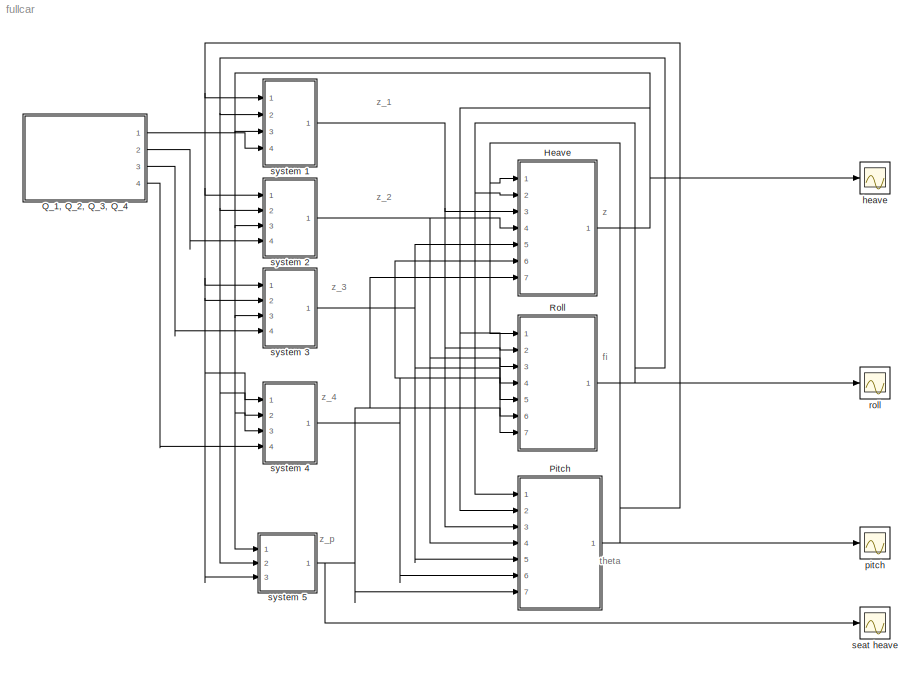
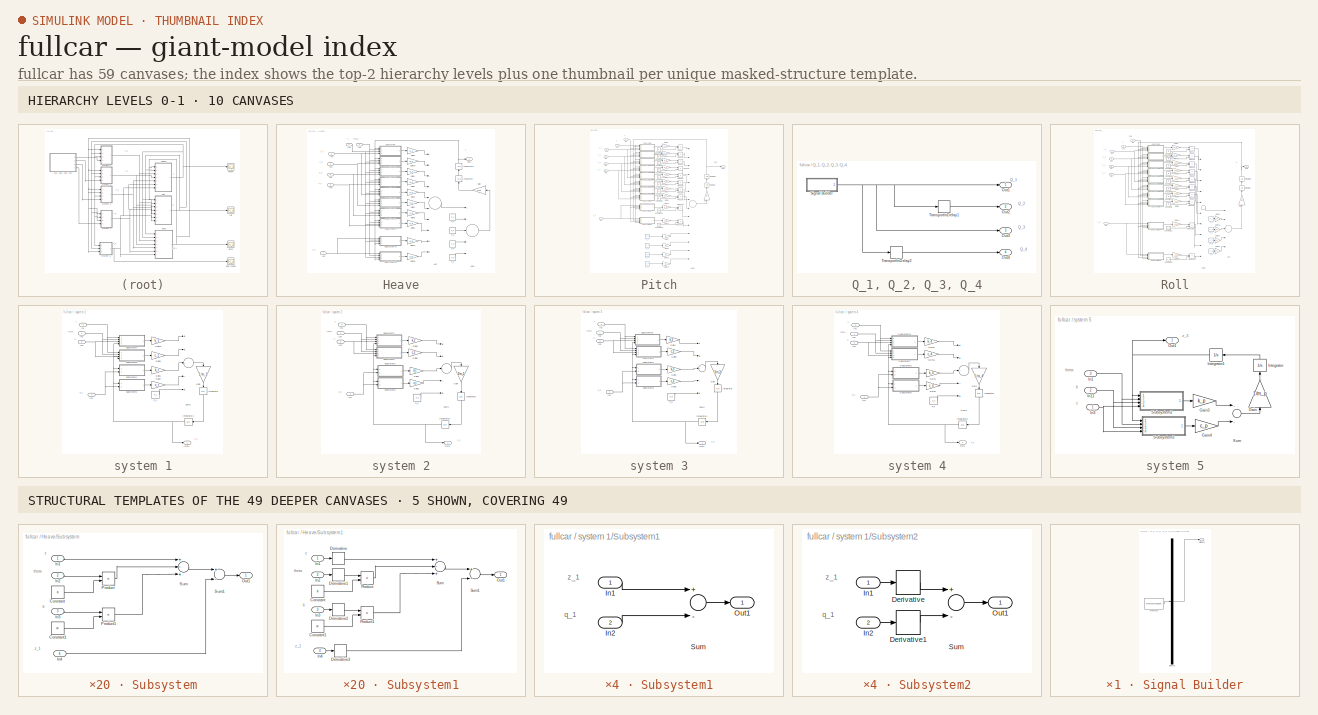
[diagram: thumbnail index - top-2 hierarchy levels (10 canvases) + 5 structural-template representatives of the remaining 49 canvases]
MODEL fullcar
KIND model
BLOCK [SubSystem] Heave
  Ports = [7, 1]
  RequestExecContextInheritance = off
  SID = 3351
BLOCK [Sum] Heave/Add
  InputSameDT = off
  Inputs = --------++
  OutDataTypeStr = Inherit: Inherit via internal rule
  Ports = [10, 1]
  SID = 5833
  SaturateOnIntegerOverflow = off
BLOCK [Sum] Heave/Add1
  InputSameDT = off
  Inputs = +----
  OutDataTypeStr = Inherit: Inherit via internal rule
  Ports = [5, 1]
  SID = 5838
  SaturateOnIntegerOverflow = off
BLOCK [Constant] Heave/F_1
  SID = 5834
  Value = F_1
BLOCK [Constant] Heave/F_2
  SID = 5835
  Value = F_2
BLOCK [Constant] Heave/F_3
  SID = 5836
  Value = F_3
BLOCK [Constant] Heave/F_4
  SID = 5837
  Value = F_4
BLOCK [Gain] Heave/Gain
  Gain = 1/M
  OutDataTypeStr = Inherit: Inherit via internal rule
  ParamDataTypeStr = Inherit: Inherit via internal rule
  SID = 3362
  SaturateOnIntegerOverflow = off
BLOCK [Gain] Heave/Gain1
  Gain = k_3
  OutDataTypeStr = Inherit: Inherit via internal rule
  ParamDataTypeStr = Inherit: Inherit via internal rule
  SID = 3363
  SaturateOnIntegerOverflow = off
BLOCK [Gain] Heave/Gain10
  Gain = k_2
  OutDataTypeStr = Inherit: Inherit via internal rule
  ParamDataTypeStr = Inherit: Inherit via internal rule
  SID = 3364
  SaturateOnIntegerOverflow = off
BLOCK [Gain] Heave/Gain11
  Gain = k_p
  OutDataTypeStr = Inherit: Inherit via internal rule
  ParamDataTypeStr = Inherit: Inherit via internal rule
  SID = 3365
  SaturateOnIntegerOverflow = off
BLOCK [Gain] Heave/Gain15
  Gain = c_p
  OutDataTypeStr = Inherit: Inherit via internal rule
  ParamDataTypeStr = Inherit: Inherit via internal rule
  SID = 3369
  SaturateOnIntegerOverflow = off
BLOCK [Gain] Heave/Gain2
  Gain = k_4
  OutDataTypeStr = Inherit: Inherit via internal rule
  ParamDataTypeStr = Inherit: Inherit via internal rule
  SID = 3371
  SaturateOnIntegerOverflow = off
BLOCK [Gain] Heave/Gain3
  Gain = c_1
  OutDataTypeStr = Inherit: Inherit via internal rule
  ParamDataTypeStr = Inherit: Inherit via internal rule
  SID = 3372
  SaturateOnIntegerOverflow = off
BLOCK [Gain] Heave/Gain4
  Gain = c_2
  OutDataTypeStr = Inherit: Inherit via internal rule
  ParamDataTypeStr = Inherit: Inherit via internal rule
  SID = 3373
  SaturateOnIntegerOverflow = off
BLOCK [Gain] Heave/Gain5
  Gain = c_3
  OutDataTypeStr = Inherit: Inherit via internal rule
  ParamDataTypeStr = Inherit: Inherit via internal rule
  SID = 3374
  SaturateOnIntegerOverflow = off
BLOCK [Gain] Heave/Gain6
  Gain = c_4
  OutDataTypeStr = Inherit: Inherit via internal rule
  ParamDataTypeStr = Inherit: Inherit via internal rule
  SID = 3375
  SaturateOnIntegerOverflow = off
BLOCK [Gain] Heave/Gain9
  Gain = k_1
  OutDataTypeStr = Inherit: Inherit via internal rule
  ParamDataTypeStr = Inherit: Inherit via internal rule
  SID = 3378
  SaturateOnIntegerOverflow = off
BLOCK [Inport] Heave/In1
  IconDisplay = Port number
  Port = 5
  SID = 3356
BLOCK [Inport] Heave/In2
  IconDisplay = Port number
  SID = 3352
BLOCK [Inport] Heave/In3
  IconDisplay = Port number
  Port = 2
  SID = 3353
BLOCK [Inport] Heave/In4
  IconDisplay = Port number
  Port = 3
  SID = 3354
BLOCK [Inport] Heave/In5
  IconDisplay = Port number
  Port = 6
  SID = 3357
BLOCK [Inport] Heave/In8
  IconDisplay = Port number
  Port = 4
  SID = 3355
BLOCK [Inport] Heave/In9
  IconDisplay = Port number
  Port = 7
  SID = 3360
BLOCK [Integrator] Heave/Integrator
  Ports = [1, 1]
  SID = 3379
BLOCK [Integrator] Heave/Integrator1
  Ports = [1, 1]
  SID = 3380
BLOCK [Outport] Heave/Out1
  IconDisplay = Port number
  SID = 3608
BLOCK [SubSystem] Heave/Subsystem
  Ports = [4, 1]
  RequestExecContextInheritance = off
  SID = 3397
BLOCK [Constant] Heave/Subsystem/Constant
  SID = 3402
  Value = a
BLOCK [Constant] Heave/Subsystem/Constant1
  SID = 3403
  Value = w
BLOCK [Inport] Heave/Subsystem/In1
  IconDisplay = Port number
  SID = 3398
BLOCK [Inport] Heave/Subsystem/In2
  IconDisplay = Port number
  Port = 2
  SID = 3399
BLOCK [Inport] Heave/Subsystem/In3
  IconDisplay = Port number
  Port = 3
  SID = 3400
BLOCK [Inport] Heave/Subsystem/In4
  IconDisplay = Port number
  Port = 4
  SID = 3401
BLOCK [Outport] Heave/Subsystem/Out1
  IconDisplay = Port number
  SID = 3408
BLOCK [Product] Heave/Subsystem/Product
  InputSameDT = off
  OutDataTypeStr = Inherit: Inherit via internal rule
  Ports = [2, 1]
  SID = 3404
  SaturateOnIntegerOverflow = off
BLOCK [Product] Heave/Subsystem/Product1
  InputSameDT = off
  OutDataTypeStr = Inherit: Inherit via internal rule
  Ports = [2, 1]
  SID = 3405
  SaturateOnIntegerOverflow = off
BLOCK [Sum] Heave/Subsystem/Sum
  InputSameDT = off
  Inputs = +-+
  OutDataTypeStr = Inherit: Inherit via internal rule
  Ports = [3, 1]
  SID = 3406
  SaturateOnIntegerOverflow = off
BLOCK [Sum] Heave/Subsystem/Sum1
  InputSameDT = off
  Inputs = +-
  OutDataTypeStr = Inherit: Inherit via internal rule
  Ports = [2, 1]
  SID = 3407
  SaturateOnIntegerOverflow = off
BLOCK [SubSystem] Heave/Subsystem1
  Ports = [4, 1]
  RequestExecContextInheritance = off
  SID = 4198
BLOCK [Constant] Heave/Subsystem1/Constant
  SID = 4203
  Value = a
BLOCK [Constant] Heave/Subsystem1/Constant1
  SID = 4204
  Value = w
BLOCK [Derivative] Heave/Subsystem1/Derivative
  SID = 4246
BLOCK [Derivative] Heave/Subsystem1/Derivative1
  SID = 4247
BLOCK [Derivative] Heave/Subsystem1/Derivative2
  SID = 4248
BLOCK [Derivative] Heave/Subsystem1/Derivative3
  SID = 4249
BLOCK [Inport] Heave/Subsystem1/In1
  IconDisplay = Port number
  SID = 4199
BLOCK [Inport] Heave/Subsystem1/In2
  IconDisplay = Port number
  Port = 2
  SID = 4200
BLOCK [Inport] Heave/Subsystem1/In3
  IconDisplay = Port number
  Port = 3
  SID = 4201
BLOCK [Inport] Heave/Subsystem1/In4
  IconDisplay = Port number
  Port = 4
  SID = 4202
BLOCK [Outport] Heave/Subsystem1/Out1
  IconDisplay = Port number
  SID = 4209
BLOCK [Product] Heave/Subsystem1/Product
  InputSameDT = off
  OutDataTypeStr = Inherit: Inherit via internal rule
  Ports = [2, 1]
  SID = 4205
  SaturateOnIntegerOverflow = off
BLOCK [Product] Heave/Subsystem1/Product1
  InputSameDT = off
  OutDataTypeStr = Inherit: Inherit via internal rule
  Ports = [2, 1]
  SID = 4206
  SaturateOnIntegerOverflow = off
BLOCK [Sum] Heave/Subsystem1/Sum
  InputSameDT = off
  Inputs = +-+
  OutDataTypeStr = Inherit: Inherit via internal rule
  Ports = [3, 1]
  SID = 4207
  SaturateOnIntegerOverflow = off
BLOCK [Sum] Heave/Subsystem1/Sum1
  InputSameDT = off
  Inputs = +-
  OutDataTypeStr = Inherit: Inherit via internal rule
  Ports = [2, 1]
  SID = 4208
  SaturateOnIntegerOverflow = off
BLOCK [SubSystem] Heave/Subsystem10
  Ports = [4, 1]
  RequestExecContextInheritance = off
  SID = 4274
BLOCK [Constant] Heave/Subsystem10/Constant
  SID = 4279
  Value = x_p
BLOCK [Constant] Heave/Subsystem10/Constant1
  SID = 4280
  Value = y_p
BLOCK [Derivative] Heave/Subsystem10/Derivative
  SID = 4318
BLOCK [Derivative] Heave/Subsystem10/Derivative1
  SID = 4319
BLOCK [Derivative] Heave/Subsystem10/Derivative2
  SID = 4320
BLOCK [Derivative] Heave/Subsystem10/Derivative3
  SID = 4321
BLOCK [Inport] Heave/Subsystem10/In1
  IconDisplay = Port number
  SID = 4275
BLOCK [Inport] Heave/Subsystem10/In2
  IconDisplay = Port number
  Port = 2
  SID = 4276
BLOCK [Inport] Heave/Subsystem10/In3
  IconDisplay = Port number
  Port = 3
  SID = 4277
BLOCK [Inport] Heave/Subsystem10/In4
  IconDisplay = Port number
  Port = 4
  SID = 4278
BLOCK [Outport] Heave/Subsystem10/Out1
  IconDisplay = Port number
  SID = 4285
BLOCK [Product] Heave/Subsystem10/Product
  InputSameDT = off
  OutDataTypeStr = Inherit: Inherit via internal rule
  Ports = [2, 1]
  SID = 4281
  SaturateOnIntegerOverflow = off
BLOCK [Product] Heave/Subsystem10/Product1
  InputSameDT = off
  OutDataTypeStr = Inherit: Inherit via internal rule
  Ports = [2, 1]
  SID = 4282
  SaturateOnIntegerOverflow = off
BLOCK [Sum] Heave/Subsystem10/Sum1
  InputSameDT = off
  Inputs = -+
  OutDataTypeStr = Inherit: Inherit via internal rule
  Ports = [2, 1]
  SID = 4283
  SaturateOnIntegerOverflow = off
BLOCK [Sum] Heave/Subsystem10/Sum2
  InputSameDT = off
  Inputs = +++
  OutDataTypeStr = Inherit: Inherit via internal rule
  Ports = [3, 1]
  SID = 4284
  SaturateOnIntegerOverflow = off
BLOCK [SubSystem] Heave/Subsystem14
  Ports = [4, 1]
  RequestExecContextInheritance = off
  SID = 3469
BLOCK [Constant] Heave/Subsystem14/Constant
  SID = 3474
  Value = x_p
BLOCK [Constant] Heave/Subsystem14/Constant1
  SID = 3475
  Value = y_p
BLOCK [Inport] Heave/Subsystem14/In1
  IconDisplay = Port number
  SID = 3470
BLOCK [Inport] Heave/Subsystem14/In2
  IconDisplay = Port number
  Port = 2
  SID = 3471
BLOCK [Inport] Heave/Subsystem14/In3
  IconDisplay = Port number
  Port = 3
  SID = 3472
BLOCK [Inport] Heave/Subsystem14/In4
  IconDisplay = Port number
  Port = 4
  SID = 3473
BLOCK [Outport] Heave/Subsystem14/Out1
  IconDisplay = Port number
  SID = 3480
BLOCK [Product] Heave/Subsystem14/Product
  InputSameDT = off
  OutDataTypeStr = Inherit: Inherit via internal rule
  Ports = [2, 1]
  SID = 3476
  SaturateOnIntegerOverflow = off
BLOCK [Product] Heave/Subsystem14/Product1
  InputSameDT = off
  OutDataTypeStr = Inherit: Inherit via internal rule
  Ports = [2, 1]
  SID = 3477
  SaturateOnIntegerOverflow = off
BLOCK [Sum] Heave/Subsystem14/Sum1
  InputSameDT = off
  Inputs = -+
  OutDataTypeStr = Inherit: Inherit via internal rule
  Ports = [2, 1]
  SID = 3478
  SaturateOnIntegerOverflow = off
BLOCK [Sum] Heave/Subsystem14/Sum2
  InputSameDT = off
  Inputs = +++
  OutDataTypeStr = Inherit: Inherit via internal rule
  Ports = [3, 1]
  SID = 3479
  SaturateOnIntegerOverflow = off
BLOCK [SubSystem] Heave/Subsystem2
  Ports = [4, 1]
  RequestExecContextInheritance = off
  SID = 4210
BLOCK [Constant] Heave/Subsystem2/Constant
  SID = 4215
  Value = b
BLOCK [Constant] Heave/Subsystem2/Constant1
  SID = 4216
  Value = w
BLOCK [Derivative] Heave/Subsystem2/Derivative
  SID = 4250
BLOCK [Derivative] Heave/Subsystem2/Derivative1
  SID = 4251
BLOCK [Derivative] Heave/Subsystem2/Derivative2
  SID = 4252
BLOCK [Derivative] Heave/Subsystem2/Derivative3
  SID = 4253
BLOCK [Inport] Heave/Subsystem2/In1
  IconDisplay = Port number
  SID = 4211
BLOCK [Inport] Heave/Subsystem2/In2
  IconDisplay = Port number
  Port = 2
  SID = 4212
BLOCK [Inport] Heave/Subsystem2/In3
  IconDisplay = Port number
  Port = 3
  SID = 4213
BLOCK [Inport] Heave/Subsystem2/In4
  IconDisplay = Port number
  Port = 4
  SID = 4214
BLOCK [Outport] Heave/Subsystem2/Out1
  IconDisplay = Port number
  SID = 4221
BLOCK [Product] Heave/Subsystem2/Product
  InputSameDT = off
  OutDataTypeStr = Inherit: Inherit via internal rule
  Ports = [2, 1]
  SID = 4217
  SaturateOnIntegerOverflow = off
BLOCK [Product] Heave/Subsystem2/Product1
  InputSameDT = off
  OutDataTypeStr = Inherit: Inherit via internal rule
  Ports = [2, 1]
  SID = 4218
  SaturateOnIntegerOverflow = off
BLOCK [Sum] Heave/Subsystem2/Sum
  InputSameDT = off
  Inputs = +++
  OutDataTypeStr = Inherit: Inherit via internal rule
  Ports = [3, 1]
  SID = 4219
  SaturateOnIntegerOverflow = off
BLOCK [Sum] Heave/Subsystem2/Sum1
  InputSameDT = off
  Inputs = +-
  OutDataTypeStr = Inherit: Inherit via internal rule
  Ports = [2, 1]
  SID = 4220
  SaturateOnIntegerOverflow = off
BLOCK [SubSystem] Heave/Subsystem3
  Ports = [4, 1]
  RequestExecContextInheritance = off
  SID = 4222
BLOCK [Constant] Heave/Subsystem3/Constant
  SID = 4227
  Value = a
BLOCK [Constant] Heave/Subsystem3/Constant1
  SID = 4228
  Value = w
BLOCK [Derivative] Heave/Subsystem3/Derivative
  SID = 4254
BLOCK [Derivative] Heave/Subsystem3/Derivative1
  SID = 4255
BLOCK [Derivative] Heave/Subsystem3/Derivative2
  SID = 4256
BLOCK [Derivative] Heave/Subsystem3/Derivative3
  SID = 4257
BLOCK [Inport] Heave/Subsystem3/In1
  IconDisplay = Port number
  SID = 4223
BLOCK [Inport] Heave/Subsystem3/In2
  IconDisplay = Port number
  Port = 2
  SID = 4224
BLOCK [Inport] Heave/Subsystem3/In3
  IconDisplay = Port number
  Port = 3
  SID = 4225
BLOCK [Inport] Heave/Subsystem3/In4
  IconDisplay = Port number
  Port = 4
  SID = 4226
BLOCK [Outport] Heave/Subsystem3/Out1
  IconDisplay = Port number
  SID = 4233
BLOCK [Product] Heave/Subsystem3/Product
  InputSameDT = off
  OutDataTypeStr = Inherit: Inherit via internal rule
  Ports = [2, 1]
  SID = 4229
  SaturateOnIntegerOverflow = off
BLOCK [Product] Heave/Subsystem3/Product1
  InputSameDT = off
  OutDataTypeStr = Inherit: Inherit via internal rule
  Ports = [2, 1]
  SID = 4230
  SaturateOnIntegerOverflow = off
BLOCK [Sum] Heave/Subsystem3/Sum
  InputSameDT = off
  Inputs = +--
  OutDataTypeStr = Inherit: Inherit via internal rule
  Ports = [3, 1]
  SID = 4231
  SaturateOnIntegerOverflow = off
BLOCK [Sum] Heave/Subsystem3/Sum1
  InputSameDT = off
  Inputs = +-
  OutDataTypeStr = Inherit: Inherit via internal rule
  Ports = [2, 1]
  SID = 4232
  SaturateOnIntegerOverflow = off
BLOCK [SubSystem] Heave/Subsystem4
  Ports = [4, 1]
  RequestExecContextInheritance = off
  SID = 3541
BLOCK [Constant] Heave/Subsystem4/Constant
  SID = 3546
  Value = b
BLOCK [Constant] Heave/Subsystem4/Constant1
  SID = 3547
  Value = w
BLOCK [Inport] Heave/Subsystem4/In1
  IconDisplay = Port number
  SID = 3542
BLOCK [Inport] Heave/Subsystem4/In2
  IconDisplay = Port number
  Port = 2
  SID = 3543
BLOCK [Inport] Heave/Subsystem4/In3
  IconDisplay = Port number
  Port = 3
  SID = 3544
BLOCK [Inport] Heave/Subsystem4/In4
  IconDisplay = Port number
  Port = 4
  SID = 3545
BLOCK [Outport] Heave/Subsystem4/Out1
  IconDisplay = Port number
  SID = 3552
BLOCK [Product] Heave/Subsystem4/Product
  InputSameDT = off
  OutDataTypeStr = Inherit: Inherit via internal rule
  Ports = [2, 1]
  SID = 3548
  SaturateOnIntegerOverflow = off
BLOCK [Product] Heave/Subsystem4/Product1
  InputSameDT = off
  OutDataTypeStr = Inherit: Inherit via internal rule
  Ports = [2, 1]
  SID = 3549
  SaturateOnIntegerOverflow = off
BLOCK [Sum] Heave/Subsystem4/Sum
  InputSameDT = off
  Inputs = +++
  OutDataTypeStr = Inherit: Inherit via internal rule
  Ports = [3, 1]
  SID = 3550
  SaturateOnIntegerOverflow = off
BLOCK [Sum] Heave/Subsystem4/Sum1
  InputSameDT = off
  Inputs = +-
  OutDataTypeStr = Inherit: Inherit via internal rule
  Ports = [2, 1]
  SID = 3551
  SaturateOnIntegerOverflow = off
BLOCK [SubSystem] Heave/Subsystem5
  Ports = [4, 1]
  RequestExecContextInheritance = off
  SID = 4234
BLOCK [Constant] Heave/Subsystem5/Constant
  SID = 4239
  Value = b
BLOCK [Constant] Heave/Subsystem5/Constant1
  SID = 4240
  Value = w
BLOCK [Derivative] Heave/Subsystem5/Derivative
  SID = 4258
BLOCK [Derivative] Heave/Subsystem5/Derivative1
  SID = 4259
BLOCK [Derivative] Heave/Subsystem5/Derivative2
  SID = 4260
BLOCK [Derivative] Heave/Subsystem5/Derivative3
  SID = 4261
BLOCK [Inport] Heave/Subsystem5/In1
  IconDisplay = Port number
  SID = 4235
BLOCK [Inport] Heave/Subsystem5/In2
  IconDisplay = Port number
  Port = 2
  SID = 4236
BLOCK [Inport] Heave/Subsystem5/In3
  IconDisplay = Port number
  Port = 3
  SID = 4237
BLOCK [Inport] Heave/Subsystem5/In4
  IconDisplay = Port number
  Port = 4
  SID = 4238
BLOCK [Outport] Heave/Subsystem5/Out1
  IconDisplay = Port number
  SID = 4245
BLOCK [Product] Heave/Subsystem5/Product
  InputSameDT = off
  OutDataTypeStr = Inherit: Inherit via internal rule
  Ports = [2, 1]
  SID = 4241
  SaturateOnIntegerOverflow = off
BLOCK [Product] Heave/Subsystem5/Product1
  InputSameDT = off
  OutDataTypeStr = Inherit: Inherit via internal rule
  Ports = [2, 1]
  SID = 4242
  SaturateOnIntegerOverflow = off
BLOCK [Sum] Heave/Subsystem5/Sum
  InputSameDT = off
  Inputs = ++-
  OutDataTypeStr = Inherit: Inherit via internal rule
  Ports = [3, 1]
  SID = 4243
  SaturateOnIntegerOverflow = off
BLOCK [Sum] Heave/Subsystem5/Sum1
  InputSameDT = off
  Inputs = +-
  OutDataTypeStr = Inherit: Inherit via internal rule
  Ports = [2, 1]
  SID = 4244
  SaturateOnIntegerOverflow = off
BLOCK [SubSystem] Heave/Subsystem6
  Ports = [4, 1]
  RequestExecContextInheritance = off
  SID = 3553
BLOCK [Constant] Heave/Subsystem6/Constant
  SID = 3558
  Value = a
BLOCK [Constant] Heave/Subsystem6/Constant1
  SID = 3559
  Value = w
BLOCK [Inport] Heave/Subsystem6/In1
  IconDisplay = Port number
  SID = 3554
BLOCK [Inport] Heave/Subsystem6/In2
  IconDisplay = Port number
  Port = 2
  SID = 3555
BLOCK [Inport] Heave/Subsystem6/In3
  IconDisplay = Port number
  Port = 3
  SID = 3556
BLOCK [Inport] Heave/Subsystem6/In4
  IconDisplay = Port number
  Port = 4
  SID = 3557
BLOCK [Outport] Heave/Subsystem6/Out1
  IconDisplay = Port number
  SID = 3564
BLOCK [Product] Heave/Subsystem6/Product
  InputSameDT = off
  OutDataTypeStr = Inherit: Inherit via internal rule
  Ports = [2, 1]
  SID = 3560
  SaturateOnIntegerOverflow = off
BLOCK [Product] Heave/Subsystem6/Product1
  InputSameDT = off
  OutDataTypeStr = Inherit: Inherit via internal rule
  Ports = [2, 1]
  SID = 3561
  SaturateOnIntegerOverflow = off
BLOCK [Sum] Heave/Subsystem6/Sum
  InputSameDT = off
  Inputs = +--
  OutDataTypeStr = Inherit: Inherit via internal rule
  Ports = [3, 1]
  SID = 3562
  SaturateOnIntegerOverflow = off
BLOCK [Sum] Heave/Subsystem6/Sum1
  InputSameDT = off
  Inputs = +-
  OutDataTypeStr = Inherit: Inherit via internal rule
  Ports = [2, 1]
  SID = 3563
  SaturateOnIntegerOverflow = off
BLOCK [SubSystem] Heave/Subsystem9
  Ports = [4, 1]
  RequestExecContextInheritance = off
  SID = 3593
BLOCK [Constant] Heave/Subsystem9/Constant
  SID = 3598
  Value = b
BLOCK [Constant] Heave/Subsystem9/Constant1
  SID = 3599
  Value = w
BLOCK [Inport] Heave/Subsystem9/In1
  IconDisplay = Port number
  SID = 3594
BLOCK [Inport] Heave/Subsystem9/In2
  IconDisplay = Port number
  Port = 2
  SID = 3595
BLOCK [Inport] Heave/Subsystem9/In3
  IconDisplay = Port number
  Port = 3
  SID = 3596
BLOCK [Inport] Heave/Subsystem9/In4
  IconDisplay = Port number
  Port = 4
  SID = 3597
BLOCK [Outport] Heave/Subsystem9/Out1
  IconDisplay = Port number
  SID = 3604
BLOCK [Product] Heave/Subsystem9/Product
  InputSameDT = off
  OutDataTypeStr = Inherit: Inherit via internal rule
  Ports = [2, 1]
  SID = 3600
  SaturateOnIntegerOverflow = off
BLOCK [Product] Heave/Subsystem9/Product1
  InputSameDT = off
  OutDataTypeStr = Inherit: Inherit via internal rule
  Ports = [2, 1]
  SID = 3601
  SaturateOnIntegerOverflow = off
BLOCK [Sum] Heave/Subsystem9/Sum
  InputSameDT = off
  Inputs = ++-
  OutDataTypeStr = Inherit: Inherit via internal rule
  Ports = [3, 1]
  SID = 3602
  SaturateOnIntegerOverflow = off
BLOCK [Sum] Heave/Subsystem9/Sum1
  InputSameDT = off
  Inputs = +-
  OutDataTypeStr = Inherit: Inherit via internal rule
  Ports = [2, 1]
  SID = 3603
  SaturateOnIntegerOverflow = off
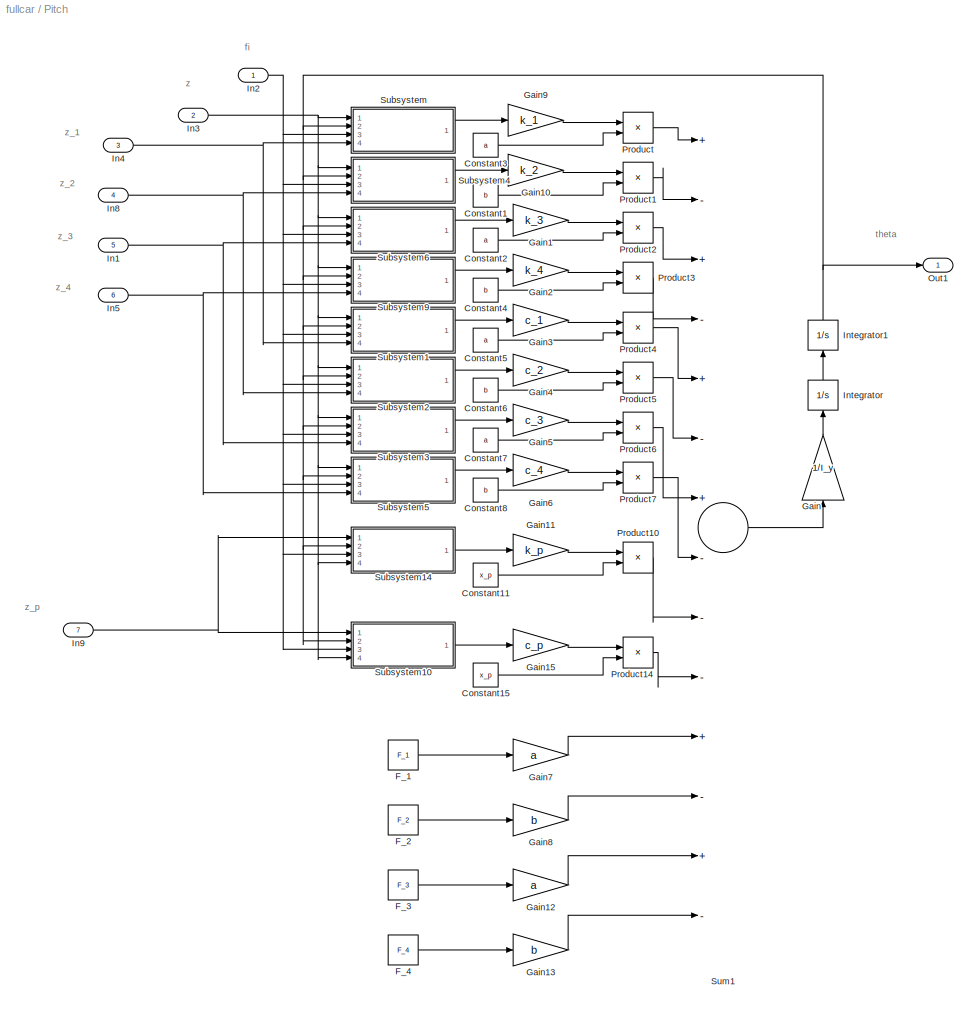
BLOCK [SubSystem] Pitch
  Ports = [7, 1]
  RequestExecContextInheritance = off
  SID = 4616
BLOCK [Constant] Pitch/Constant1
  SID = 4627
  Value = b
BLOCK [Constant] Pitch/Constant11
  SID = 4629
  Value = x_p
BLOCK [Constant] Pitch/Constant15
  SID = 4633
  Value = x_p
BLOCK [Constant] Pitch/Constant2
  SID = 4635
  Value = a
BLOCK [Constant] Pitch/Constant3
  SID = 4636
  Value = a
BLOCK [Constant] Pitch/Constant4
  SID = 4637
  Value = b
BLOCK [Constant] Pitch/Constant5
  SID = 4638
  Value = a
BLOCK [Constant] Pitch/Constant6
  SID = 4639
  Value = b
BLOCK [Constant] Pitch/Constant7
  SID = 4640
  Value = a
BLOCK [Constant] Pitch/Constant8
  SID = 4641
  Value = b
BLOCK [Constant] Pitch/F_1
  SID = 5845
  Value = F_1
BLOCK [Constant] Pitch/F_2
  SID = 5846
  Value = F_2
BLOCK [Constant] Pitch/F_3
  SID = 5847
  Value = F_3
BLOCK [Constant] Pitch/F_4
  SID = 5848
  Value = F_4
BLOCK [Gain] Pitch/Gain
  Gain = 1/I_y
  OutDataTypeStr = Inherit: Inherit via internal rule
  ParamDataTypeStr = Inherit: Inherit via internal rule
  SID = 4643
  SaturateOnIntegerOverflow = off
BLOCK [Gain] Pitch/Gain1
  Gain = k_3
  OutDataTypeStr = Inherit: Inherit via internal rule
  ParamDataTypeStr = Inherit: Inherit via internal rule
  SID = 4644
  SaturateOnIntegerOverflow = off
BLOCK [Gain] Pitch/Gain10
  Gain = k_2
  OutDataTypeStr = Inherit: Inherit via internal rule
  ParamDataTypeStr = Inherit: Inherit via internal rule
  SID = 4645
  SaturateOnIntegerOverflow = off
BLOCK [Gain] Pitch/Gain11
  Gain = k_p
  OutDataTypeStr = Inherit: Inherit via internal rule
  ParamDataTypeStr = Inherit: Inherit via internal rule
  SID = 4646
  SaturateOnIntegerOverflow = off
BLOCK [Gain] Pitch/Gain12
  Gain = a
  OutDataTypeStr = Inherit: Inherit via internal rule
  ParamDataTypeStr = Inherit: Inherit via internal rule
  SID = 5851
  SaturateOnIntegerOverflow = off
BLOCK [Gain] Pitch/Gain13
  Gain = b
  OutDataTypeStr = Inherit: Inherit via internal rule
  ParamDataTypeStr = Inherit: Inherit via internal rule
  SID = 5852
  SaturateOnIntegerOverflow = off
BLOCK [Gain] Pitch/Gain15
  Gain = c_p
  OutDataTypeStr = Inherit: Inherit via internal rule
  ParamDataTypeStr = Inherit: Inherit via internal rule
  SID = 4650
  SaturateOnIntegerOverflow = off
BLOCK [Gain] Pitch/Gain2
  Gain = k_4
  OutDataTypeStr = Inherit: Inherit via internal rule
  ParamDataTypeStr = Inherit: Inherit via internal rule
  SID = 4652
  SaturateOnIntegerOverflow = off
BLOCK [Gain] Pitch/Gain3
  Gain = c_1
  OutDataTypeStr = Inherit: Inherit via internal rule
  ParamDataTypeStr = Inherit: Inherit via internal rule
  SID = 4653
  SaturateOnIntegerOverflow = off
BLOCK [Gain] Pitch/Gain4
  Gain = c_2
  OutDataTypeStr = Inherit: Inherit via internal rule
  ParamDataTypeStr = Inherit: Inherit via internal rule
  SID = 4654
  SaturateOnIntegerOverflow = off
BLOCK [Gain] Pitch/Gain5
  Gain = c_3
  OutDataTypeStr = Inherit: Inherit via internal rule
  ParamDataTypeStr = Inherit: Inherit via internal rule
  SID = 4655
  SaturateOnIntegerOverflow = off
BLOCK [Gain] Pitch/Gain6
  Gain = c_4
  OutDataTypeStr = Inherit: Inherit via internal rule
  ParamDataTypeStr = Inherit: Inherit via internal rule
  SID = 4656
  SaturateOnIntegerOverflow = off
BLOCK [Gain] Pitch/Gain7
  Gain = a
  OutDataTypeStr = Inherit: Inherit via internal rule
  ParamDataTypeStr = Inherit: Inherit via internal rule
  SID = 5849
  SaturateOnIntegerOverflow = off
BLOCK [Gain] Pitch/Gain8
  Gain = b
  OutDataTypeStr = Inherit: Inherit via internal rule
  ParamDataTypeStr = Inherit: Inherit via internal rule
  SID = 5850
  SaturateOnIntegerOverflow = off
BLOCK [Gain] Pitch/Gain9
  Gain = k_1
  OutDataTypeStr = Inherit: Inherit via internal rule
  ParamDataTypeStr = Inherit: Inherit via internal rule
  SID = 4659
  SaturateOnIntegerOverflow = off
BLOCK [Inport] Pitch/In1
  IconDisplay = Port number
  Port = 5
  SID = 4621
BLOCK [Inport] Pitch/In2
  IconDisplay = Port number
  SID = 4617
BLOCK [Inport] Pitch/In3
  IconDisplay = Port number
  Port = 2
  SID = 4618
BLOCK [Inport] Pitch/In4
  IconDisplay = Port number
  Port = 3
  SID = 4619
BLOCK [Inport] Pitch/In5
  IconDisplay = Port number
  Port = 6
  SID = 4622
BLOCK [Inport] Pitch/In8
  IconDisplay = Port number
  Port = 4
  SID = 4620
BLOCK [Inport] Pitch/In9
  IconDisplay = Port number
  Port = 7
  SID = 4625
BLOCK [Integrator] Pitch/Integrator
  Ports = [1, 1]
  SID = 4660
BLOCK [Integrator] Pitch/Integrator1
  Ports = [1, 1]
  SID = 4661
BLOCK [Outport] Pitch/Out1
  IconDisplay = Port number
  SID = 4903
BLOCK [Product] Pitch/Product
  InputSameDT = off
  OutDataTypeStr = Inherit: Inherit via internal rule
  Ports = [2, 1]
  SID = 4662
  SaturateOnIntegerOverflow = off
BLOCK [Product] Pitch/Product1
  InputSameDT = off
  OutDataTypeStr = Inherit: Inherit via internal rule
  Ports = [2, 1]
  SID = 4663
  SaturateOnIntegerOverflow = off
BLOCK [Product] Pitch/Product10
  InputSameDT = off
  OutDataTypeStr = Inherit: Inherit via internal rule
  Ports = [2, 1]
  SID = 4664
  SaturateOnIntegerOverflow = off
BLOCK [Product] Pitch/Product14
  InputSameDT = off
  OutDataTypeStr = Inherit: Inherit via internal rule
  Ports = [2, 1]
  SID = 4668
  SaturateOnIntegerOverflow = off
BLOCK [Product] Pitch/Product2
  InputSameDT = off
  OutDataTypeStr = Inherit: Inherit via internal rule
  Ports = [2, 1]
  SID = 4670
  SaturateOnIntegerOverflow = off
BLOCK [Product] Pitch/Product3
  InputSameDT = off
  OutDataTypeStr = Inherit: Inherit via internal rule
  Ports = [2, 1]
  SID = 4671
  SaturateOnIntegerOverflow = off
BLOCK [Product] Pitch/Product4
  InputSameDT = off
  OutDataTypeStr = Inherit: Inherit via internal rule
  Ports = [2, 1]
  SID = 4672
  SaturateOnIntegerOverflow = off
BLOCK [Product] Pitch/Product5
  InputSameDT = off
  OutDataTypeStr = Inherit: Inherit via internal rule
  Ports = [2, 1]
  SID = 4673
  SaturateOnIntegerOverflow = off
BLOCK [Product] Pitch/Product6
  InputSameDT = off
  OutDataTypeStr = Inherit: Inherit via internal rule
  Ports = [2, 1]
  SID = 4674
  SaturateOnIntegerOverflow = off
BLOCK [Product] Pitch/Product7
  InputSameDT = off
  OutDataTypeStr = Inherit: Inherit via internal rule
  Ports = [2, 1]
  SID = 4675
  SaturateOnIntegerOverflow = off
BLOCK [SubSystem] Pitch/Subsystem
  Ports = [4, 1]
  RequestExecContextInheritance = off
  SID = 4678
BLOCK [Constant] Pitch/Subsystem/Constant
  SID = 4683
  Value = a
BLOCK [Constant] Pitch/Subsystem/Constant1
  SID = 4684
  Value = w
BLOCK [Inport] Pitch/Subsystem/In1
  IconDisplay = Port number
  SID = 4679
BLOCK [Inport] Pitch/Subsystem/In2
  IconDisplay = Port number
  Port = 2
  SID = 4680
BLOCK [Inport] Pitch/Subsystem/In3
  IconDisplay = Port number
  Port = 3
  SID = 4681
BLOCK [Inport] Pitch/Subsystem/In4
  IconDisplay = Port number
  Port = 4
  SID = 4682
BLOCK [Outport] Pitch/Subsystem/Out1
  IconDisplay = Port number
  SID = 4689
BLOCK [Product] Pitch/Subsystem/Product
  InputSameDT = off
  OutDataTypeStr = Inherit: Inherit via internal rule
  Ports = [2, 1]
  SID = 4685
  SaturateOnIntegerOverflow = off
BLOCK [Product] Pitch/Subsystem/Product1
  InputSameDT = off
  OutDataTypeStr = Inherit: Inherit via internal rule
  Ports = [2, 1]
  SID = 4686
  SaturateOnIntegerOverflow = off
BLOCK [Sum] Pitch/Subsystem/Sum
  InputSameDT = off
  Inputs = ++-
  OutDataTypeStr = Inherit: Inherit via internal rule
  Ports = [3, 1]
  SID = 4687
  SaturateOnIntegerOverflow = off
BLOCK [Sum] Pitch/Subsystem/Sum1
  InputSameDT = off
  Inputs = +-
  OutDataTypeStr = Inherit: Inherit via internal rule
  Ports = [2, 1]
  SID = 4688
  SaturateOnIntegerOverflow = off
BLOCK [SubSystem] Pitch/Subsystem1
  Ports = [4, 1]
  RequestExecContextInheritance = off
  SID = 4690
BLOCK [Constant] Pitch/Subsystem1/Constant
  SID = 4695
  Value = a
BLOCK [Constant] Pitch/Subsystem1/Constant1
  SID = 4696
  Value = w
BLOCK [Derivative] Pitch/Subsystem1/Derivative
  SID = 4697
BLOCK [Derivative] Pitch/Subsystem1/Derivative1
  SID = 4698
BLOCK [Derivative] Pitch/Subsystem1/Derivative2
  SID = 4699
BLOCK [Derivative] Pitch/Subsystem1/Derivative3
  SID = 4700
BLOCK [Inport] Pitch/Subsystem1/In1
  IconDisplay = Port number
  SID = 4691
BLOCK [Inport] Pitch/Subsystem1/In2
  IconDisplay = Port number
  Port = 2
  SID = 4692
BLOCK [Inport] Pitch/Subsystem1/In3
  IconDisplay = Port number
  Port = 3
  SID = 4693
BLOCK [Inport] Pitch/Subsystem1/In4
  IconDisplay = Port number
  Port = 4
  SID = 4694
BLOCK [Outport] Pitch/Subsystem1/Out1
  IconDisplay = Port number
  SID = 4705
BLOCK [Product] Pitch/Subsystem1/Product
  InputSameDT = off
  OutDataTypeStr = Inherit: Inherit via internal rule
  Ports = [2, 1]
  SID = 4701
  SaturateOnIntegerOverflow = off
BLOCK [Product] Pitch/Subsystem1/Product1
  InputSameDT = off
  OutDataTypeStr = Inherit: Inherit via internal rule
  Ports = [2, 1]
  SID = 4702
  SaturateOnIntegerOverflow = off
BLOCK [Sum] Pitch/Subsystem1/Sum
  InputSameDT = off
  Inputs = ++-
  OutDataTypeStr = Inherit: Inherit via internal rule
  Ports = [3, 1]
  SID = 4703
  SaturateOnIntegerOverflow = off
BLOCK [Sum] Pitch/Subsystem1/Sum1
  InputSameDT = off
  Inputs = +-
  OutDataTypeStr = Inherit: Inherit via internal rule
  Ports = [2, 1]
  SID = 4704
  SaturateOnIntegerOverflow = off
BLOCK [SubSystem] Pitch/Subsystem10
  Ports = [4, 1]
  RequestExecContextInheritance = off
  SID = 4706
BLOCK [Constant] Pitch/Subsystem10/Constant
  SID = 4711
  Value = x_p
BLOCK [Constant] Pitch/Subsystem10/Constant1
  SID = 4712
  Value = y_p
BLOCK [Derivative] Pitch/Subsystem10/Derivative
  SID = 4713
BLOCK [Derivative] Pitch/Subsystem10/Derivative1
  SID = 4714
BLOCK [Derivative] Pitch/Subsystem10/Derivative2
  SID = 4715
BLOCK [Derivative] Pitch/Subsystem10/Derivative3
  SID = 4716
BLOCK [Inport] Pitch/Subsystem10/In1
  IconDisplay = Port number
  SID = 4707
BLOCK [Inport] Pitch/Subsystem10/In2
  IconDisplay = Port number
  Port = 2
  SID = 4708
BLOCK [Inport] Pitch/Subsystem10/In3
  IconDisplay = Port number
  Port = 3
  SID = 4709
BLOCK [Inport] Pitch/Subsystem10/In4
  IconDisplay = Port number
  Port = 4
  SID = 4710
BLOCK [Outport] Pitch/Subsystem10/Out1
  IconDisplay = Port number
  SID = 4721
BLOCK [Product] Pitch/Subsystem10/Product
  InputSameDT = off
  OutDataTypeStr = Inherit: Inherit via internal rule
  Ports = [2, 1]
  SID = 4717
  SaturateOnIntegerOverflow = off
BLOCK [Product] Pitch/Subsystem10/Product1
  InputSameDT = off
  OutDataTypeStr = Inherit: Inherit via internal rule
  Ports = [2, 1]
  SID = 4718
  SaturateOnIntegerOverflow = off
BLOCK [Sum] Pitch/Subsystem10/Sum1
  InputSameDT = off
  OutDataTypeStr = Inherit: Inherit via internal rule
  Ports = [2, 1]
  SID = 4719
  SaturateOnIntegerOverflow = off
BLOCK [Sum] Pitch/Subsystem10/Sum2
  InputSameDT = off
  Inputs = ---
  OutDataTypeStr = Inherit: Inherit via internal rule
  Ports = [3, 1]
  SID = 4720
  SaturateOnIntegerOverflow = off
BLOCK [SubSystem] Pitch/Subsystem14
  Ports = [4, 1]
  RequestExecContextInheritance = off
  SID = 4766
BLOCK [Constant] Pitch/Subsystem14/Constant
  SID = 4771
  Value = x_p
BLOCK [Constant] Pitch/Subsystem14/Constant1
  SID = 4772
  Value = y_p
BLOCK [Inport] Pitch/Subsystem14/In1
  IconDisplay = Port number
  SID = 4767
BLOCK [Inport] Pitch/Subsystem14/In2
  IconDisplay = Port number
  Port = 2
  SID = 4768
BLOCK [Inport] Pitch/Subsystem14/In3
  IconDisplay = Port number
  Port = 3
  SID = 4769
BLOCK [Inport] Pitch/Subsystem14/In4
  IconDisplay = Port number
  Port = 4
  SID = 4770
BLOCK [Outport] Pitch/Subsystem14/Out1
  IconDisplay = Port number
  SID = 4777
BLOCK [Product] Pitch/Subsystem14/Product
  InputSameDT = off
  OutDataTypeStr = Inherit: Inherit via internal rule
  Ports = [2, 1]
  SID = 4773
  SaturateOnIntegerOverflow = off
BLOCK [Product] Pitch/Subsystem14/Product1
  InputSameDT = off
  OutDataTypeStr = Inherit: Inherit via internal rule
  Ports = [2, 1]
  SID = 4774
  SaturateOnIntegerOverflow = off
BLOCK [Sum] Pitch/Subsystem14/Sum1
  InputSameDT = off
  OutDataTypeStr = Inherit: Inherit via internal rule
  Ports = [2, 1]
  SID = 4775
  SaturateOnIntegerOverflow = off
BLOCK [Sum] Pitch/Subsystem14/Sum2
  InputSameDT = off
  Inputs = ---
  OutDataTypeStr = Inherit: Inherit via internal rule
  Ports = [3, 1]
  SID = 4776
  SaturateOnIntegerOverflow = off
BLOCK [SubSystem] Pitch/Subsystem2
  Ports = [4, 1]
  RequestExecContextInheritance = off
  SID = 4790
BLOCK [Constant] Pitch/Subsystem2/Constant
  SID = 4795
  Value = b
BLOCK [Constant] Pitch/Subsystem2/Constant1
  SID = 4796
  Value = w
BLOCK [Derivative] Pitch/Subsystem2/Derivative
  SID = 4797
BLOCK [Derivative] Pitch/Subsystem2/Derivative1
  SID = 4798
BLOCK [Derivative] Pitch/Subsystem2/Derivative2
  SID = 4799
BLOCK [Derivative] Pitch/Subsystem2/Derivative3
  SID = 4800
BLOCK [Inport] Pitch/Subsystem2/In1
  IconDisplay = Port number
  SID = 4791
BLOCK [Inport] Pitch/Subsystem2/In2
  IconDisplay = Port number
  Port = 2
  SID = 4792
BLOCK [Inport] Pitch/Subsystem2/In3
  IconDisplay = Port number
  Port = 3
  SID = 4793
BLOCK [Inport] Pitch/Subsystem2/In4
  IconDisplay = Port number
  Port = 4
  SID = 4794
BLOCK [Outport] Pitch/Subsystem2/Out1
  IconDisplay = Port number
  SID = 4805
BLOCK [Product] Pitch/Subsystem2/Product
  InputSameDT = off
  OutDataTypeStr = Inherit: Inherit via internal rule
  Ports = [2, 1]
  SID = 4801
  SaturateOnIntegerOverflow = off
BLOCK [Product] Pitch/Subsystem2/Product1
  InputSameDT = off
  OutDataTypeStr = Inherit: Inherit via internal rule
  Ports = [2, 1]
  SID = 4802
  SaturateOnIntegerOverflow = off
BLOCK [Sum] Pitch/Subsystem2/Sum
  InputSameDT = off
  Inputs = +++
  OutDataTypeStr = Inherit: Inherit via internal rule
  Ports = [3, 1]
  SID = 4803
  SaturateOnIntegerOverflow = off
BLOCK [Sum] Pitch/Subsystem2/Sum1
  InputSameDT = off
  Inputs = +-
  OutDataTypeStr = Inherit: Inherit via internal rule
  Ports = [2, 1]
  SID = 4804
  SaturateOnIntegerOverflow = off
BLOCK [SubSystem] Pitch/Subsystem3
  Ports = [4, 1]
  RequestExecContextInheritance = off
  SID = 4806
BLOCK [Constant] Pitch/Subsystem3/Constant
  SID = 4811
  Value = a
BLOCK [Constant] Pitch/Subsystem3/Constant1
  SID = 4812
  Value = w
BLOCK [Derivative] Pitch/Subsystem3/Derivative
  SID = 4813
BLOCK [Derivative] Pitch/Subsystem3/Derivative1
  SID = 4814
BLOCK [Derivative] Pitch/Subsystem3/Derivative2
  SID = 4815
BLOCK [Derivative] Pitch/Subsystem3/Derivative3
  SID = 4816
BLOCK [Inport] Pitch/Subsystem3/In1
  IconDisplay = Port number
  SID = 4807
BLOCK [Inport] Pitch/Subsystem3/In2
  IconDisplay = Port number
  Port = 2
  SID = 4808
BLOCK [Inport] Pitch/Subsystem3/In3
  IconDisplay = Port number
  Port = 3
  SID = 4809
BLOCK [Inport] Pitch/Subsystem3/In4
  IconDisplay = Port number
  Port = 4
  SID = 4810
BLOCK [Outport] Pitch/Subsystem3/Out1
  IconDisplay = Port number
  SID = 4821
BLOCK [Product] Pitch/Subsystem3/Product
  InputSameDT = off
  OutDataTypeStr = Inherit: Inherit via internal rule
  Ports = [2, 1]
  SID = 4817
  SaturateOnIntegerOverflow = off
BLOCK [Product] Pitch/Subsystem3/Product1
  InputSameDT = off
  OutDataTypeStr = Inherit: Inherit via internal rule
  Ports = [2, 1]
  SID = 4818
  SaturateOnIntegerOverflow = off
BLOCK [Sum] Pitch/Subsystem3/Sum
  InputSameDT = off
  Inputs = +++
  OutDataTypeStr = Inherit: Inherit via internal rule
  Ports = [3, 1]
  SID = 4819
  SaturateOnIntegerOverflow = off
BLOCK [Sum] Pitch/Subsystem3/Sum1
  InputSameDT = off
  Inputs = +-
  OutDataTypeStr = Inherit: Inherit via internal rule
  Ports = [2, 1]
  SID = 4820
  SaturateOnIntegerOverflow = off
BLOCK [SubSystem] Pitch/Subsystem4
  Ports = [4, 1]
  RequestExecContextInheritance = off
  SID = 4822
BLOCK [Constant] Pitch/Subsystem4/Constant
  SID = 4827
  Value = b
BLOCK [Constant] Pitch/Subsystem4/Constant1
  SID = 4828
  Value = w
BLOCK [Inport] Pitch/Subsystem4/In1
  IconDisplay = Port number
  SID = 4823
BLOCK [Inport] Pitch/Subsystem4/In2
  IconDisplay = Port number
  Port = 2
  SID = 4824
BLOCK [Inport] Pitch/Subsystem4/In3
  IconDisplay = Port number
  Port = 3
  SID = 4825
BLOCK [Inport] Pitch/Subsystem4/In4
  IconDisplay = Port number
  Port = 4
  SID = 4826
BLOCK [Outport] Pitch/Subsystem4/Out1
  IconDisplay = Port number
  SID = 4833
BLOCK [Product] Pitch/Subsystem4/Product
  InputSameDT = off
  OutDataTypeStr = Inherit: Inherit via internal rule
  Ports = [2, 1]
  SID = 4829
  SaturateOnIntegerOverflow = off
BLOCK [Product] Pitch/Subsystem4/Product1
  InputSameDT = off
  OutDataTypeStr = Inherit: Inherit via internal rule
  Ports = [2, 1]
  SID = 4830
  SaturateOnIntegerOverflow = off
BLOCK [Sum] Pitch/Subsystem4/Sum
  InputSameDT = off
  Inputs = +++
  OutDataTypeStr = Inherit: Inherit via internal rule
  Ports = [3, 1]
  SID = 4831
  SaturateOnIntegerOverflow = off
BLOCK [Sum] Pitch/Subsystem4/Sum1
  InputSameDT = off
  Inputs = +-
  OutDataTypeStr = Inherit: Inherit via internal rule
  Ports = [2, 1]
  SID = 4832
  SaturateOnIntegerOverflow = off
BLOCK [SubSystem] Pitch/Subsystem5
  Ports = [4, 1]
  RequestExecContextInheritance = off
  SID = 4834
BLOCK [Constant] Pitch/Subsystem5/Constant
  SID = 4839
  Value = b
BLOCK [Constant] Pitch/Subsystem5/Constant1
  SID = 4840
  Value = w
BLOCK [Derivative] Pitch/Subsystem5/Derivative
  SID = 4841
BLOCK [Derivative] Pitch/Subsystem5/Derivative1
  SID = 4842
BLOCK [Derivative] Pitch/Subsystem5/Derivative2
  SID = 4843
BLOCK [Derivative] Pitch/Subsystem5/Derivative3
  SID = 4844
BLOCK [Inport] Pitch/Subsystem5/In1
  IconDisplay = Port number
  SID = 4835
BLOCK [Inport] Pitch/Subsystem5/In2
  IconDisplay = Port number
  Port = 2
  SID = 4836
BLOCK [Inport] Pitch/Subsystem5/In3
  IconDisplay = Port number
  Port = 3
  SID = 4837
BLOCK [Inport] Pitch/Subsystem5/In4
  IconDisplay = Port number
  Port = 4
  SID = 4838
BLOCK [Outport] Pitch/Subsystem5/Out1
  IconDisplay = Port number
  SID = 4849
BLOCK [Product] Pitch/Subsystem5/Product
  InputSameDT = off
  OutDataTypeStr = Inherit: Inherit via internal rule
  Ports = [2, 1]
  SID = 4845
  SaturateOnIntegerOverflow = off
BLOCK [Product] Pitch/Subsystem5/Product1
  InputSameDT = off
  OutDataTypeStr = Inherit: Inherit via internal rule
  Ports = [2, 1]
  SID = 4846
  SaturateOnIntegerOverflow = off
BLOCK [Sum] Pitch/Subsystem5/Sum
  InputSameDT = off
  Inputs = ++-
  OutDataTypeStr = Inherit: Inherit via internal rule
  Ports = [3, 1]
  SID = 4847
  SaturateOnIntegerOverflow = off
BLOCK [Sum] Pitch/Subsystem5/Sum1
  InputSameDT = off
  Inputs = +-
  OutDataTypeStr = Inherit: Inherit via internal rule
  Ports = [2, 1]
  SID = 4848
  SaturateOnIntegerOverflow = off
BLOCK [SubSystem] Pitch/Subsystem6
  Ports = [4, 1]
  RequestExecContextInheritance = off
  SID = 4850
BLOCK [Constant] Pitch/Subsystem6/Constant
  SID = 4855
  Value = a
BLOCK [Constant] Pitch/Subsystem6/Constant1
  SID = 4856
  Value = w
BLOCK [Inport] Pitch/Subsystem6/In1
  IconDisplay = Port number
  SID = 4851
BLOCK [Inport] Pitch/Subsystem6/In2
  IconDisplay = Port number
  Port = 2
  SID = 4852
BLOCK [Inport] Pitch/Subsystem6/In3
  IconDisplay = Port number
  Port = 3
  SID = 4853
BLOCK [Inport] Pitch/Subsystem6/In4
  IconDisplay = Port number
  Port = 4
  SID = 4854
BLOCK [Outport] Pitch/Subsystem6/Out1
  IconDisplay = Port number
  SID = 4861
BLOCK [Product] Pitch/Subsystem6/Product
  InputSameDT = off
  OutDataTypeStr = Inherit: Inherit via internal rule
  Ports = [2, 1]
  SID = 4857
  SaturateOnIntegerOverflow = off
BLOCK [Product] Pitch/Subsystem6/Product1
  InputSameDT = off
  OutDataTypeStr = Inherit: Inherit via internal rule
  Ports = [2, 1]
  SID = 4858
  SaturateOnIntegerOverflow = off
BLOCK [Sum] Pitch/Subsystem6/Sum
  InputSameDT = off
  Inputs = +++
  OutDataTypeStr = Inherit: Inherit via internal rule
  Ports = [3, 1]
  SID = 4859
  SaturateOnIntegerOverflow = off
BLOCK [Sum] Pitch/Subsystem6/Sum1
  InputSameDT = off
  Inputs = +-
  OutDataTypeStr = Inherit: Inherit via internal rule
  Ports = [2, 1]
  SID = 4860
  SaturateOnIntegerOverflow = off
BLOCK [SubSystem] Pitch/Subsystem9
  Ports = [4, 1]
  RequestExecContextInheritance = off
  SID = 4890
BLOCK [Constant] Pitch/Subsystem9/Constant
  SID = 4895
  Value = b
BLOCK [Constant] Pitch/Subsystem9/Constant1
  SID = 4896
  Value = w
BLOCK [Inport] Pitch/Subsystem9/In1
  IconDisplay = Port number
  SID = 4891
BLOCK [Inport] Pitch/Subsystem9/In2
  IconDisplay = Port number
  Port = 2
  SID = 4892
BLOCK [Inport] Pitch/Subsystem9/In3
  IconDisplay = Port number
  Port = 3
  SID = 4893
BLOCK [Inport] Pitch/Subsystem9/In4
  IconDisplay = Port number
  Port = 4
  SID = 4894
BLOCK [Outport] Pitch/Subsystem9/Out1
  IconDisplay = Port number
  SID = 4901
BLOCK [Product] Pitch/Subsystem9/Product
  InputSameDT = off
  OutDataTypeStr = Inherit: Inherit via internal rule
  Ports = [2, 1]
  SID = 4897
  SaturateOnIntegerOverflow = off
BLOCK [Product] Pitch/Subsystem9/Product1
  InputSameDT = off
  OutDataTypeStr = Inherit: Inherit via internal rule
  Ports = [2, 1]
  SID = 4898
  SaturateOnIntegerOverflow = off
BLOCK [Sum] Pitch/Subsystem9/Sum
  InputSameDT = off
  Inputs = ++-
  OutDataTypeStr = Inherit: Inherit via internal rule
  Ports = [3, 1]
  SID = 4899
  SaturateOnIntegerOverflow = off
BLOCK [Sum] Pitch/Subsystem9/Sum1
  InputSameDT = off
  Inputs = +-
  OutDataTypeStr = Inherit: Inherit via internal rule
  Ports = [2, 1]
  SID = 4900
  SaturateOnIntegerOverflow = off
BLOCK [Sum] Pitch/Sum1
  InputSameDT = off
  Inputs = +-+-+-+---+-+-
  OutDataTypeStr = Inherit: Inherit via internal rule
  Ports = [14, 1]
  SID = 4902
  SaturateOnIntegerOverflow = off
BLOCK [SubSystem] Q_1, Q_2, Q_3, Q_4
  Ports = [0, 4]
  RequestExecContextInheritance = off
  SID = 2040
BLOCK [Outport] Q_1, Q_2, Q_3, Q_4/Out1
  IconDisplay = Port number
  SID = 2042
BLOCK [Outport] Q_1, Q_2, Q_3, Q_4/Out2
  IconDisplay = Port number
  Port = 2
  SID = 2043
BLOCK [Outport] Q_1, Q_2, Q_3, Q_4/Out3
  IconDisplay = Port number
  Port = 3
  SID = 2044
BLOCK [Outport] Q_1, Q_2, Q_3, Q_4/Out4
  IconDisplay = Port number
  Port = 4
  SID = 2045
BLOCK [SubSystem] Q_1, Q_2, Q_3, Q_4/Signal Builder
  ClipboardFcn = sigbuilder_block('clipboard');
  CloseFcn = sigbuilder_block('close');
  ContinueFcn = sigbuilder_block('continue')
  CopyFcn = sigbuilder_block('copy');
  DeleteFcn = sigbuilder_block('delete');
  LoadFcn = sigbuilder_block('load');
  MaskHideContents = on
  ModelCloseFcn = sigbuilder_block('modelClose');
  NameChangeFcn = sigbuilder_block('namechange');
  OpenFcn = sigbuilder_block('open',[437.25 118.5 550.5 394.5 ]);
  PauseFcn = sigbuilder_block('pause')
  Ports = [0, 1]
  PreSaveFcn = sigbuilder_block('preSave');
  RequestExecContextInheritance = off
  SID = 5891
  StartFcn = sigbuilder_block('start');
  StopFcn = sigbuilder_block('stop');
  Tag = STV Subsys
BLOCK [Demux] Q_1, Q_2, Q_3, Q_4/Signal Builder/Demux
  Outputs = 1
  Ports = [1, 1]
  SID = 5891:5892
  Tag = STV Demux
BLOCK [FromWorkspace] Q_1, Q_2, Q_3, Q_4/Signal Builder/FromWs
  SID = 5891:5893
  SampleTime = 0
  SigBuilderData = DataTag0
  Tag = STV FromWs
  VariableName = tuvar
  VnvData = DataTag1
  ZeroCross = on
BLOCK [Outport] Q_1, Q_2, Q_3, Q_4/Signal Builder/Signal 1
  IconDisplay = Port number
  SID = 5891:5894
  Tag = STV Outport
BLOCK [TransportDelay] Q_1, Q_2, Q_3, Q_4/Transport\nDelay1
  DelayTime = 0.27
  Ports = [1, 1]
  SID = 5817
BLOCK [TransportDelay] Q_1, Q_2, Q_3, Q_4/Transport\nDelay2
  DelayTime = 0.27
  Ports = [1, 1]
  SID = 5818
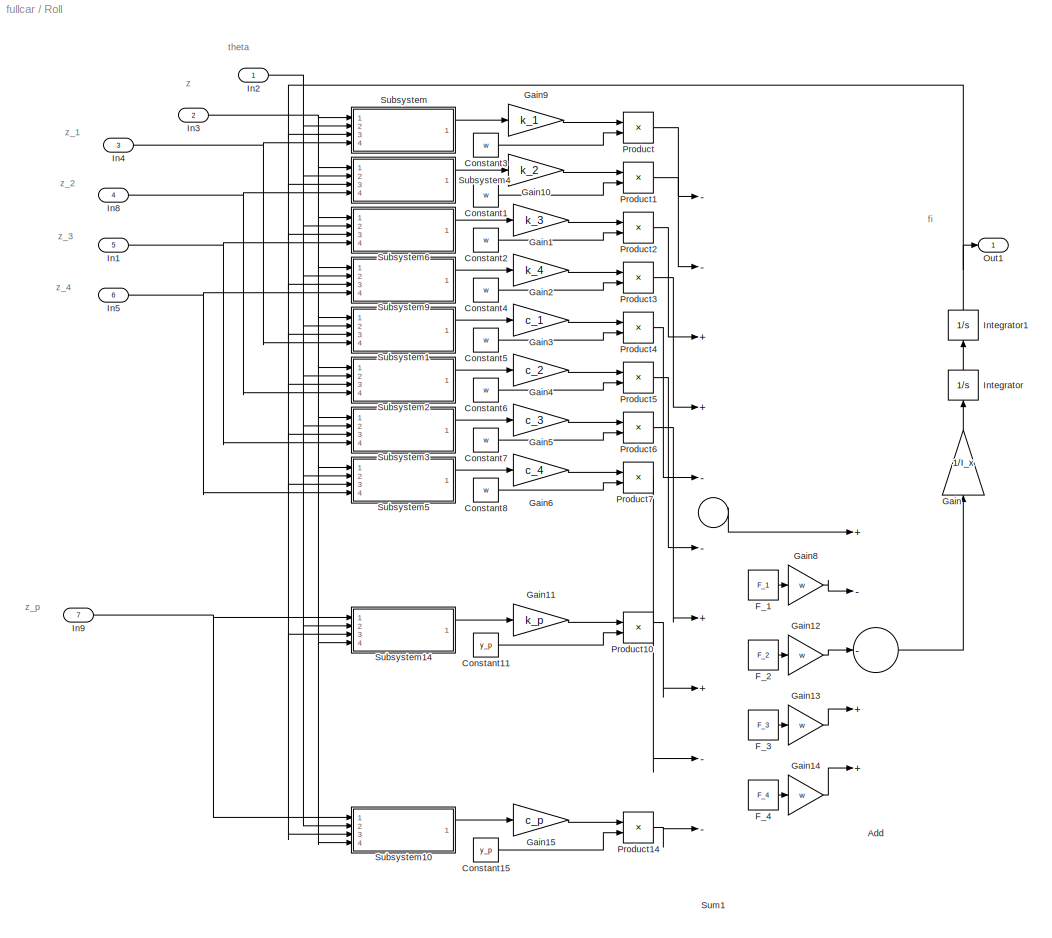
BLOCK [SubSystem] Roll
  Ports = [7, 1]
  RequestExecContextInheritance = off
  SID = 4326
BLOCK [Sum] Roll/Add
  InputSameDT = off
  Inputs = +--++
  OutDataTypeStr = Inherit: Inherit via internal rule
  Ports = [5, 1]
  SID = 5844
  SaturateOnIntegerOverflow = off
BLOCK [Constant] Roll/Constant1
  SID = 4601
  Value = w
BLOCK [Constant] Roll/Constant11
  SID = 4610
  Value = y_p
BLOCK [Constant] Roll/Constant15
  SID = 4614
  Value = y_p
BLOCK [Constant] Roll/Constant2
  SID = 4600
  Value = w
BLOCK [Constant] Roll/Constant3
  SID = 4602
  Value = w
BLOCK [Constant] Roll/Constant4
  SID = 4603
  Value = w
BLOCK [Constant] Roll/Constant5
  SID = 4604
  Value = w
BLOCK [Constant] Roll/Constant6
  SID = 4605
  Value = w
BLOCK [Constant] Roll/Constant7
  SID = 4606
  Value = w
BLOCK [Constant] Roll/Constant8
  SID = 4607
  Value = w
BLOCK [Constant] Roll/F_1
  SID = 5839
  Value = F_1
BLOCK [Constant] Roll/F_2
  SID = 5840
  Value = F_2
BLOCK [Constant] Roll/F_3
  SID = 5841
  Value = F_3
BLOCK [Constant] Roll/F_4
  SID = 5842
  Value = F_4
BLOCK [Gain] Roll/Gain
  Gain = 1/I_x
  OutDataTypeStr = Inherit: Inherit via internal rule
  ParamDataTypeStr = Inherit: Inherit via internal rule
  SID = 4337
  SaturateOnIntegerOverflow = off
BLOCK [Gain] Roll/Gain1
  Gain = k_3
  OutDataTypeStr = Inherit: Inherit via internal rule
  ParamDataTypeStr = Inherit: Inherit via internal rule
  SID = 4338
  SaturateOnIntegerOverflow = off
BLOCK [Gain] Roll/Gain10
  Gain = k_2
  OutDataTypeStr = Inherit: Inherit via internal rule
  ParamDataTypeStr = Inherit: Inherit via internal rule
  SID = 4339
  SaturateOnIntegerOverflow = off
BLOCK [Gain] Roll/Gain11
  Gain = k_p
  OutDataTypeStr = Inherit: Inherit via internal rule
  ParamDataTypeStr = Inherit: Inherit via internal rule
  SID = 4340
  SaturateOnIntegerOverflow = off
BLOCK [Gain] Roll/Gain12
  Gain = w
  OutDataTypeStr = Inherit: Inherit via internal rule
  ParamDataTypeStr = Inherit: Inherit via internal rule
  SID = 5880
  SaturateOnIntegerOverflow = off
BLOCK [Gain] Roll/Gain13
  Gain = w
  OutDataTypeStr = Inherit: Inherit via internal rule
  ParamDataTypeStr = Inherit: Inherit via internal rule
  SID = 5881
  SaturateOnIntegerOverflow = off
BLOCK [Gain] Roll/Gain14
  Gain = w
  OutDataTypeStr = Inherit: Inherit via internal rule
  ParamDataTypeStr = Inherit: Inherit via internal rule
  SID = 5882
  SaturateOnIntegerOverflow = off
BLOCK [Gain] Roll/Gain15
  Gain = c_p
  OutDataTypeStr = Inherit: Inherit via internal rule
  ParamDataTypeStr = Inherit: Inherit via internal rule
  SID = 4344
  SaturateOnIntegerOverflow = off
BLOCK [Gain] Roll/Gain2
  Gain = k_4
  OutDataTypeStr = Inherit: Inherit via internal rule
  ParamDataTypeStr = Inherit: Inherit via internal rule
  SID = 4346
  SaturateOnIntegerOverflow = off
BLOCK [Gain] Roll/Gain3
  Gain = c_1
  OutDataTypeStr = Inherit: Inherit via internal rule
  ParamDataTypeStr = Inherit: Inherit via internal rule
  SID = 4347
  SaturateOnIntegerOverflow = off
BLOCK [Gain] Roll/Gain4
  Gain = c_2
  OutDataTypeStr = Inherit: Inherit via internal rule
  ParamDataTypeStr = Inherit: Inherit via internal rule
  SID = 4348
  SaturateOnIntegerOverflow = off
BLOCK [Gain] Roll/Gain5
  Gain = c_3
  OutDataTypeStr = Inherit: Inherit via internal rule
  ParamDataTypeStr = Inherit: Inherit via internal rule
  SID = 4349
  SaturateOnIntegerOverflow = off
BLOCK [Gain] Roll/Gain6
  Gain = c_4
  OutDataTypeStr = Inherit: Inherit via internal rule
  ParamDataTypeStr = Inherit: Inherit via internal rule
  SID = 4350
  SaturateOnIntegerOverflow = off
BLOCK [Gain] Roll/Gain8
  Gain = w
  OutDataTypeStr = Inherit: Inherit via internal rule
  ParamDataTypeStr = Inherit: Inherit via internal rule
  SID = 5879
  SaturateOnIntegerOverflow = off
BLOCK [Gain] Roll/Gain9
  Gain = k_1
  OutDataTypeStr = Inherit: Inherit via internal rule
  ParamDataTypeStr = Inherit: Inherit via internal rule
  SID = 4353
  SaturateOnIntegerOverflow = off
BLOCK [Inport] Roll/In1
  IconDisplay = Port number
  Port = 5
  SID = 4331
BLOCK [Inport] Roll/In2
  IconDisplay = Port number
  SID = 4327
BLOCK [Inport] Roll/In3
  IconDisplay = Port number
  Port = 2
  SID = 4328
BLOCK [Inport] Roll/In4
  IconDisplay = Port number
  Port = 3
  SID = 4329
BLOCK [Inport] Roll/In5
  IconDisplay = Port number
  Port = 6
  SID = 4332
BLOCK [Inport] Roll/In8
  IconDisplay = Port number
  Port = 4
  SID = 4330
BLOCK [Inport] Roll/In9
  IconDisplay = Port number
  Port = 7
  SID = 4335
BLOCK [Integrator] Roll/Integrator
  IgnoreLimit = on
  Ports = [1, 1]
  SID = 4354
BLOCK [Integrator] Roll/Integrator1
  Ports = [1, 1]
  SID = 4355
BLOCK [Outport] Roll/Out1
  IconDisplay = Port number
  SID = 4581
BLOCK [Product] Roll/Product
  InputSameDT = off
  OutDataTypeStr = Inherit: Inherit via internal rule
  Ports = [2, 1]
  SID = 4583
  SaturateOnIntegerOverflow = off
BLOCK [Product] Roll/Product1
  InputSameDT = off
  OutDataTypeStr = Inherit: Inherit via internal rule
  Ports = [2, 1]
  SID = 4584
  SaturateOnIntegerOverflow = off
BLOCK [Product] Roll/Product10
  InputSameDT = off
  OutDataTypeStr = Inherit: Inherit via internal rule
  Ports = [2, 1]
  SID = 4593
  SaturateOnIntegerOverflow = off
BLOCK [Product] Roll/Product14
  InputSameDT = off
  OutDataTypeStr = Inherit: Inherit via internal rule
  Ports = [2, 1]
  SID = 4597
  SaturateOnIntegerOverflow = off
BLOCK [Product] Roll/Product2
  InputSameDT = off
  OutDataTypeStr = Inherit: Inherit via internal rule
  Ports = [2, 1]
  SID = 4585
  SaturateOnIntegerOverflow = off
BLOCK [Product] Roll/Product3
  InputSameDT = off
  OutDataTypeStr = Inherit: Inherit via internal rule
  Ports = [2, 1]
  SID = 4586
  SaturateOnIntegerOverflow = off
BLOCK [Product] Roll/Product4
  InputSameDT = off
  OutDataTypeStr = Inherit: Inherit via internal rule
  Ports = [2, 1]
  SID = 4587
  SaturateOnIntegerOverflow = off
BLOCK [Product] Roll/Product5
  InputSameDT = off
  OutDataTypeStr = Inherit: Inherit via internal rule
  Ports = [2, 1]
  SID = 4588
  SaturateOnIntegerOverflow = off
BLOCK [Product] Roll/Product6
  InputSameDT = off
  OutDataTypeStr = Inherit: Inherit via internal rule
  Ports = [2, 1]
  SID = 4589
  SaturateOnIntegerOverflow = off
BLOCK [Product] Roll/Product7
  InputSameDT = off
  OutDataTypeStr = Inherit: Inherit via internal rule
  Ports = [2, 1]
  SID = 4590
  SaturateOnIntegerOverflow = off
BLOCK [SubSystem] Roll/Subsystem
  Ports = [4, 1]
  RequestExecContextInheritance = off
  SID = 4356
BLOCK [Constant] Roll/Subsystem/Constant
  SID = 4361
  Value = a
BLOCK [Constant] Roll/Subsystem/Constant1
  SID = 4362
  Value = w
BLOCK [Inport] Roll/Subsystem/In1
  IconDisplay = Port number
  SID = 4357
BLOCK [Inport] Roll/Subsystem/In2
  IconDisplay = Port number
  Port = 2
  SID = 4358
BLOCK [Inport] Roll/Subsystem/In3
  IconDisplay = Port number
  Port = 3
  SID = 4359
BLOCK [Inport] Roll/Subsystem/In4
  IconDisplay = Port number
  Port = 4
  SID = 4360
BLOCK [Outport] Roll/Subsystem/Out1
  IconDisplay = Port number
  SID = 4367
BLOCK [Product] Roll/Subsystem/Product
  InputSameDT = off
  OutDataTypeStr = Inherit: Inherit via internal rule
  Ports = [2, 1]
  SID = 4363
  SaturateOnIntegerOverflow = off
BLOCK [Product] Roll/Subsystem/Product1
  InputSameDT = off
  OutDataTypeStr = Inherit: Inherit via internal rule
  Ports = [2, 1]
  SID = 4364
  SaturateOnIntegerOverflow = off
BLOCK [Sum] Roll/Subsystem/Sum
  InputSameDT = off
  Inputs = +-+
  OutDataTypeStr = Inherit: Inherit via internal rule
  Ports = [3, 1]
  SID = 4365
  SaturateOnIntegerOverflow = off
BLOCK [Sum] Roll/Subsystem/Sum1
  InputSameDT = off
  Inputs = +-
  OutDataTypeStr = Inherit: Inherit via internal rule
  Ports = [2, 1]
  SID = 4366
  SaturateOnIntegerOverflow = off
BLOCK [SubSystem] Roll/Subsystem1
  Ports = [4, 1]
  RequestExecContextInheritance = off
  SID = 4368
BLOCK [Constant] Roll/Subsystem1/Constant
  SID = 4373
  Value = a
BLOCK [Constant] Roll/Subsystem1/Constant1
  SID = 4374
  Value = w
BLOCK [Derivative] Roll/Subsystem1/Derivative
  SID = 4375
BLOCK [Derivative] Roll/Subsystem1/Derivative1
  SID = 4376
BLOCK [Derivative] Roll/Subsystem1/Derivative2
  SID = 4377
BLOCK [Derivative] Roll/Subsystem1/Derivative3
  SID = 4378
BLOCK [Inport] Roll/Subsystem1/In1
  IconDisplay = Port number
  SID = 4369
BLOCK [Inport] Roll/Subsystem1/In2
  IconDisplay = Port number
  Port = 2
  SID = 4370
BLOCK [Inport] Roll/Subsystem1/In3
  IconDisplay = Port number
  Port = 3
  SID = 4371
BLOCK [Inport] Roll/Subsystem1/In4
  IconDisplay = Port number
  Port = 4
  SID = 4372
BLOCK [Outport] Roll/Subsystem1/Out1
  IconDisplay = Port number
  SID = 4383
BLOCK [Product] Roll/Subsystem1/Product
  InputSameDT = off
  OutDataTypeStr = Inherit: Inherit via internal rule
  Ports = [2, 1]
  SID = 4379
  SaturateOnIntegerOverflow = off
BLOCK [Product] Roll/Subsystem1/Product1
  InputSameDT = off
  OutDataTypeStr = Inherit: Inherit via internal rule
  Ports = [2, 1]
  SID = 4380
  SaturateOnIntegerOverflow = off
BLOCK [Sum] Roll/Subsystem1/Sum
  InputSameDT = off
  Inputs = +-+
  OutDataTypeStr = Inherit: Inherit via internal rule
  Ports = [3, 1]
  SID = 4381
  SaturateOnIntegerOverflow = off
BLOCK [Sum] Roll/Subsystem1/Sum1
  InputSameDT = off
  Inputs = +-
  OutDataTypeStr = Inherit: Inherit via internal rule
  Ports = [2, 1]
  SID = 4382
  SaturateOnIntegerOverflow = off
BLOCK [SubSystem] Roll/Subsystem10
  Ports = [4, 1]
  RequestExecContextInheritance = off
  SID = 4384
BLOCK [Constant] Roll/Subsystem10/Constant
  SID = 4389
  Value = x_p
BLOCK [Constant] Roll/Subsystem10/Constant1
  SID = 4390
  Value = y_p
BLOCK [Derivative] Roll/Subsystem10/Derivative
  SID = 4391
BLOCK [Derivative] Roll/Subsystem10/Derivative1
  SID = 4392
BLOCK [Derivative] Roll/Subsystem10/Derivative2
  SID = 4393
BLOCK [Derivative] Roll/Subsystem10/Derivative3
  SID = 4394
BLOCK [Inport] Roll/Subsystem10/In1
  IconDisplay = Port number
  SID = 4385
BLOCK [Inport] Roll/Subsystem10/In2
  IconDisplay = Port number
  Port = 2
  SID = 4386
BLOCK [Inport] Roll/Subsystem10/In3
  IconDisplay = Port number
  Port = 3
  SID = 4387
BLOCK [Inport] Roll/Subsystem10/In4
  IconDisplay = Port number
  Port = 4
  SID = 4388
BLOCK [Outport] Roll/Subsystem10/Out1
  IconDisplay = Port number
  SID = 4399
BLOCK [Product] Roll/Subsystem10/Product
  InputSameDT = off
  OutDataTypeStr = Inherit: Inherit via internal rule
  Ports = [2, 1]
  SID = 4395
  SaturateOnIntegerOverflow = off
BLOCK [Product] Roll/Subsystem10/Product1
  InputSameDT = off
  OutDataTypeStr = Inherit: Inherit via internal rule
  Ports = [2, 1]
  SID = 4396
  SaturateOnIntegerOverflow = off
BLOCK [Sum] Roll/Subsystem10/Sum1
  InputSameDT = off
  OutDataTypeStr = Inherit: Inherit via internal rule
  Ports = [2, 1]
  SID = 4397
  SaturateOnIntegerOverflow = off
BLOCK [Sum] Roll/Subsystem10/Sum2
  InputSameDT = off
  Inputs = ---
  OutDataTypeStr = Inherit: Inherit via internal rule
  Ports = [3, 1]
  SID = 4398
  SaturateOnIntegerOverflow = off
BLOCK [SubSystem] Roll/Subsystem14
  Ports = [4, 1]
  RequestExecContextInheritance = off
  SID = 4444
BLOCK [Constant] Roll/Subsystem14/Constant
  SID = 4449
  Value = x_p
BLOCK [Constant] Roll/Subsystem14/Constant1
  SID = 4450
  Value = y_p
BLOCK [Inport] Roll/Subsystem14/In1
  IconDisplay = Port number
  SID = 4445
BLOCK [Inport] Roll/Subsystem14/In2
  IconDisplay = Port number
  Port = 2
  SID = 4446
BLOCK [Inport] Roll/Subsystem14/In3
  IconDisplay = Port number
  Port = 3
  SID = 4447
BLOCK [Inport] Roll/Subsystem14/In4
  IconDisplay = Port number
  Port = 4
  SID = 4448
BLOCK [Outport] Roll/Subsystem14/Out1
  IconDisplay = Port number
  SID = 4455
BLOCK [Product] Roll/Subsystem14/Product
  InputSameDT = off
  OutDataTypeStr = Inherit: Inherit via internal rule
  Ports = [2, 1]
  SID = 4451
  SaturateOnIntegerOverflow = off
BLOCK [Product] Roll/Subsystem14/Product1
  InputSameDT = off
  OutDataTypeStr = Inherit: Inherit via internal rule
  Ports = [2, 1]
  SID = 4452
  SaturateOnIntegerOverflow = off
BLOCK [Sum] Roll/Subsystem14/Sum1
  InputSameDT = off
  OutDataTypeStr = Inherit: Inherit via internal rule
  Ports = [2, 1]
  SID = 4453
  SaturateOnIntegerOverflow = off
BLOCK [Sum] Roll/Subsystem14/Sum2
  InputSameDT = off
  Inputs = ---
  OutDataTypeStr = Inherit: Inherit via internal rule
  Ports = [3, 1]
  SID = 4454
  SaturateOnIntegerOverflow = off
BLOCK [SubSystem] Roll/Subsystem2
  Ports = [4, 1]
  RequestExecContextInheritance = off
  SID = 4468
BLOCK [Constant] Roll/Subsystem2/Constant
  SID = 4473
  Value = b
BLOCK [Constant] Roll/Subsystem2/Constant1
  SID = 4474
  Value = w
BLOCK [Derivative] Roll/Subsystem2/Derivative
  SID = 4475
BLOCK [Derivative] Roll/Subsystem2/Derivative1
  SID = 4476
BLOCK [Derivative] Roll/Subsystem2/Derivative2
  SID = 4477
BLOCK [Derivative] Roll/Subsystem2/Derivative3
  SID = 4478
BLOCK [Inport] Roll/Subsystem2/In1
  IconDisplay = Port number
  SID = 4469
BLOCK [Inport] Roll/Subsystem2/In2
  IconDisplay = Port number
  Port = 2
  SID = 4470
BLOCK [Inport] Roll/Subsystem2/In3
  IconDisplay = Port number
  Port = 3
  SID = 4471
BLOCK [Inport] Roll/Subsystem2/In4
  IconDisplay = Port number
  Port = 4
  SID = 4472
BLOCK [Outport] Roll/Subsystem2/Out1
  IconDisplay = Port number
  SID = 4483
BLOCK [Product] Roll/Subsystem2/Product
  InputSameDT = off
  OutDataTypeStr = Inherit: Inherit via internal rule
  Ports = [2, 1]
  SID = 4479
  SaturateOnIntegerOverflow = off
BLOCK [Product] Roll/Subsystem2/Product1
  InputSameDT = off
  OutDataTypeStr = Inherit: Inherit via internal rule
  Ports = [2, 1]
  SID = 4480
  SaturateOnIntegerOverflow = off
BLOCK [Sum] Roll/Subsystem2/Sum
  InputSameDT = off
  Inputs = ++-
  OutDataTypeStr = Inherit: Inherit via internal rule
  Ports = [3, 1]
  SID = 4481
  SaturateOnIntegerOverflow = off
BLOCK [Sum] Roll/Subsystem2/Sum1
  InputSameDT = off
  Inputs = +-
  OutDataTypeStr = Inherit: Inherit via internal rule
  Ports = [2, 1]
  SID = 4482
  SaturateOnIntegerOverflow = off
BLOCK [SubSystem] Roll/Subsystem3
  Ports = [4, 1]
  RequestExecContextInheritance = off
  SID = 4484
BLOCK [Constant] Roll/Subsystem3/Constant
  SID = 4489
  Value = a
BLOCK [Constant] Roll/Subsystem3/Constant1
  SID = 4490
  Value = w
BLOCK [Derivative] Roll/Subsystem3/Derivative
  SID = 4491
BLOCK [Derivative] Roll/Subsystem3/Derivative1
  SID = 4492
BLOCK [Derivative] Roll/Subsystem3/Derivative2
  SID = 4493
BLOCK [Derivative] Roll/Subsystem3/Derivative3
  SID = 4494
BLOCK [Inport] Roll/Subsystem3/In1
  IconDisplay = Port number
  SID = 4485
BLOCK [Inport] Roll/Subsystem3/In2
  IconDisplay = Port number
  Port = 2
  SID = 4486
BLOCK [Inport] Roll/Subsystem3/In3
  IconDisplay = Port number
  Port = 3
  SID = 4487
BLOCK [Inport] Roll/Subsystem3/In4
  IconDisplay = Port number
  Port = 4
  SID = 4488
BLOCK [Outport] Roll/Subsystem3/Out1
  IconDisplay = Port number
  SID = 4499
BLOCK [Product] Roll/Subsystem3/Product
  InputSameDT = off
  OutDataTypeStr = Inherit: Inherit via internal rule
  Ports = [2, 1]
  SID = 4495
  SaturateOnIntegerOverflow = off
BLOCK [Product] Roll/Subsystem3/Product1
  InputSameDT = off
  OutDataTypeStr = Inherit: Inherit via internal rule
  Ports = [2, 1]
  SID = 4496
  SaturateOnIntegerOverflow = off
BLOCK [Sum] Roll/Subsystem3/Sum
  InputSameDT = off
  Inputs = ++-
  OutDataTypeStr = Inherit: Inherit via internal rule
  Ports = [3, 1]
  SID = 4497
  SaturateOnIntegerOverflow = off
BLOCK [Sum] Roll/Subsystem3/Sum1
  InputSameDT = off
  Inputs = +-
  OutDataTypeStr = Inherit: Inherit via internal rule
  Ports = [2, 1]
  SID = 4498
  SaturateOnIntegerOverflow = off
BLOCK [SubSystem] Roll/Subsystem4
  Ports = [4, 1]
  RequestExecContextInheritance = off
  SID = 4500
BLOCK [Constant] Roll/Subsystem4/Constant
  SID = 4505
  Value = b
BLOCK [Constant] Roll/Subsystem4/Constant1
  SID = 4506
  Value = w
BLOCK [Inport] Roll/Subsystem4/In1
  IconDisplay = Port number
  SID = 4501
BLOCK [Inport] Roll/Subsystem4/In2
  IconDisplay = Port number
  Port = 2
  SID = 4502
BLOCK [Inport] Roll/Subsystem4/In3
  IconDisplay = Port number
  Port = 3
  SID = 4503
BLOCK [Inport] Roll/Subsystem4/In4
  IconDisplay = Port number
  Port = 4
  SID = 4504
BLOCK [Outport] Roll/Subsystem4/Out1
  IconDisplay = Port number
  SID = 4511
BLOCK [Product] Roll/Subsystem4/Product
  InputSameDT = off
  OutDataTypeStr = Inherit: Inherit via internal rule
  Ports = [2, 1]
  SID = 4507
  SaturateOnIntegerOverflow = off
BLOCK [Product] Roll/Subsystem4/Product1
  InputSameDT = off
  OutDataTypeStr = Inherit: Inherit via internal rule
  Ports = [2, 1]
  SID = 4508
  SaturateOnIntegerOverflow = off
BLOCK [Sum] Roll/Subsystem4/Sum
  InputSameDT = off
  Inputs = +++
  OutDataTypeStr = Inherit: Inherit via internal rule
  Ports = [3, 1]
  SID = 4509
  SaturateOnIntegerOverflow = off
BLOCK [Sum] Roll/Subsystem4/Sum1
  InputSameDT = off
  Inputs = +-
  OutDataTypeStr = Inherit: Inherit via internal rule
  Ports = [2, 1]
  SID = 4510
  SaturateOnIntegerOverflow = off
BLOCK [SubSystem] Roll/Subsystem5
  Ports = [4, 1]
  RequestExecContextInheritance = off
  SID = 4512
BLOCK [Constant] Roll/Subsystem5/Constant
  SID = 4517
  Value = b
BLOCK [Constant] Roll/Subsystem5/Constant1
  SID = 4518
  Value = w
BLOCK [Derivative] Roll/Subsystem5/Derivative
  SID = 4519
BLOCK [Derivative] Roll/Subsystem5/Derivative1
  SID = 4520
BLOCK [Derivative] Roll/Subsystem5/Derivative2
  SID = 4521
BLOCK [Derivative] Roll/Subsystem5/Derivative3
  SID = 4522
BLOCK [Inport] Roll/Subsystem5/In1
  IconDisplay = Port number
  SID = 4513
BLOCK [Inport] Roll/Subsystem5/In2
  IconDisplay = Port number
  Port = 2
  SID = 4514
BLOCK [Inport] Roll/Subsystem5/In3
  IconDisplay = Port number
  Port = 3
  SID = 4515
BLOCK [Inport] Roll/Subsystem5/In4
  IconDisplay = Port number
  Port = 4
  SID = 4516
BLOCK [Outport] Roll/Subsystem5/Out1
  IconDisplay = Port number
  SID = 4527
BLOCK [Product] Roll/Subsystem5/Product
  InputSameDT = off
  OutDataTypeStr = Inherit: Inherit via internal rule
  Ports = [2, 1]
  SID = 4523
  SaturateOnIntegerOverflow = off
BLOCK [Product] Roll/Subsystem5/Product1
  InputSameDT = off
  OutDataTypeStr = Inherit: Inherit via internal rule
  Ports = [2, 1]
  SID = 4524
  SaturateOnIntegerOverflow = off
BLOCK [Sum] Roll/Subsystem5/Sum
  InputSameDT = off
  Inputs = +-+
  OutDataTypeStr = Inherit: Inherit via internal rule
  Ports = [3, 1]
  SID = 4525
  SaturateOnIntegerOverflow = off
BLOCK [Sum] Roll/Subsystem5/Sum1
  InputSameDT = off
  Inputs = +-
  OutDataTypeStr = Inherit: Inherit via internal rule
  Ports = [2, 1]
  SID = 4526
  SaturateOnIntegerOverflow = off
BLOCK [SubSystem] Roll/Subsystem6
  Ports = [4, 1]
  RequestExecContextInheritance = off
  SID = 4528
BLOCK [Constant] Roll/Subsystem6/Constant
  SID = 4533
  Value = a
BLOCK [Constant] Roll/Subsystem6/Constant1
  SID = 4534
  Value = w
BLOCK [Inport] Roll/Subsystem6/In1
  IconDisplay = Port number
  SID = 4529
BLOCK [Inport] Roll/Subsystem6/In2
  IconDisplay = Port number
  Port = 2
  SID = 4530
BLOCK [Inport] Roll/Subsystem6/In3
  IconDisplay = Port number
  Port = 3
  SID = 4531
BLOCK [Inport] Roll/Subsystem6/In4
  IconDisplay = Port number
  Port = 4
  SID = 4532
BLOCK [Outport] Roll/Subsystem6/Out1
  IconDisplay = Port number
  SID = 4539
BLOCK [Product] Roll/Subsystem6/Product
  InputSameDT = off
  OutDataTypeStr = Inherit: Inherit via internal rule
  Ports = [2, 1]
  SID = 4535
  SaturateOnIntegerOverflow = off
BLOCK [Product] Roll/Subsystem6/Product1
  InputSameDT = off
  OutDataTypeStr = Inherit: Inherit via internal rule
  Ports = [2, 1]
  SID = 4536
  SaturateOnIntegerOverflow = off
BLOCK [Sum] Roll/Subsystem6/Sum
  InputSameDT = off
  Inputs = ++-
  OutDataTypeStr = Inherit: Inherit via internal rule
  Ports = [3, 1]
  SID = 4537
  SaturateOnIntegerOverflow = off
BLOCK [Sum] Roll/Subsystem6/Sum1
  InputSameDT = off
  Inputs = +-
  OutDataTypeStr = Inherit: Inherit via internal rule
  Ports = [2, 1]
  SID = 4538
  SaturateOnIntegerOverflow = off
BLOCK [SubSystem] Roll/Subsystem9
  Ports = [4, 1]
  RequestExecContextInheritance = off
  SID = 4568
BLOCK [Constant] Roll/Subsystem9/Constant
  SID = 4573
  Value = b
BLOCK [Constant] Roll/Subsystem9/Constant1
  SID = 4574
  Value = w
BLOCK [Inport] Roll/Subsystem9/In1
  IconDisplay = Port number
  SID = 4569
BLOCK [Inport] Roll/Subsystem9/In2
  IconDisplay = Port number
  Port = 2
  SID = 4570
BLOCK [Inport] Roll/Subsystem9/In3
  IconDisplay = Port number
  Port = 3
  SID = 4571
BLOCK [Inport] Roll/Subsystem9/In4
  IconDisplay = Port number
  Port = 4
  SID = 4572
BLOCK [Outport] Roll/Subsystem9/Out1
  IconDisplay = Port number
  SID = 4579
BLOCK [Product] Roll/Subsystem9/Product
  InputSameDT = off
  OutDataTypeStr = Inherit: Inherit via internal rule
  Ports = [2, 1]
  SID = 4575
  SaturateOnIntegerOverflow = off
BLOCK [Product] Roll/Subsystem9/Product1
  InputSameDT = off
  OutDataTypeStr = Inherit: Inherit via internal rule
  Ports = [2, 1]
  SID = 4576
  SaturateOnIntegerOverflow = off
BLOCK [Sum] Roll/Subsystem9/Sum
  InputSameDT = off
  Inputs = +-+
  OutDataTypeStr = Inherit: Inherit via internal rule
  Ports = [3, 1]
  SID = 4577
  SaturateOnIntegerOverflow = off
BLOCK [Sum] Roll/Subsystem9/Sum1
  InputSameDT = off
  Inputs = +-
  OutDataTypeStr = Inherit: Inherit via internal rule
  Ports = [2, 1]
  SID = 4578
  SaturateOnIntegerOverflow = off
BLOCK [Sum] Roll/Sum1
  InputSameDT = off
  Inputs = --++--++--
  OutDataTypeStr = Inherit: Inherit via internal rule
  Ports = [10, 1]
  SID = 4580
  SaturateOnIntegerOverflow = off
BLOCK [Scope] heave
  Floating = off
  NumInputPorts = 1
  Ports = [1]
  SID = 5873
  ScopeSpecificationString = Simulink.scopes.TimeScopeBlockCfg('CurrentConfiguration', extmgr.ConfigurationSet(extmgr.Configuration('Core','General UI',true),extmgr.Configuration('Core','Source UI',true),extmgr.Configuration('Sources','WiredSimulink',true,'DataLoggingSaveFormat','StructureWithTime','DataLoggingLimitDataPoints',true,'DataLoggingDecimation','1','DataLoggingDecimateData',true),extmgr.Configuration('Visuals','Tim...<+1638ch>
BLOCK [Scope] pitch
  Floating = off
  NumInputPorts = 1
  Ports = [1]
  SID = 5876
  ScopeSpecificationString = Simulink.scopes.TimeScopeBlockCfg('CurrentConfiguration', extmgr.ConfigurationSet(extmgr.Configuration('Core','General UI',true),extmgr.Configuration('Core','Source UI',true),extmgr.Configuration('Sources','WiredSimulink',true,'DataLoggingVariableName','ScopeData2','DataLoggingSaveFormat','StructureWithTime','DataLoggingLimitDataPoints',true,'DataLoggingDecimation','1','DataLoggingDecimateData',tr...<+1676ch>
BLOCK [Scope] roll
  Floating = off
  NumInputPorts = 1
  Ports = [1]
  SID = 5874
  ScopeSpecificationString = Simulink.scopes.TimeScopeBlockCfg('CurrentConfiguration', extmgr.ConfigurationSet(extmgr.Configuration('Core','General UI',true),extmgr.Configuration('Core','Source UI',true),extmgr.Configuration('Sources','WiredSimulink',true,'DataLoggingVariableName','ScopeData1','DataLoggingSaveFormat','StructureWithTime','DataLoggingLimitDataPoints',true,'DataLoggingDecimation','1','DataLoggingDecimateData',tr...<+1676ch>
BLOCK [Scope] seat heave
  Floating = off
  NumInputPorts = 1
  Ports = [1]
  SID = 5877
  ScopeSpecificationString = Simulink.scopes.TimeScopeBlockCfg('CurrentConfiguration', extmgr.ConfigurationSet(extmgr.Configuration('Core','General UI',true),extmgr.Configuration('Core','Source UI',true),extmgr.Configuration('Sources','WiredSimulink',true,'DataLoggingVariableName','ScopeData3','DataLoggingSaveFormat','StructureWithTime','DataLoggingLimitDataPoints',true,'DataLoggingDecimation','1','DataLoggingDecimateData',tr...<+1676ch>
BLOCK [SubSystem] system 1
  Ports = [4, 1]
  RequestExecContextInheritance = off
  SID = 1508
BLOCK [Constant] system 1/F_1
  SID = 5853
  Value = F_1
BLOCK [Gain] system 1/Gain
  Gain = 1/m_1
  OutDataTypeStr = Inherit: Inherit via internal rule
  ParamDataTypeStr = Inherit: Inherit via internal rule
  SID = 1519
  SaturateOnIntegerOverflow = off
BLOCK [Gain] system 1/Gain1
  Gain = k_t
  OutDataTypeStr = Inherit: Inherit via internal rule
  ParamDataTypeStr = Inherit: Inherit via internal rule
  SID = 1767
  SaturateOnIntegerOverflow = off
BLOCK [Gain] system 1/Gain12
  Gain = k_1
  OutDataTypeStr = Inherit: Inherit via internal rule
  ParamDataTypeStr = Inherit: Inherit via internal rule
  SID = 5344
  SaturateOnIntegerOverflow = off
BLOCK [Gain] system 1/Gain2
  Gain = c_t
  OutDataTypeStr = Inherit: Inherit via internal rule
  ParamDataTypeStr = Inherit: Inherit via internal rule
  SID = 1768
  SaturateOnIntegerOverflow = off
BLOCK [Gain] system 1/Gain6
  Gain = c_1
  OutDataTypeStr = Inherit: Inherit via internal rule
  ParamDataTypeStr = Inherit: Inherit via internal rule
  SID = 5340
  SaturateOnIntegerOverflow = off
BLOCK [Inport] system 1/In1
  IconDisplay = Port number
  Port = 3
  SID = 1764
BLOCK [Inport] system 1/In2
  IconDisplay = Port number
  SID = 1509
BLOCK [Inport] system 1/In3
  IconDisplay = Port number
  Port = 2
  SID = 1510
BLOCK [Inport] system 1/In4
  IconDisplay = Port number
  Port = 4
  SID = 1781
BLOCK [Integrator] system 1/Integrator
  Ports = [1, 1]
  SID = 1536
BLOCK [Integrator] system 1/Integrator1
  Ports = [1, 1]
  SID = 1537
BLOCK [Outport] system 1/Out1
  IconDisplay = Port number
  SID = 1763
BLOCK [SubSystem] system 1/Subsystem1
  Ports = [2, 1]
  RequestExecContextInheritance = off
  SID = 1769
BLOCK [Inport] system 1/Subsystem1/In1
  IconDisplay = Port number
  SID = 1770
BLOCK [Inport] system 1/Subsystem1/In2
  IconDisplay = Port number
  Port = 2
  SID = 1772
BLOCK [Outport] system 1/Subsystem1/Out1
  IconDisplay = Port number
  SID = 1771
BLOCK [Sum] system 1/Subsystem1/Sum
  InputSameDT = off
  Inputs = +-
  OutDataTypeStr = Inherit: Inherit via internal rule
  Ports = [2, 1]
  SID = 1773
  SaturateOnIntegerOverflow = off
BLOCK [SubSystem] system 1/Subsystem2
  Ports = [2, 1]
  RequestExecContextInheritance = off
  SID = 1774
BLOCK [Derivative] system 1/Subsystem2/Derivative
  SID = 1779
BLOCK [Derivative] system 1/Subsystem2/Derivative1
  SID = 1780
BLOCK [Inport] system 1/Subsystem2/In1
  IconDisplay = Port number
  SID = 1775
BLOCK [Inport] system 1/Subsystem2/In2
  IconDisplay = Port number
  Port = 2
  SID = 1776
BLOCK [Outport] system 1/Subsystem2/Out1
  IconDisplay = Port number
  SID = 1778
BLOCK [Sum] system 1/Subsystem2/Sum
  InputSameDT = off
  Inputs = +-
  OutDataTypeStr = Inherit: Inherit via internal rule
  Ports = [2, 1]
  SID = 1777
  SaturateOnIntegerOverflow = off
BLOCK [SubSystem] system 1/Subsystem4
  Ports = [4, 1]
  RequestExecContextInheritance = off
  SID = 5345
BLOCK [Constant] system 1/Subsystem4/Constant
  SID = 5350
  Value = a
BLOCK [Constant] system 1/Subsystem4/Constant1
  SID = 5351
  Value = w
BLOCK [Inport] system 1/Subsystem4/In1
  IconDisplay = Port number
  SID = 5346
BLOCK [Inport] system 1/Subsystem4/In2
  IconDisplay = Port number
  Port = 2
  SID = 5347
BLOCK [Inport] system 1/Subsystem4/In3
  IconDisplay = Port number
  Port = 3
  SID = 5348
BLOCK [Inport] system 1/Subsystem4/In4
  IconDisplay = Port number
  Port = 4
  SID = 5349
BLOCK [Outport] system 1/Subsystem4/Out1
  IconDisplay = Port number
  SID = 5356
BLOCK [Product] system 1/Subsystem4/Product
  InputSameDT = off
  OutDataTypeStr = Inherit: Inherit via internal rule
  Ports = [2, 1]
  SID = 5352
  SaturateOnIntegerOverflow = off
BLOCK [Product] system 1/Subsystem4/Product1
  InputSameDT = off
  OutDataTypeStr = Inherit: Inherit via internal rule
  Ports = [2, 1]
  SID = 5353
  SaturateOnIntegerOverflow = off
BLOCK [Sum] system 1/Subsystem4/Sum
  InputSameDT = off
  Inputs = ++-
  OutDataTypeStr = Inherit: Inherit via internal rule
  Ports = [3, 1]
  SID = 5354
  SaturateOnIntegerOverflow = off
BLOCK [Sum] system 1/Subsystem4/Sum1
  InputSameDT = off
  Inputs = +-
  OutDataTypeStr = Inherit: Inherit via internal rule
  Ports = [2, 1]
  SID = 5355
  SaturateOnIntegerOverflow = off
BLOCK [SubSystem] system 1/Subsystem5
  Ports = [4, 1]
  RequestExecContextInheritance = off
  SID = 5357
BLOCK [Constant] system 1/Subsystem5/Constant
  SID = 5362
  Value = a
BLOCK [Constant] system 1/Subsystem5/Constant1
  SID = 5363
  Value = w
BLOCK [Derivative] system 1/Subsystem5/Derivative
  SID = 5364
BLOCK [Derivative] system 1/Subsystem5/Derivative1
  SID = 5365
BLOCK [Derivative] system 1/Subsystem5/Derivative2
  SID = 5366
BLOCK [Derivative] system 1/Subsystem5/Derivative3
  SID = 5367
BLOCK [Inport] system 1/Subsystem5/In1
  IconDisplay = Port number
  SID = 5358
BLOCK [Inport] system 1/Subsystem5/In2
  IconDisplay = Port number
  Port = 2
  SID = 5359
BLOCK [Inport] system 1/Subsystem5/In3
  IconDisplay = Port number
  Port = 3
  SID = 5360
BLOCK [Inport] system 1/Subsystem5/In4
  IconDisplay = Port number
  Port = 4
  SID = 5361
BLOCK [Outport] system 1/Subsystem5/Out1
  IconDisplay = Port number
  SID = 5372
BLOCK [Product] system 1/Subsystem5/Product
  InputSameDT = off
  OutDataTypeStr = Inherit: Inherit via internal rule
  Ports = [2, 1]
  SID = 5368
  SaturateOnIntegerOverflow = off
BLOCK [Product] system 1/Subsystem5/Product1
  InputSameDT = off
  OutDataTypeStr = Inherit: Inherit via internal rule
  Ports = [2, 1]
  SID = 5369
  SaturateOnIntegerOverflow = off
BLOCK [Sum] system 1/Subsystem5/Sum
  InputSameDT = off
  Inputs = ++-
  OutDataTypeStr = Inherit: Inherit via internal rule
  Ports = [3, 1]
  SID = 5370
  SaturateOnIntegerOverflow = off
BLOCK [Sum] system 1/Subsystem5/Sum1
  InputSameDT = off
  Inputs = +-
  OutDataTypeStr = Inherit: Inherit via internal rule
  Ports = [2, 1]
  SID = 5371
  SaturateOnIntegerOverflow = off
BLOCK [Sum] system 1/Sum2
  InputSameDT = off
  Inputs = ++--+
  OutDataTypeStr = Inherit: Inherit via internal rule
  Ports = [5, 1]
  SID = 1766
  SaturateOnIntegerOverflow = off
BLOCK [SubSystem] system 2
  Ports = [4, 1]
  RequestExecContextInheritance = off
  SID = 1782
BLOCK [Constant] system 2/F_2
  SID = 5862
  Value = F_2
BLOCK [Gain] system 2/Gain
  Gain = 1/m_2
  OutDataTypeStr = Inherit: Inherit via internal rule
  ParamDataTypeStr = Inherit: Inherit via internal rule
  SID = 1787
  SaturateOnIntegerOverflow = off
BLOCK [Gain] system 2/Gain1
  Gain = k_t
  OutDataTypeStr = Inherit: Inherit via internal rule
  ParamDataTypeStr = Inherit: Inherit via internal rule
  SID = 1788
  SaturateOnIntegerOverflow = off
BLOCK [Gain] system 2/Gain2
  Gain = c_t
  OutDataTypeStr = Inherit: Inherit via internal rule
  ParamDataTypeStr = Inherit: Inherit via internal rule
  SID = 1789
  SaturateOnIntegerOverflow = off
BLOCK [Gain] system 2/Gain5
  Gain = k_2
  OutDataTypeStr = Inherit: Inherit via internal rule
  ParamDataTypeStr = Inherit: Inherit via internal rule
  SID = 5458
  SaturateOnIntegerOverflow = off
BLOCK [Gain] system 2/Gain8
  Gain = c_2
  OutDataTypeStr = Inherit: Inherit via internal rule
  ParamDataTypeStr = Inherit: Inherit via internal rule
  SID = 5461
  SaturateOnIntegerOverflow = off
BLOCK [Inport] system 2/In1
  IconDisplay = Port number
  Port = 3
  SID = 1785
BLOCK [Inport] system 2/In2
  IconDisplay = Port number
  SID = 1783
BLOCK [Inport] system 2/In3
  IconDisplay = Port number
  Port = 2
  SID = 1784
BLOCK [Inport] system 2/In4
  IconDisplay = Port number
  Port = 4
  SID = 1786
BLOCK [Integrator] system 2/Integrator
  Ports = [1, 1]
  SID = 5884
BLOCK [Integrator] system 2/Integrator1
  Ports = [1, 1]
  SID = 1793
BLOCK [Outport] system 2/Out1
  IconDisplay = Port number
  SID = 1837
BLOCK [SubSystem] system 2/Subsystem1
  Ports = [2, 1]
  RequestExecContextInheritance = off
  SID = 1806
BLOCK [Inport] system 2/Subsystem1/In1
  IconDisplay = Port number
  SID = 1807
BLOCK [Inport] system 2/Subsystem1/In2
  IconDisplay = Port number
  Port = 2
  SID = 1808
BLOCK [Outport] system 2/Subsystem1/Out1
  IconDisplay = Port number
  SID = 1810
BLOCK [Sum] system 2/Subsystem1/Sum
  InputSameDT = off
  Inputs = +-
  OutDataTypeStr = Inherit: Inherit via internal rule
  Ports = [2, 1]
  SID = 1809
  SaturateOnIntegerOverflow = off
BLOCK [SubSystem] system 2/Subsystem2
  Ports = [2, 1]
  RequestExecContextInheritance = off
  SID = 1811
BLOCK [Derivative] system 2/Subsystem2/Derivative
  SID = 1814
BLOCK [Derivative] system 2/Subsystem2/Derivative1
  SID = 1815
BLOCK [Inport] system 2/Subsystem2/In1
  IconDisplay = Port number
  SID = 1812
BLOCK [Inport] system 2/Subsystem2/In2
  IconDisplay = Port number
  Port = 2
  SID = 1813
BLOCK [Outport] system 2/Subsystem2/Out1
  IconDisplay = Port number
  SID = 1817
BLOCK [Sum] system 2/Subsystem2/Sum
  InputSameDT = off
  Inputs = +-
  OutDataTypeStr = Inherit: Inherit via internal rule
  Ports = [2, 1]
  SID = 1816
  SaturateOnIntegerOverflow = off
BLOCK [SubSystem] system 2/Subsystem5
  Ports = [4, 1]
  RequestExecContextInheritance = off
  SID = 5493
BLOCK [Constant] system 2/Subsystem5/Constant
  SID = 5498
  Value = b
BLOCK [Constant] system 2/Subsystem5/Constant1
  SID = 5499
  Value = w
BLOCK [Derivative] system 2/Subsystem5/Derivative
  SID = 5500
BLOCK [Derivative] system 2/Subsystem5/Derivative1
  SID = 5501
BLOCK [Derivative] system 2/Subsystem5/Derivative2
  SID = 5502
BLOCK [Derivative] system 2/Subsystem5/Derivative3
  SID = 5503
BLOCK [Inport] system 2/Subsystem5/In1
  IconDisplay = Port number
  SID = 5494
BLOCK [Inport] system 2/Subsystem5/In2
  IconDisplay = Port number
  Port = 2
  SID = 5495
BLOCK [Inport] system 2/Subsystem5/In3
  IconDisplay = Port number
  Port = 3
  SID = 5496
BLOCK [Inport] system 2/Subsystem5/In4
  IconDisplay = Port number
  Port = 4
  SID = 5497
BLOCK [Outport] system 2/Subsystem5/Out1
  IconDisplay = Port number
  SID = 5508
BLOCK [Product] system 2/Subsystem5/Product
  InputSameDT = off
  OutDataTypeStr = Inherit: Inherit via internal rule
  Ports = [2, 1]
  SID = 5504
  SaturateOnIntegerOverflow = off
BLOCK [Product] system 2/Subsystem5/Product1
  InputSameDT = off
  OutDataTypeStr = Inherit: Inherit via internal rule
  Ports = [2, 1]
  SID = 5505
  SaturateOnIntegerOverflow = off
BLOCK [Sum] system 2/Subsystem5/Sum
  InputSameDT = off
  Inputs = +--
  OutDataTypeStr = Inherit: Inherit via internal rule
  Ports = [3, 1]
  SID = 5506
  SaturateOnIntegerOverflow = off
BLOCK [Sum] system 2/Subsystem5/Sum1
  InputSameDT = off
  Inputs = +-
  OutDataTypeStr = Inherit: Inherit via internal rule
  Ports = [2, 1]
  SID = 5507
  SaturateOnIntegerOverflow = off
BLOCK [SubSystem] system 2/Subsystem7
  Ports = [4, 1]
  RequestExecContextInheritance = off
  SID = 5525
BLOCK [Constant] system 2/Subsystem7/Constant
  SID = 5530
  Value = b
BLOCK [Constant] system 2/Subsystem7/Constant1
  SID = 5531
  Value = w
BLOCK [Inport] system 2/Subsystem7/In1
  IconDisplay = Port number
  SID = 5526
BLOCK [Inport] system 2/Subsystem7/In2
  IconDisplay = Port number
  Port = 2
  SID = 5527
BLOCK [Inport] system 2/Subsystem7/In3
  IconDisplay = Port number
  Port = 3
  SID = 5528
BLOCK [Inport] system 2/Subsystem7/In4
  IconDisplay = Port number
  Port = 4
  SID = 5529
BLOCK [Outport] system 2/Subsystem7/Out1
  IconDisplay = Port number
  SID = 5536
BLOCK [Product] system 2/Subsystem7/Product
  InputSameDT = off
  OutDataTypeStr = Inherit: Inherit via internal rule
  Ports = [2, 1]
  SID = 5532
  SaturateOnIntegerOverflow = off
BLOCK [Product] system 2/Subsystem7/Product1
  InputSameDT = off
  OutDataTypeStr = Inherit: Inherit via internal rule
  Ports = [2, 1]
  SID = 5533
  SaturateOnIntegerOverflow = off
BLOCK [Sum] system 2/Subsystem7/Sum
  InputSameDT = off
  Inputs = +--
  OutDataTypeStr = Inherit: Inherit via internal rule
  Ports = [3, 1]
  SID = 5534
  SaturateOnIntegerOverflow = off
BLOCK [Sum] system 2/Subsystem7/Sum1
  InputSameDT = off
  Inputs = +-
  OutDataTypeStr = Inherit: Inherit via internal rule
  Ports = [2, 1]
  SID = 5535
  SaturateOnIntegerOverflow = off
BLOCK [Sum] system 2/Sum2
  InputSameDT = off
  Inputs = ++--+
  OutDataTypeStr = Inherit: Inherit via internal rule
  Ports = [5, 1]
  SID = 1836
  SaturateOnIntegerOverflow = off
BLOCK [SubSystem] system 3
  Ports = [4, 1]
  RequestExecContextInheritance = off
  SID = 1868
BLOCK [Constant] system 3/F_3
  SID = 5867
  Value = F_3
BLOCK [Gain] system 3/Gain
  Gain = 1/m_3
  OutDataTypeStr = Inherit: Inherit via internal rule
  ParamDataTypeStr = Inherit: Inherit via internal rule
  SID = 1873
  SaturateOnIntegerOverflow = off
BLOCK [Gain] system 3/Gain1
  Gain = k_3
  OutDataTypeStr = Inherit: Inherit via internal rule
  ParamDataTypeStr = Inherit: Inherit via internal rule
  SID = 1874
  SaturateOnIntegerOverflow = off
BLOCK [Gain] system 3/Gain2
  Gain = c_3
  OutDataTypeStr = Inherit: Inherit via internal rule
  ParamDataTypeStr = Inherit: Inherit via internal rule
  SID = 1876
  SaturateOnIntegerOverflow = off
BLOCK [Gain] system 3/Gain4
  Gain = k_3
  OutDataTypeStr = Inherit: Inherit via internal rule
  ParamDataTypeStr = Inherit: Inherit via internal rule
  SID = 5577
  SaturateOnIntegerOverflow = off
BLOCK [Gain] system 3/Gain9
  Gain = c_3
  OutDataTypeStr = Inherit: Inherit via internal rule
  ParamDataTypeStr = Inherit: Inherit via internal rule
  SID = 5582
  SaturateOnIntegerOverflow = off
BLOCK [Inport] system 3/In1
  IconDisplay = Port number
  Port = 3
  SID = 1871
BLOCK [Inport] system 3/In2
  IconDisplay = Port number
  SID = 1869
BLOCK [Inport] system 3/In3
  IconDisplay = Port number
  Port = 2
  SID = 1870
BLOCK [Inport] system 3/In4
  IconDisplay = Port number
  Port = 4
  SID = 1872
BLOCK [Integrator] system 3/Integrator
  Ports = [1, 1]
  SID = 1878
BLOCK [Integrator] system 3/Integrator1
  Ports = [1, 1]
  SID = 1879
BLOCK [Outport] system 3/Out1
  IconDisplay = Port number
  SID = 1923
BLOCK [SubSystem] system 3/Subsystem1
  Ports = [2, 1]
  RequestExecContextInheritance = off
  SID = 1896
BLOCK [Inport] system 3/Subsystem1/In1
  IconDisplay = Port number
  SID = 1897
BLOCK [Inport] system 3/Subsystem1/In2
  IconDisplay = Port number
  Port = 2
  SID = 1898
BLOCK [Outport] system 3/Subsystem1/Out1
  IconDisplay = Port number
  SID = 1900
BLOCK [Sum] system 3/Subsystem1/Sum
  InputSameDT = off
  Inputs = +-
  OutDataTypeStr = Inherit: Inherit via internal rule
  Ports = [2, 1]
  SID = 1899
  SaturateOnIntegerOverflow = off
BLOCK [SubSystem] system 3/Subsystem10
  Ports = [4, 1]
  RequestExecContextInheritance = off
  SID = 5673
BLOCK [Constant] system 3/Subsystem10/Constant
  SID = 5678
  Value = a
BLOCK [Constant] system 3/Subsystem10/Constant1
  SID = 5679
  Value = w
BLOCK [Inport] system 3/Subsystem10/In1
  IconDisplay = Port number
  SID = 5674
BLOCK [Inport] system 3/Subsystem10/In2
  IconDisplay = Port number
  Port = 2
  SID = 5675
BLOCK [Inport] system 3/Subsystem10/In3
  IconDisplay = Port number
  Port = 3
  SID = 5676
BLOCK [Inport] system 3/Subsystem10/In4
  IconDisplay = Port number
  Port = 4
  SID = 5677
BLOCK [Outport] system 3/Subsystem10/Out1
  IconDisplay = Port number
  SID = 5684
BLOCK [Product] system 3/Subsystem10/Product
  InputSameDT = off
  OutDataTypeStr = Inherit: Inherit via internal rule
  Ports = [2, 1]
  SID = 5680
  SaturateOnIntegerOverflow = off
BLOCK [Product] system 3/Subsystem10/Product1
  InputSameDT = off
  OutDataTypeStr = Inherit: Inherit via internal rule
  Ports = [2, 1]
  SID = 5681
  SaturateOnIntegerOverflow = off
BLOCK [Sum] system 3/Subsystem10/Sum
  InputSameDT = off
  Inputs = +++
  OutDataTypeStr = Inherit: Inherit via internal rule
  Ports = [3, 1]
  SID = 5682
  SaturateOnIntegerOverflow = off
BLOCK [Sum] system 3/Subsystem10/Sum1
  InputSameDT = off
  Inputs = +-
  OutDataTypeStr = Inherit: Inherit via internal rule
  Ports = [2, 1]
  SID = 5683
  SaturateOnIntegerOverflow = off
BLOCK [SubSystem] system 3/Subsystem2
  Ports = [2, 1]
  RequestExecContextInheritance = off
  SID = 1901
BLOCK [Derivative] system 3/Subsystem2/Derivative
  SID = 1904
BLOCK [Derivative] system 3/Subsystem2/Derivative1
  SID = 1905
BLOCK [Inport] system 3/Subsystem2/In1
  IconDisplay = Port number
  SID = 1902
BLOCK [Inport] system 3/Subsystem2/In2
  IconDisplay = Port number
  Port = 2
  SID = 1903
BLOCK [Outport] system 3/Subsystem2/Out1
  IconDisplay = Port number
  SID = 1907
BLOCK [Sum] system 3/Subsystem2/Sum
  InputSameDT = off
  Inputs = +-
  OutDataTypeStr = Inherit: Inherit via internal rule
  Ports = [2, 1]
  SID = 1906
  SaturateOnIntegerOverflow = off
BLOCK [SubSystem] system 3/Subsystem5
  Ports = [4, 1]
  RequestExecContextInheritance = off
  SID = 5629
BLOCK [Constant] system 3/Subsystem5/Constant
  SID = 5634
  Value = a
BLOCK [Constant] system 3/Subsystem5/Constant1
  SID = 5635
  Value = w
BLOCK [Derivative] system 3/Subsystem5/Derivative
  SID = 5636
BLOCK [Derivative] system 3/Subsystem5/Derivative1
  SID = 5637
BLOCK [Derivative] system 3/Subsystem5/Derivative2
  SID = 5638
BLOCK [Derivative] system 3/Subsystem5/Derivative3
  SID = 5639
BLOCK [Inport] system 3/Subsystem5/In1
  IconDisplay = Port number
  SID = 5630
BLOCK [Inport] system 3/Subsystem5/In2
  IconDisplay = Port number
  Port = 2
  SID = 5631
BLOCK [Inport] system 3/Subsystem5/In3
  IconDisplay = Port number
  Port = 3
  SID = 5632
BLOCK [Inport] system 3/Subsystem5/In4
  IconDisplay = Port number
  Port = 4
  SID = 5633
BLOCK [Outport] system 3/Subsystem5/Out1
  IconDisplay = Port number
  SID = 5644
BLOCK [Product] system 3/Subsystem5/Product
  InputSameDT = off
  OutDataTypeStr = Inherit: Inherit via internal rule
  Ports = [2, 1]
  SID = 5640
  SaturateOnIntegerOverflow = off
BLOCK [Product] system 3/Subsystem5/Product1
  InputSameDT = off
  OutDataTypeStr = Inherit: Inherit via internal rule
  Ports = [2, 1]
  SID = 5641
  SaturateOnIntegerOverflow = off
BLOCK [Sum] system 3/Subsystem5/Sum
  InputSameDT = off
  Inputs = +++
  OutDataTypeStr = Inherit: Inherit via internal rule
  Ports = [3, 1]
  SID = 5642
  SaturateOnIntegerOverflow = off
BLOCK [Sum] system 3/Subsystem5/Sum1
  InputSameDT = off
  Inputs = +-
  OutDataTypeStr = Inherit: Inherit via internal rule
  Ports = [2, 1]
  SID = 5643
  SaturateOnIntegerOverflow = off
BLOCK [Sum] system 3/Sum2
  InputSameDT = off
  Inputs = ++--+
  OutDataTypeStr = Inherit: Inherit via internal rule
  Ports = [5, 1]
  SID = 1922
  SaturateOnIntegerOverflow = off
BLOCK [SubSystem] system 4
  Ports = [4, 1]
  RequestExecContextInheritance = off
  SID = 1954
BLOCK [Constant] system 4/F_4
  SID = 5872
  Value = F_4
BLOCK [Gain] system 4/Gain
  Gain = 1/m_4
  OutDataTypeStr = Inherit: Inherit via internal rule
  ParamDataTypeStr = Inherit: Inherit via internal rule
  SID = 1959
  SaturateOnIntegerOverflow = off
BLOCK [Gain] system 4/Gain1
  Gain = k_4
  OutDataTypeStr = Inherit: Inherit via internal rule
  ParamDataTypeStr = Inherit: Inherit via internal rule
  SID = 1960
  SaturateOnIntegerOverflow = off
BLOCK [Gain] system 4/Gain11
  Gain = c_4
  OutDataTypeStr = Inherit: Inherit via internal rule
  ParamDataTypeStr = Inherit: Inherit via internal rule
  SID = 5703
  SaturateOnIntegerOverflow = off
BLOCK [Gain] system 4/Gain2
  Gain = c_4
  OutDataTypeStr = Inherit: Inherit via internal rule
  ParamDataTypeStr = Inherit: Inherit via internal rule
  SID = 1961
  SaturateOnIntegerOverflow = off
BLOCK [Gain] system 4/Gain5
  Gain = k_4
  OutDataTypeStr = Inherit: Inherit via internal rule
  ParamDataTypeStr = Inherit: Inherit via internal rule
  SID = 5699
  SaturateOnIntegerOverflow = off
BLOCK [Inport] system 4/In1
  IconDisplay = Port number
  Port = 3
  SID = 1957
BLOCK [Inport] system 4/In2
  IconDisplay = Port number
  SID = 1955
BLOCK [Inport] system 4/In3
  IconDisplay = Port number
  Port = 2
  SID = 1956
BLOCK [Inport] system 4/In4
  IconDisplay = Port number
  Port = 4
  SID = 1958
BLOCK [Integrator] system 4/Integrator
  Ports = [1, 1]
  SID = 1964
BLOCK [Integrator] system 4/Integrator1
  Ports = [1, 1]
  SID = 1965
BLOCK [Outport] system 4/Out1
  IconDisplay = Port number
  SID = 2009
BLOCK [SubSystem] system 4/Subsystem1
  Ports = [2, 1]
  RequestExecContextInheritance = off
  SID = 1966
BLOCK [Inport] system 4/Subsystem1/In1
  IconDisplay = Port number
  SID = 1967
BLOCK [Inport] system 4/Subsystem1/In2
  IconDisplay = Port number
  Port = 2
  SID = 1968
BLOCK [Outport] system 4/Subsystem1/Out1
  IconDisplay = Port number
  SID = 1970
BLOCK [Sum] system 4/Subsystem1/Sum
  InputSameDT = off
  Inputs = +-
  OutDataTypeStr = Inherit: Inherit via internal rule
  Ports = [2, 1]
  SID = 1969
  SaturateOnIntegerOverflow = off
BLOCK [SubSystem] system 4/Subsystem11
  Ports = [4, 1]
  RequestExecContextInheritance = off
  SID = 5805
BLOCK [Constant] system 4/Subsystem11/Constant
  SID = 5810
  Value = b
BLOCK [Constant] system 4/Subsystem11/Constant1
  SID = 5811
  Value = w
BLOCK [Inport] system 4/Subsystem11/In1
  IconDisplay = Port number
  SID = 5806
BLOCK [Inport] system 4/Subsystem11/In2
  IconDisplay = Port number
  Port = 2
  SID = 5807
BLOCK [Inport] system 4/Subsystem11/In3
  IconDisplay = Port number
  Port = 3
  SID = 5808
BLOCK [Inport] system 4/Subsystem11/In4
  IconDisplay = Port number
  Port = 4
  SID = 5809
BLOCK [Outport] system 4/Subsystem11/Out1
  IconDisplay = Port number
  SID = 5816
BLOCK [Product] system 4/Subsystem11/Product
  InputSameDT = off
  OutDataTypeStr = Inherit: Inherit via internal rule
  Ports = [2, 1]
  SID = 5812
  SaturateOnIntegerOverflow = off
BLOCK [Product] system 4/Subsystem11/Product1
  InputSameDT = off
  OutDataTypeStr = Inherit: Inherit via internal rule
  Ports = [2, 1]
  SID = 5813
  SaturateOnIntegerOverflow = off
BLOCK [Sum] system 4/Subsystem11/Sum
  InputSameDT = off
  Inputs = +-+
  OutDataTypeStr = Inherit: Inherit via internal rule
  Ports = [3, 1]
  SID = 5814
  SaturateOnIntegerOverflow = off
BLOCK [Sum] system 4/Subsystem11/Sum1
  InputSameDT = off
  Inputs = +-
  OutDataTypeStr = Inherit: Inherit via internal rule
  Ports = [2, 1]
  SID = 5815
  SaturateOnIntegerOverflow = off
BLOCK [SubSystem] system 4/Subsystem2
  Ports = [2, 1]
  RequestExecContextInheritance = off
  SID = 1971
BLOCK [Derivative] system 4/Subsystem2/Derivative
  SID = 1974
BLOCK [Derivative] system 4/Subsystem2/Derivative1
  SID = 1975
BLOCK [Inport] system 4/Subsystem2/In1
  IconDisplay = Port number
  SID = 1972
BLOCK [Inport] system 4/Subsystem2/In2
  IconDisplay = Port number
  Port = 2
  SID = 1973
BLOCK [Outport] system 4/Subsystem2/Out1
  IconDisplay = Port number
  SID = 1977
BLOCK [Sum] system 4/Subsystem2/Sum
  InputSameDT = off
  Inputs = +-
  OutDataTypeStr = Inherit: Inherit via internal rule
  Ports = [2, 1]
  SID = 1976
  SaturateOnIntegerOverflow = off
BLOCK [SubSystem] system 4/Subsystem7
  Ports = [4, 1]
  RequestExecContextInheritance = off
  SID = 5777
BLOCK [Constant] system 4/Subsystem7/Constant
  SID = 5782
  Value = b
BLOCK [Constant] system 4/Subsystem7/Constant1
  SID = 5783
  Value = w
BLOCK [Derivative] system 4/Subsystem7/Derivative
  SID = 5784
BLOCK [Derivative] system 4/Subsystem7/Derivative1
  SID = 5785
BLOCK [Derivative] system 4/Subsystem7/Derivative2
  SID = 5786
BLOCK [Derivative] system 4/Subsystem7/Derivative3
  SID = 5787
BLOCK [Inport] system 4/Subsystem7/In1
  IconDisplay = Port number
  SID = 5778
BLOCK [Inport] system 4/Subsystem7/In2
  IconDisplay = Port number
  Port = 2
  SID = 5779
BLOCK [Inport] system 4/Subsystem7/In3
  IconDisplay = Port number
  Port = 3
  SID = 5780
BLOCK [Inport] system 4/Subsystem7/In4
  IconDisplay = Port number
  Port = 4
  SID = 5781
BLOCK [Outport] system 4/Subsystem7/Out1
  IconDisplay = Port number
  SID = 5792
BLOCK [Product] system 4/Subsystem7/Product
  InputSameDT = off
  OutDataTypeStr = Inherit: Inherit via internal rule
  Ports = [2, 1]
  SID = 5788
  SaturateOnIntegerOverflow = off
BLOCK [Product] system 4/Subsystem7/Product1
  InputSameDT = off
  OutDataTypeStr = Inherit: Inherit via internal rule
  Ports = [2, 1]
  SID = 5789
  SaturateOnIntegerOverflow = off
BLOCK [Sum] system 4/Subsystem7/Sum
  InputSameDT = off
  Inputs = +-+
  OutDataTypeStr = Inherit: Inherit via internal rule
  Ports = [3, 1]
  SID = 5790
  SaturateOnIntegerOverflow = off
BLOCK [Sum] system 4/Subsystem7/Sum1
  InputSameDT = off
  Inputs = +-
  OutDataTypeStr = Inherit: Inherit via internal rule
  Ports = [2, 1]
  SID = 5791
  SaturateOnIntegerOverflow = off
BLOCK [Sum] system 4/Sum2
  InputSameDT = off
  Inputs = ++--+
  OutDataTypeStr = Inherit: Inherit via internal rule
  Ports = [5, 1]
  SID = 2008
  SaturateOnIntegerOverflow = off
BLOCK [SubSystem] system 5
  Ports = [3, 1]
  RequestExecContextInheritance = off
  SID = 1292
BLOCK [Gain] system 5/Gain
  Gain = 1/m_p
  OutDataTypeStr = Inherit: Inherit via internal rule
  ParamDataTypeStr = Inherit: Inherit via internal rule
  SID = 1296
  SaturateOnIntegerOverflow = off
BLOCK [Gain] system 5/Gain3
  Gain = k_p
  OutDataTypeStr = Inherit: Inherit via internal rule
  ParamDataTypeStr = Inherit: Inherit via internal rule
  SID = 5187
  SaturateOnIntegerOverflow = off
BLOCK [Gain] system 5/Gain4
  Gain = c_p
  OutDataTypeStr = Inherit: Inherit via internal rule
  ParamDataTypeStr = Inherit: Inherit via internal rule
  SID = 5188
  SaturateOnIntegerOverflow = off
BLOCK [Inport] system 5/In1
  IconDisplay = Port number
  Port = 3
  SID = 1295
BLOCK [Inport] system 5/In11
  IconDisplay = Port number
  Port = 2
  SID = 1294
BLOCK [Inport] system 5/In3
  IconDisplay = Port number
  SID = 1293
BLOCK [Integrator] system 5/Integrator
  Ports = [1, 1]
  SID = 1299
BLOCK [Integrator] system 5/Integrator1
  Ports = [1, 1]
  SID = 1300
BLOCK [Outport] system 5/Out1
  IconDisplay = Port number
  SID = 1330
BLOCK [SubSystem] system 5/Subsystem2
  Ports = [4, 1]
  RequestExecContextInheritance = off
  SID = 5189
BLOCK [Constant] system 5/Subsystem2/Constant
  SID = 5194
  Value = x_p
BLOCK [Constant] system 5/Subsystem2/Constant1
  SID = 5195
  Value = y_p
BLOCK [Inport] system 5/Subsystem2/In1
  IconDisplay = Port number
  SID = 5190
BLOCK [Inport] system 5/Subsystem2/In2
  IconDisplay = Port number
  Port = 2
  SID = 5191
BLOCK [Inport] system 5/Subsystem2/In3
  IconDisplay = Port number
  Port = 3
  SID = 5192
BLOCK [Inport] system 5/Subsystem2/In4
  IconDisplay = Port number
  Port = 4
  SID = 5193
BLOCK [Outport] system 5/Subsystem2/Out1
  IconDisplay = Port number
  SID = 5200
BLOCK [Product] system 5/Subsystem2/Product
  InputSameDT = off
  OutDataTypeStr = Inherit: Inherit via internal rule
  Ports = [2, 1]
  SID = 5196
  SaturateOnIntegerOverflow = off
BLOCK [Product] system 5/Subsystem2/Product1
  InputSameDT = off
  OutDataTypeStr = Inherit: Inherit via internal rule
  Ports = [2, 1]
  SID = 5197
  SaturateOnIntegerOverflow = off
BLOCK [Sum] system 5/Subsystem2/Sum1
  InputSameDT = off
  OutDataTypeStr = Inherit: Inherit via internal rule
  Ports = [2, 1]
  SID = 5198
  SaturateOnIntegerOverflow = off
BLOCK [Sum] system 5/Subsystem2/Sum2
  InputSameDT = off
  Inputs = ---
  OutDataTypeStr = Inherit: Inherit via internal rule
  Ports = [3, 1]
  SID = 5199
  SaturateOnIntegerOverflow = off
BLOCK [SubSystem] system 5/Subsystem3
  Ports = [4, 1]
  RequestExecContextInheritance = off
  SID = 5201
BLOCK [Constant] system 5/Subsystem3/Constant
  SID = 5206
  Value = x_p
BLOCK [Constant] system 5/Subsystem3/Constant1
  SID = 5207
  Value = y_p
BLOCK [Derivative] system 5/Subsystem3/Derivative
  SID = 5208
BLOCK [Derivative] system 5/Subsystem3/Derivative1
  SID = 5209
BLOCK [Derivative] system 5/Subsystem3/Derivative2
  SID = 5210
BLOCK [Derivative] system 5/Subsystem3/Derivative3
  SID = 5211
BLOCK [Inport] system 5/Subsystem3/In1
  IconDisplay = Port number
  SID = 5202
BLOCK [Inport] system 5/Subsystem3/In2
  IconDisplay = Port number
  Port = 2
  SID = 5203
BLOCK [Inport] system 5/Subsystem3/In3
  IconDisplay = Port number
  Port = 3
  SID = 5204
BLOCK [Inport] system 5/Subsystem3/In4
  IconDisplay = Port number
  Port = 4
  SID = 5205
BLOCK [Outport] system 5/Subsystem3/Out1
  IconDisplay = Port number
  SID = 5216
BLOCK [Product] system 5/Subsystem3/Product
  InputSameDT = off
  OutDataTypeStr = Inherit: Inherit via internal rule
  Ports = [2, 1]
  SID = 5212
  SaturateOnIntegerOverflow = off
BLOCK [Product] system 5/Subsystem3/Product1
  InputSameDT = off
  OutDataTypeStr = Inherit: Inherit via internal rule
  Ports = [2, 1]
  SID = 5213
  SaturateOnIntegerOverflow = off
BLOCK [Sum] system 5/Subsystem3/Sum1
  InputSameDT = off
  OutDataTypeStr = Inherit: Inherit via internal rule
  Ports = [2, 1]
  SID = 5214
  SaturateOnIntegerOverflow = off
BLOCK [Sum] system 5/Subsystem3/Sum2
  InputSameDT = off
  Inputs = ---
  OutDataTypeStr = Inherit: Inherit via internal rule
  Ports = [3, 1]
  SID = 5215
  SaturateOnIntegerOverflow = off
BLOCK [Sum] system 5/Sum
  InputSameDT = off
  Inputs = --
  OutDataTypeStr = Inherit: Inherit via internal rule
  Ports = [2, 1]
  SID = 1329
  SaturateOnIntegerOverflow = off
ANNOTATION (root): fi
ANNOTATION (root): theta
ANNOTATION (root): z
ANNOTATION (root): z_1
ANNOTATION (root): z_2
ANNOTATION (root): z_3
ANNOTATION (root): z_4
ANNOTATION (root): z_p
ANNOTATION Heave: fi
ANNOTATION Heave: theta
ANNOTATION Heave: z
ANNOTATION Heave: z_1
ANNOTATION Heave: z_2
ANNOTATION Heave: z_3
ANNOTATION Heave: z_4
ANNOTATION Heave: z_p
ANNOTATION Heave/Subsystem: fi
ANNOTATION Heave/Subsystem: theta
ANNOTATION Heave/Subsystem: z
ANNOTATION Heave/Subsystem: z_1
ANNOTATION Heave/Subsystem1: fi
ANNOTATION Heave/Subsystem1: theta
ANNOTATION Heave/Subsystem1: z
ANNOTATION Heave/Subsystem1: z_1
ANNOTATION Heave/Subsystem10: fi
ANNOTATION Heave/Subsystem10: theta
ANNOTATION Heave/Subsystem10: z
ANNOTATION Heave/Subsystem10: z_p
ANNOTATION Heave/Subsystem14: fi
ANNOTATION Heave/Subsystem14: theta
ANNOTATION Heave/Subsystem14: z
ANNOTATION Heave/Subsystem14: z_p
ANNOTATION Heave/Subsystem2: fi
ANNOTATION Heave/Subsystem2: theta
ANNOTATION Heave/Subsystem2: z
ANNOTATION Heave/Subsystem2: z_2
ANNOTATION Heave/Subsystem3: fi
ANNOTATION Heave/Subsystem3: theta
ANNOTATION Heave/Subsystem3: z
ANNOTATION Heave/Subsystem3: z_3
ANNOTATION Heave/Subsystem4: fi
ANNOTATION Heave/Subsystem4: theta
ANNOTATION Heave/Subsystem4: z
ANNOTATION Heave/Subsystem4: z_2
ANNOTATION Heave/Subsystem5: fi
ANNOTATION Heave/Subsystem5: theta
ANNOTATION Heave/Subsystem5: z
ANNOTATION Heave/Subsystem5: z_4
ANNOTATION Heave/Subsystem6: fi
ANNOTATION Heave/Subsystem6: theta
ANNOTATION Heave/Subsystem6: z
ANNOTATION Heave/Subsystem6: z_3
ANNOTATION Heave/Subsystem9: fi
ANNOTATION Heave/Subsystem9: theta
ANNOTATION Heave/Subsystem9: z
ANNOTATION Heave/Subsystem9: z_4
ANNOTATION Pitch: fi
ANNOTATION Pitch: theta
ANNOTATION Pitch: z
ANNOTATION Pitch: z_1
ANNOTATION Pitch: z_2
ANNOTATION Pitch: z_3
ANNOTATION Pitch: z_4
ANNOTATION Pitch: z_p
ANNOTATION Pitch/Subsystem: fi
ANNOTATION Pitch/Subsystem: theta
ANNOTATION Pitch/Subsystem: z
ANNOTATION Pitch/Subsystem: z_1
ANNOTATION Pitch/Subsystem1: fi
ANNOTATION Pitch/Subsystem1: theta
ANNOTATION Pitch/Subsystem1: z
ANNOTATION Pitch/Subsystem1: z_1
ANNOTATION Pitch/Subsystem10: fi
ANNOTATION Pitch/Subsystem10: theta
ANNOTATION Pitch/Subsystem10: z
ANNOTATION Pitch/Subsystem10: z_p
ANNOTATION Pitch/Subsystem14: fi
ANNOTATION Pitch/Subsystem14: theta
ANNOTATION Pitch/Subsystem14: z
ANNOTATION Pitch/Subsystem14: z_p
ANNOTATION Pitch/Subsystem2: fi
ANNOTATION Pitch/Subsystem2: theta
ANNOTATION Pitch/Subsystem2: z
ANNOTATION Pitch/Subsystem2: z_2
ANNOTATION Pitch/Subsystem3: fi
ANNOTATION Pitch/Subsystem3: theta
ANNOTATION Pitch/Subsystem3: z
ANNOTATION Pitch/Subsystem3: z_3
ANNOTATION Pitch/Subsystem4: fi
ANNOTATION Pitch/Subsystem4: theta
ANNOTATION Pitch/Subsystem4: z
ANNOTATION Pitch/Subsystem4: z_2
ANNOTATION Pitch/Subsystem5: fi
ANNOTATION Pitch/Subsystem5: theta
ANNOTATION Pitch/Subsystem5: z
ANNOTATION Pitch/Subsystem5: z_4
ANNOTATION Pitch/Subsystem6: fi
ANNOTATION Pitch/Subsystem6: theta
ANNOTATION Pitch/Subsystem6: z
ANNOTATION Pitch/Subsystem6: z_3
ANNOTATION Pitch/Subsystem9: fi
ANNOTATION Pitch/Subsystem9: theta
ANNOTATION Pitch/Subsystem9: z
ANNOTATION Pitch/Subsystem9: z_4
ANNOTATION Q_1, Q_2, Q_3, Q_4: Q_1
ANNOTATION Q_1, Q_2, Q_3, Q_4: Q_2
ANNOTATION Q_1, Q_2, Q_3, Q_4: Q_3
ANNOTATION Q_1, Q_2, Q_3, Q_4: Q_4
ANNOTATION Roll: fi
ANNOTATION Roll: theta
ANNOTATION Roll: z
ANNOTATION Roll: z_1
ANNOTATION Roll: z_2
ANNOTATION Roll: z_3
ANNOTATION Roll: z_4
ANNOTATION Roll: z_p
ANNOTATION Roll/Subsystem: fi
ANNOTATION Roll/Subsystem: theta
ANNOTATION Roll/Subsystem: z
ANNOTATION Roll/Subsystem: z_1
ANNOTATION Roll/Subsystem1: fi
ANNOTATION Roll/Subsystem1: theta
ANNOTATION Roll/Subsystem1: z
ANNOTATION Roll/Subsystem1: z_1
ANNOTATION Roll/Subsystem10: fi
ANNOTATION Roll/Subsystem10: theta
ANNOTATION Roll/Subsystem10: z
ANNOTATION Roll/Subsystem10: z_p
ANNOTATION Roll/Subsystem14: fi
ANNOTATION Roll/Subsystem14: theta
ANNOTATION Roll/Subsystem14: z
ANNOTATION Roll/Subsystem14: z_p
ANNOTATION Roll/Subsystem2: fi
ANNOTATION Roll/Subsystem2: theta
ANNOTATION Roll/Subsystem2: z
ANNOTATION Roll/Subsystem2: z_2
ANNOTATION Roll/Subsystem3: fi
ANNOTATION Roll/Subsystem3: theta
ANNOTATION Roll/Subsystem3: z
ANNOTATION Roll/Subsystem3: z_3
ANNOTATION Roll/Subsystem4: fi
ANNOTATION Roll/Subsystem4: theta
ANNOTATION Roll/Subsystem4: z
ANNOTATION Roll/Subsystem4: z_2
ANNOTATION Roll/Subsystem5: fi
ANNOTATION Roll/Subsystem5: theta
ANNOTATION Roll/Subsystem5: z
ANNOTATION Roll/Subsystem5: z_4
ANNOTATION Roll/Subsystem6: fi
ANNOTATION Roll/Subsystem6: theta
ANNOTATION Roll/Subsystem6: z
ANNOTATION Roll/Subsystem6: z_3
ANNOTATION Roll/Subsystem9: fi
ANNOTATION Roll/Subsystem9: theta
ANNOTATION Roll/Subsystem9: z
ANNOTATION Roll/Subsystem9: z_4
ANNOTATION system 1: fi
ANNOTATION system 1: q_1
ANNOTATION system 1: theta
ANNOTATION system 1: z
ANNOTATION system 1: z_1
ANNOTATION system 1/Subsystem1: q_1
ANNOTATION system 1/Subsystem1: z_1
ANNOTATION system 1/Subsystem2: q_1
ANNOTATION system 1/Subsystem2: z_1
ANNOTATION system 1/Subsystem4: fi
ANNOTATION system 1/Subsystem4: theta
ANNOTATION system 1/Subsystem4: z
ANNOTATION system 1/Subsystem4: z_1
ANNOTATION system 1/Subsystem5: fi
ANNOTATION system 1/Subsystem5: theta
ANNOTATION system 1/Subsystem5: z
ANNOTATION system 1/Subsystem5: z_1
ANNOTATION system 2: fi
ANNOTATION system 2: q_2
ANNOTATION system 2: theta
ANNOTATION system 2: z
ANNOTATION system 2: z_2
ANNOTATION system 2/Subsystem1: q_2
ANNOTATION system 2/Subsystem1: z_2
ANNOTATION system 2/Subsystem2: q_2
ANNOTATION system 2/Subsystem2: z_2
ANNOTATION system 2/Subsystem5: fi
ANNOTATION system 2/Subsystem5: theta
ANNOTATION system 2/Subsystem5: z
ANNOTATION system 2/Subsystem5: z_2
ANNOTATION system 2/Subsystem7: fi
ANNOTATION system 2/Subsystem7: theta
ANNOTATION system 2/Subsystem7: z
ANNOTATION system 2/Subsystem7: z_2
ANNOTATION system 3: fi
ANNOTATION system 3: q_3
ANNOTATION system 3: theta
ANNOTATION system 3: z
ANNOTATION system 3: z_3
ANNOTATION system 3/Subsystem1: q_3
ANNOTATION system 3/Subsystem1: z_3
ANNOTATION system 3/Subsystem10: fi
ANNOTATION system 3/Subsystem10: theta
ANNOTATION system 3/Subsystem10: z
ANNOTATION system 3/Subsystem10: z_3
ANNOTATION system 3/Subsystem2: q_3
ANNOTATION system 3/Subsystem2: z_03
ANNOTATION system 3/Subsystem5: fi
ANNOTATION system 3/Subsystem5: theta
ANNOTATION system 3/Subsystem5: z
ANNOTATION system 3/Subsystem5: z_3
ANNOTATION system 4: fi
ANNOTATION system 4: q_4
ANNOTATION system 4: theta
ANNOTATION system 4: z
ANNOTATION system 4: z_4
ANNOTATION system 4/Subsystem1: q_4
ANNOTATION system 4/Subsystem1: z_4
ANNOTATION system 4/Subsystem11: fi
ANNOTATION system 4/Subsystem11: theta
ANNOTATION system 4/Subsystem11: z
ANNOTATION system 4/Subsystem11: z_4
ANNOTATION system 4/Subsystem2: q_4
ANNOTATION system 4/Subsystem2: z_04
ANNOTATION system 4/Subsystem7: fi
ANNOTATION system 4/Subsystem7: theta
ANNOTATION system 4/Subsystem7: z
ANNOTATION system 4/Subsystem7: z_4
ANNOTATION system 5: fi
ANNOTATION system 5: theta
ANNOTATION system 5: z
ANNOTATION system 5: z_3
ANNOTATION system 5/Subsystem2: fi
ANNOTATION system 5/Subsystem2: theta
ANNOTATION system 5/Subsystem2: z
ANNOTATION system 5/Subsystem2: z_p
ANNOTATION system 5/Subsystem3: fi
ANNOTATION system 5/Subsystem3: theta
ANNOTATION system 5/Subsystem3: z
ANNOTATION system 5/Subsystem3: z_3
LINE Heave/Add1:1 -> Heave/Gain:1
LINE Heave/Add:1 -> Heave/Add1:1
LINE Heave/F_1:1 -> Heave/Add1:2
LINE Heave/F_2:1 -> Heave/Add1:3
LINE Heave/F_3:1 -> Heave/Add1:4
LINE Heave/F_4:1 -> Heave/Add1:5
LINE Heave/Gain10:1 -> Heave/Add:2
LINE Heave/Gain11:1 -> Heave/Add:9
LINE Heave/Gain15:1 -> Heave/Add:10
LINE Heave/Gain1:1 -> Heave/Add:3
LINE Heave/Gain2:1 -> Heave/Add:4
LINE Heave/Gain3:1 -> Heave/Add:5
LINE Heave/Gain4:1 -> Heave/Add:6
LINE Heave/Gain5:1 -> Heave/Add:7
LINE Heave/Gain6:1 -> Heave/Add:8
LINE Heave/Gain9:1 -> Heave/Add:1
LINE Heave/Gain:1 -> Heave/Integrator:1
NET Heave/In1:1 -> Heave/Subsystem3:4, Heave/Subsystem6:4
NET Heave/In2:1 -> Heave/Subsystem10:2, Heave/Subsystem14:2, Heave/Subsystem1:2, Heave/Subsystem2:2, Heave/Subsystem3:2, Heave/Subsystem4:2, Heave/Subsystem5:2, Heave/Subsystem6:2, Heave/Subsystem9:2, Heave/Subsystem:2
NET Heave/In3:1 -> Heave/Subsystem10:3, Heave/Subsystem14:3, Heave/Subsystem1:3, Heave/Subsystem2:3, Heave/Subsystem3:3, Heave/Subsystem4:3, Heave/Subsystem5:3, Heave/Subsystem6:3, Heave/Subsystem9:3, Heave/Subsystem:3
NET Heave/In4:1 -> Heave/Subsystem1:4, Heave/Subsystem:4
NET Heave/In5:1 -> Heave/Subsystem5:4, Heave/Subsystem9:4
NET Heave/In8:1 -> Heave/Subsystem2:4, Heave/Subsystem4:4
NET Heave/In9:1 -> Heave/Subsystem10:1, Heave/Subsystem14:1
NET Heave/Integrator1:1 -> Heave/Out1:1, Heave/Subsystem10:4, Heave/Subsystem14:4, Heave/Subsystem1:1, Heave/Subsystem2:1, Heave/Subsystem3:1, Heave/Subsystem4:1, Heave/Subsystem5:1, Heave/Subsystem6:1, Heave/Subsystem9:1, Heave/Subsystem:1
LINE Heave/Integrator:1 -> Heave/Integrator1:1
LINE Heave/Subsystem/Constant1:1 -> Heave/Subsystem/Product1:2
LINE Heave/Subsystem/Constant:1 -> Heave/Subsystem/Product:2
LINE Heave/Subsystem/In1:1 -> Heave/Subsystem/Sum:1
LINE Heave/Subsystem/In2:1 -> Heave/Subsystem/Product:1
LINE Heave/Subsystem/In3:1 -> Heave/Subsystem/Product1:1
LINE Heave/Subsystem/In4:1 -> Heave/Subsystem/Sum1:2
LINE Heave/Subsystem/Product1:1 -> Heave/Subsystem/Sum:3
LINE Heave/Subsystem/Product:1 -> Heave/Subsystem/Sum:2
LINE Heave/Subsystem/Sum1:1 -> Heave/Subsystem/Out1:1
LINE Heave/Subsystem/Sum:1 -> Heave/Subsystem/Sum1:1
LINE Heave/Subsystem1/Constant1:1 -> Heave/Subsystem1/Product1:2
LINE Heave/Subsystem1/Constant:1 -> Heave/Subsystem1/Product:2
LINE Heave/Subsystem1/Derivative1:1 -> Heave/Subsystem1/Product:1
LINE Heave/Subsystem1/Derivative2:1 -> Heave/Subsystem1/Product1:1
LINE Heave/Subsystem1/Derivative3:1 -> Heave/Subsystem1/Sum1:2
LINE Heave/Subsystem1/Derivative:1 -> Heave/Subsystem1/Sum:1
LINE Heave/Subsystem1/In1:1 -> Heave/Subsystem1/Derivative:1
LINE Heave/Subsystem1/In2:1 -> Heave/Subsystem1/Derivative1:1
LINE Heave/Subsystem1/In3:1 -> Heave/Subsystem1/Derivative2:1
LINE Heave/Subsystem1/In4:1 -> Heave/Subsystem1/Derivative3:1
LINE Heave/Subsystem1/Product1:1 -> Heave/Subsystem1/Sum:3
LINE Heave/Subsystem1/Product:1 -> Heave/Subsystem1/Sum:2
LINE Heave/Subsystem1/Sum1:1 -> Heave/Subsystem1/Out1:1
LINE Heave/Subsystem1/Sum:1 -> Heave/Subsystem1/Sum1:1
LINE Heave/Subsystem10/Constant1:1 -> Heave/Subsystem10/Product1:2
LINE Heave/Subsystem10/Constant:1 -> Heave/Subsystem10/Product:2
LINE Heave/Subsystem10/Derivative1:1 -> Heave/Subsystem10/Product:1
LINE Heave/Subsystem10/Derivative2:1 -> Heave/Subsystem10/Product1:1
LINE Heave/Subsystem10/Derivative3:1 -> Heave/Subsystem10/Sum2:3
LINE Heave/Subsystem10/Derivative:1 -> Heave/Subsystem10/Sum1:1
LINE Heave/Subsystem10/In1:1 -> Heave/Subsystem10/Derivative:1
LINE Heave/Subsystem10/In2:1 -> Heave/Subsystem10/Derivative1:1
LINE Heave/Subsystem10/In3:1 -> Heave/Subsystem10/Derivative2:1
LINE Heave/Subsystem10/In4:1 -> Heave/Subsystem10/Derivative3:1
LINE Heave/Subsystem10/Product1:1 -> Heave/Subsystem10/Sum2:2
LINE Heave/Subsystem10/Product:1 -> Heave/Subsystem10/Sum2:1
LINE Heave/Subsystem10/Sum1:1 -> Heave/Subsystem10/Out1:1
LINE Heave/Subsystem10/Sum2:1 -> Heave/Subsystem10/Sum1:2
LINE Heave/Subsystem10:1 -> Heave/Gain15:1
LINE Heave/Subsystem14/Constant1:1 -> Heave/Subsystem14/Product1:2
LINE Heave/Subsystem14/Constant:1 -> Heave/Subsystem14/Product:2
LINE Heave/Subsystem14/In1:1 -> Heave/Subsystem14/Sum1:1
LINE Heave/Subsystem14/In2:1 -> Heave/Subsystem14/Product:1
LINE Heave/Subsystem14/In3:1 -> Heave/Subsystem14/Product1:1
LINE Heave/Subsystem14/In4:1 -> Heave/Subsystem14/Sum2:3
LINE Heave/Subsystem14/Product1:1 -> Heave/Subsystem14/Sum2:2
LINE Heave/Subsystem14/Product:1 -> Heave/Subsystem14/Sum2:1
LINE Heave/Subsystem14/Sum1:1 -> Heave/Subsystem14/Out1:1
LINE Heave/Subsystem14/Sum2:1 -> Heave/Subsystem14/Sum1:2
LINE Heave/Subsystem14:1 -> Heave/Gain11:1
LINE Heave/Subsystem1:1 -> Heave/Gain3:1
LINE Heave/Subsystem2/Constant1:1 -> Heave/Subsystem2/Product1:2
LINE Heave/Subsystem2/Constant:1 -> Heave/Subsystem2/Product:2
LINE Heave/Subsystem2/Derivative1:1 -> Heave/Subsystem2/Product:1
LINE Heave/Subsystem2/Derivative2:1 -> Heave/Subsystem2/Product1:1
LINE Heave/Subsystem2/Derivative3:1 -> Heave/Subsystem2/Sum1:2
LINE Heave/Subsystem2/Derivative:1 -> Heave/Subsystem2/Sum:1
LINE Heave/Subsystem2/In1:1 -> Heave/Subsystem2/Derivative:1
LINE Heave/Subsystem2/In2:1 -> Heave/Subsystem2/Derivative1:1
LINE Heave/Subsystem2/In3:1 -> Heave/Subsystem2/Derivative2:1
LINE Heave/Subsystem2/In4:1 -> Heave/Subsystem2/Derivative3:1
LINE Heave/Subsystem2/Product1:1 -> Heave/Subsystem2/Sum:3
LINE Heave/Subsystem2/Product:1 -> Heave/Subsystem2/Sum:2
LINE Heave/Subsystem2/Sum1:1 -> Heave/Subsystem2/Out1:1
LINE Heave/Subsystem2/Sum:1 -> Heave/Subsystem2/Sum1:1
LINE Heave/Subsystem2:1 -> Heave/Gain4:1
LINE Heave/Subsystem3/Constant1:1 -> Heave/Subsystem3/Product1:2
LINE Heave/Subsystem3/Constant:1 -> Heave/Subsystem3/Product:2
LINE Heave/Subsystem3/Derivative1:1 -> Heave/Subsystem3/Product:1
LINE Heave/Subsystem3/Derivative2:1 -> Heave/Subsystem3/Product1:1
LINE Heave/Subsystem3/Derivative3:1 -> Heave/Subsystem3/Sum1:2
LINE Heave/Subsystem3/Derivative:1 -> Heave/Subsystem3/Sum:1
LINE Heave/Subsystem3/In1:1 -> Heave/Subsystem3/Derivative:1
LINE Heave/Subsystem3/In2:1 -> Heave/Subsystem3/Derivative1:1
LINE Heave/Subsystem3/In3:1 -> Heave/Subsystem3/Derivative2:1
LINE Heave/Subsystem3/In4:1 -> Heave/Subsystem3/Derivative3:1
LINE Heave/Subsystem3/Product1:1 -> Heave/Subsystem3/Sum:3
LINE Heave/Subsystem3/Product:1 -> Heave/Subsystem3/Sum:2
LINE Heave/Subsystem3/Sum1:1 -> Heave/Subsystem3/Out1:1
LINE Heave/Subsystem3/Sum:1 -> Heave/Subsystem3/Sum1:1
LINE Heave/Subsystem3:1 -> Heave/Gain5:1
LINE Heave/Subsystem4/Constant1:1 -> Heave/Subsystem4/Product1:2
LINE Heave/Subsystem4/Constant:1 -> Heave/Subsystem4/Product:2
LINE Heave/Subsystem4/In1:1 -> Heave/Subsystem4/Sum:1
LINE Heave/Subsystem4/In2:1 -> Heave/Subsystem4/Product:1
LINE Heave/Subsystem4/In3:1 -> Heave/Subsystem4/Product1:1
LINE Heave/Subsystem4/In4:1 -> Heave/Subsystem4/Sum1:2
LINE Heave/Subsystem4/Product1:1 -> Heave/Subsystem4/Sum:3
LINE Heave/Subsystem4/Product:1 -> Heave/Subsystem4/Sum:2
LINE Heave/Subsystem4/Sum1:1 -> Heave/Subsystem4/Out1:1
LINE Heave/Subsystem4/Sum:1 -> Heave/Subsystem4/Sum1:1
LINE Heave/Subsystem4:1 -> Heave/Gain10:1
LINE Heave/Subsystem5/Constant1:1 -> Heave/Subsystem5/Product1:2
LINE Heave/Subsystem5/Constant:1 -> Heave/Subsystem5/Product:2
LINE Heave/Subsystem5/Derivative1:1 -> Heave/Subsystem5/Product:1
LINE Heave/Subsystem5/Derivative2:1 -> Heave/Subsystem5/Product1:1
LINE Heave/Subsystem5/Derivative3:1 -> Heave/Subsystem5/Sum1:2
LINE Heave/Subsystem5/Derivative:1 -> Heave/Subsystem5/Sum:1
LINE Heave/Subsystem5/In1:1 -> Heave/Subsystem5/Derivative:1
LINE Heave/Subsystem5/In2:1 -> Heave/Subsystem5/Derivative1:1
LINE Heave/Subsystem5/In3:1 -> Heave/Subsystem5/Derivative2:1
LINE Heave/Subsystem5/In4:1 -> Heave/Subsystem5/Derivative3:1
LINE Heave/Subsystem5/Product1:1 -> Heave/Subsystem5/Sum:3
LINE Heave/Subsystem5/Product:1 -> Heave/Subsystem5/Sum:2
LINE Heave/Subsystem5/Sum1:1 -> Heave/Subsystem5/Out1:1
LINE Heave/Subsystem5/Sum:1 -> Heave/Subsystem5/Sum1:1
LINE Heave/Subsystem5:1 -> Heave/Gain6:1
LINE Heave/Subsystem6/Constant1:1 -> Heave/Subsystem6/Product1:2
LINE Heave/Subsystem6/Constant:1 -> Heave/Subsystem6/Product:2
LINE Heave/Subsystem6/In1:1 -> Heave/Subsystem6/Sum:1
LINE Heave/Subsystem6/In2:1 -> Heave/Subsystem6/Product:1
LINE Heave/Subsystem6/In3:1 -> Heave/Subsystem6/Product1:1
LINE Heave/Subsystem6/In4:1 -> Heave/Subsystem6/Sum1:2
LINE Heave/Subsystem6/Product1:1 -> Heave/Subsystem6/Sum:3
LINE Heave/Subsystem6/Product:1 -> Heave/Subsystem6/Sum:2
LINE Heave/Subsystem6/Sum1:1 -> Heave/Subsystem6/Out1:1
LINE Heave/Subsystem6/Sum:1 -> Heave/Subsystem6/Sum1:1
LINE Heave/Subsystem6:1 -> Heave/Gain1:1
LINE Heave/Subsystem9/Constant1:1 -> Heave/Subsystem9/Product1:2
LINE Heave/Subsystem9/Constant:1 -> Heave/Subsystem9/Product:2
LINE Heave/Subsystem9/In1:1 -> Heave/Subsystem9/Sum:1
LINE Heave/Subsystem9/In2:1 -> Heave/Subsystem9/Product:1
LINE Heave/Subsystem9/In3:1 -> Heave/Subsystem9/Product1:1
LINE Heave/Subsystem9/In4:1 -> Heave/Subsystem9/Sum1:2
LINE Heave/Subsystem9/Product1:1 -> Heave/Subsystem9/Sum:3
LINE Heave/Subsystem9/Product:1 -> Heave/Subsystem9/Sum:2
LINE Heave/Subsystem9/Sum1:1 -> Heave/Subsystem9/Out1:1
LINE Heave/Subsystem9/Sum:1 -> Heave/Subsystem9/Sum1:1
LINE Heave/Subsystem9:1 -> Heave/Gain2:1
LINE Heave/Subsystem:1 -> Heave/Gain9:1
NET Heave:1 -> Pitch:2, Roll:2, heave:1, system 1:3, system 2:3, system 3:3, system 4:3, system 5:1
LINE Pitch/Constant11:1 -> Pitch/Product10:2
LINE Pitch/Constant15:1 -> Pitch/Product14:2
LINE Pitch/Constant1:1 -> Pitch/Product1:2
LINE Pitch/Constant2:1 -> Pitch/Product2:2
LINE Pitch/Constant3:1 -> Pitch/Product:2
LINE Pitch/Constant4:1 -> Pitch/Product3:2
LINE Pitch/Constant5:1 -> Pitch/Product4:2
LINE Pitch/Constant6:1 -> Pitch/Product5:2
LINE Pitch/Constant7:1 -> Pitch/Product6:2
LINE Pitch/Constant8:1 -> Pitch/Product7:2
LINE Pitch/F_1:1 -> Pitch/Gain7:1
LINE Pitch/F_2:1 -> Pitch/Gain8:1
LINE Pitch/F_3:1 -> Pitch/Gain12:1
LINE Pitch/F_4:1 -> Pitch/Gain13:1
LINE Pitch/Gain10:1 -> Pitch/Product1:1
LINE Pitch/Gain11:1 -> Pitch/Product10:1
LINE Pitch/Gain12:1 -> Pitch/Sum1:13
LINE Pitch/Gain13:1 -> Pitch/Sum1:14
LINE Pitch/Gain15:1 -> Pitch/Product14:1
LINE Pitch/Gain1:1 -> Pitch/Product2:1
LINE Pitch/Gain2:1 -> Pitch/Product3:1
LINE Pitch/Gain3:1 -> Pitch/Product4:1
LINE Pitch/Gain4:1 -> Pitch/Product5:1
LINE Pitch/Gain5:1 -> Pitch/Product6:1
LINE Pitch/Gain6:1 -> Pitch/Product7:1
LINE Pitch/Gain7:1 -> Pitch/Sum1:11
LINE Pitch/Gain8:1 -> Pitch/Sum1:12
LINE Pitch/Gain9:1 -> Pitch/Product:1
LINE Pitch/Gain:1 -> Pitch/Integrator:1
NET Pitch/In1:1 -> Pitch/Subsystem3:4, Pitch/Subsystem6:4
NET Pitch/In2:1 -> Pitch/Subsystem10:3, Pitch/Subsystem14:3, Pitch/Subsystem1:3, Pitch/Subsystem2:3, Pitch/Subsystem3:3, Pitch/Subsystem4:3, Pitch/Subsystem5:3, Pitch/Subsystem6:3, Pitch/Subsystem9:3, Pitch/Subsystem:3
NET Pitch/In3:1 -> Pitch/Subsystem10:4, Pitch/Subsystem14:4, Pitch/Subsystem1:1, Pitch/Subsystem2:1, Pitch/Subsystem3:1, Pitch/Subsystem4:1, Pitch/Subsystem5:1, Pitch/Subsystem6:1, Pitch/Subsystem9:1, Pitch/Subsystem:1
NET Pitch/In4:1 -> Pitch/Subsystem1:4, Pitch/Subsystem:4
NET Pitch/In5:1 -> Pitch/Subsystem5:4, Pitch/Subsystem9:4
NET Pitch/In8:1 -> Pitch/Subsystem2:4, Pitch/Subsystem4:4
NET Pitch/In9:1 -> Pitch/Subsystem10:1, Pitch/Subsystem14:1
NET Pitch/Integrator1:1 -> Pitch/Out1:1, Pitch/Subsystem10:2, Pitch/Subsystem14:2, Pitch/Subsystem1:2, Pitch/Subsystem2:2, Pitch/Subsystem3:2, Pitch/Subsystem4:2, Pitch/Subsystem5:2, Pitch/Subsystem6:2, Pitch/Subsystem9:2, Pitch/Subsystem:2
LINE Pitch/Integrator:1 -> Pitch/Integrator1:1
LINE Pitch/Product10:1 -> Pitch/Sum1:9
LINE Pitch/Product14:1 -> Pitch/Sum1:10
LINE Pitch/Product1:1 -> Pitch/Sum1:2
LINE Pitch/Product2:1 -> Pitch/Sum1:3
LINE Pitch/Product3:1 -> Pitch/Sum1:4
LINE Pitch/Product4:1 -> Pitch/Sum1:5
LINE Pitch/Product5:1 -> Pitch/Sum1:6
LINE Pitch/Product6:1 -> Pitch/Sum1:7
LINE Pitch/Product7:1 -> Pitch/Sum1:8
LINE Pitch/Product:1 -> Pitch/Sum1:1
LINE Pitch/Subsystem/Constant1:1 -> Pitch/Subsystem/Product1:2
LINE Pitch/Subsystem/Constant:1 -> Pitch/Subsystem/Product:2
LINE Pitch/Subsystem/In1:1 -> Pitch/Subsystem/Sum:1
LINE Pitch/Subsystem/In2:1 -> Pitch/Subsystem/Product:1
LINE Pitch/Subsystem/In3:1 -> Pitch/Subsystem/Product1:1
LINE Pitch/Subsystem/In4:1 -> Pitch/Subsystem/Sum1:2
LINE Pitch/Subsystem/Product1:1 -> Pitch/Subsystem/Sum:3
LINE Pitch/Subsystem/Product:1 -> Pitch/Subsystem/Sum:2
LINE Pitch/Subsystem/Sum1:1 -> Pitch/Subsystem/Out1:1
LINE Pitch/Subsystem/Sum:1 -> Pitch/Subsystem/Sum1:1
LINE Pitch/Subsystem1/Constant1:1 -> Pitch/Subsystem1/Product1:2
LINE Pitch/Subsystem1/Constant:1 -> Pitch/Subsystem1/Product:2
LINE Pitch/Subsystem1/Derivative1:1 -> Pitch/Subsystem1/Product:1
LINE Pitch/Subsystem1/Derivative2:1 -> Pitch/Subsystem1/Product1:1
LINE Pitch/Subsystem1/Derivative3:1 -> Pitch/Subsystem1/Sum1:2
LINE Pitch/Subsystem1/Derivative:1 -> Pitch/Subsystem1/Sum:1
LINE Pitch/Subsystem1/In1:1 -> Pitch/Subsystem1/Derivative:1
LINE Pitch/Subsystem1/In2:1 -> Pitch/Subsystem1/Derivative1:1
LINE Pitch/Subsystem1/In3:1 -> Pitch/Subsystem1/Derivative2:1
LINE Pitch/Subsystem1/In4:1 -> Pitch/Subsystem1/Derivative3:1
LINE Pitch/Subsystem1/Product1:1 -> Pitch/Subsystem1/Sum:3
LINE Pitch/Subsystem1/Product:1 -> Pitch/Subsystem1/Sum:2
LINE Pitch/Subsystem1/Sum1:1 -> Pitch/Subsystem1/Out1:1
LINE Pitch/Subsystem1/Sum:1 -> Pitch/Subsystem1/Sum1:1
LINE Pitch/Subsystem10/Constant1:1 -> Pitch/Subsystem10/Product1:2
LINE Pitch/Subsystem10/Constant:1 -> Pitch/Subsystem10/Product:2
LINE Pitch/Subsystem10/Derivative1:1 -> Pitch/Subsystem10/Product:1
LINE Pitch/Subsystem10/Derivative2:1 -> Pitch/Subsystem10/Product1:1
LINE Pitch/Subsystem10/Derivative3:1 -> Pitch/Subsystem10/Sum2:3
LINE Pitch/Subsystem10/Derivative:1 -> Pitch/Subsystem10/Sum1:1
LINE Pitch/Subsystem10/In1:1 -> Pitch/Subsystem10/Derivative:1
LINE Pitch/Subsystem10/In2:1 -> Pitch/Subsystem10/Derivative1:1
LINE Pitch/Subsystem10/In3:1 -> Pitch/Subsystem10/Derivative2:1
LINE Pitch/Subsystem10/In4:1 -> Pitch/Subsystem10/Derivative3:1
LINE Pitch/Subsystem10/Product1:1 -> Pitch/Subsystem10/Sum2:2
LINE Pitch/Subsystem10/Product:1 -> Pitch/Subsystem10/Sum2:1
LINE Pitch/Subsystem10/Sum1:1 -> Pitch/Subsystem10/Out1:1
LINE Pitch/Subsystem10/Sum2:1 -> Pitch/Subsystem10/Sum1:2
LINE Pitch/Subsystem10:1 -> Pitch/Gain15:1
LINE Pitch/Subsystem14/Constant1:1 -> Pitch/Subsystem14/Product1:2
LINE Pitch/Subsystem14/Constant:1 -> Pitch/Subsystem14/Product:2
LINE Pitch/Subsystem14/In1:1 -> Pitch/Subsystem14/Sum1:1
LINE Pitch/Subsystem14/In2:1 -> Pitch/Subsystem14/Product:1
LINE Pitch/Subsystem14/In3:1 -> Pitch/Subsystem14/Product1:1
LINE Pitch/Subsystem14/In4:1 -> Pitch/Subsystem14/Sum2:3
LINE Pitch/Subsystem14/Product1:1 -> Pitch/Subsystem14/Sum2:2
LINE Pitch/Subsystem14/Product:1 -> Pitch/Subsystem14/Sum2:1
LINE Pitch/Subsystem14/Sum1:1 -> Pitch/Subsystem14/Out1:1
LINE Pitch/Subsystem14/Sum2:1 -> Pitch/Subsystem14/Sum1:2
LINE Pitch/Subsystem14:1 -> Pitch/Gain11:1
LINE Pitch/Subsystem1:1 -> Pitch/Gain3:1
LINE Pitch/Subsystem2/Constant1:1 -> Pitch/Subsystem2/Product1:2
LINE Pitch/Subsystem2/Constant:1 -> Pitch/Subsystem2/Product:2
LINE Pitch/Subsystem2/Derivative1:1 -> Pitch/Subsystem2/Product:1
LINE Pitch/Subsystem2/Derivative2:1 -> Pitch/Subsystem2/Product1:1
LINE Pitch/Subsystem2/Derivative3:1 -> Pitch/Subsystem2/Sum1:2
LINE Pitch/Subsystem2/Derivative:1 -> Pitch/Subsystem2/Sum:1
LINE Pitch/Subsystem2/In1:1 -> Pitch/Subsystem2/Derivative:1
LINE Pitch/Subsystem2/In2:1 -> Pitch/Subsystem2/Derivative1:1
LINE Pitch/Subsystem2/In3:1 -> Pitch/Subsystem2/Derivative2:1
LINE Pitch/Subsystem2/In4:1 -> Pitch/Subsystem2/Derivative3:1
LINE Pitch/Subsystem2/Product1:1 -> Pitch/Subsystem2/Sum:3
LINE Pitch/Subsystem2/Product:1 -> Pitch/Subsystem2/Sum:2
LINE Pitch/Subsystem2/Sum1:1 -> Pitch/Subsystem2/Out1:1
LINE Pitch/Subsystem2/Sum:1 -> Pitch/Subsystem2/Sum1:1
LINE Pitch/Subsystem2:1 -> Pitch/Gain4:1
LINE Pitch/Subsystem3/Constant1:1 -> Pitch/Subsystem3/Product1:2
LINE Pitch/Subsystem3/Constant:1 -> Pitch/Subsystem3/Product:2
LINE Pitch/Subsystem3/Derivative1:1 -> Pitch/Subsystem3/Product:1
LINE Pitch/Subsystem3/Derivative2:1 -> Pitch/Subsystem3/Product1:1
LINE Pitch/Subsystem3/Derivative3:1 -> Pitch/Subsystem3/Sum1:2
LINE Pitch/Subsystem3/Derivative:1 -> Pitch/Subsystem3/Sum:1
LINE Pitch/Subsystem3/In1:1 -> Pitch/Subsystem3/Derivative:1
LINE Pitch/Subsystem3/In2:1 -> Pitch/Subsystem3/Derivative1:1
LINE Pitch/Subsystem3/In3:1 -> Pitch/Subsystem3/Derivative2:1
LINE Pitch/Subsystem3/In4:1 -> Pitch/Subsystem3/Derivative3:1
LINE Pitch/Subsystem3/Product1:1 -> Pitch/Subsystem3/Sum:3
LINE Pitch/Subsystem3/Product:1 -> Pitch/Subsystem3/Sum:2
LINE Pitch/Subsystem3/Sum1:1 -> Pitch/Subsystem3/Out1:1
LINE Pitch/Subsystem3/Sum:1 -> Pitch/Subsystem3/Sum1:1
LINE Pitch/Subsystem3:1 -> Pitch/Gain5:1
LINE Pitch/Subsystem4/Constant1:1 -> Pitch/Subsystem4/Product1:2
LINE Pitch/Subsystem4/Constant:1 -> Pitch/Subsystem4/Product:2
LINE Pitch/Subsystem4/In1:1 -> Pitch/Subsystem4/Sum:1
LINE Pitch/Subsystem4/In2:1 -> Pitch/Subsystem4/Product:1
LINE Pitch/Subsystem4/In3:1 -> Pitch/Subsystem4/Product1:1
LINE Pitch/Subsystem4/In4:1 -> Pitch/Subsystem4/Sum1:2
LINE Pitch/Subsystem4/Product1:1 -> Pitch/Subsystem4/Sum:3
LINE Pitch/Subsystem4/Product:1 -> Pitch/Subsystem4/Sum:2
LINE Pitch/Subsystem4/Sum1:1 -> Pitch/Subsystem4/Out1:1
LINE Pitch/Subsystem4/Sum:1 -> Pitch/Subsystem4/Sum1:1
LINE Pitch/Subsystem4:1 -> Pitch/Gain10:1
LINE Pitch/Subsystem5/Constant1:1 -> Pitch/Subsystem5/Product1:2
LINE Pitch/Subsystem5/Constant:1 -> Pitch/Subsystem5/Product:2
LINE Pitch/Subsystem5/Derivative1:1 -> Pitch/Subsystem5/Product:1
LINE Pitch/Subsystem5/Derivative2:1 -> Pitch/Subsystem5/Product1:1
LINE Pitch/Subsystem5/Derivative3:1 -> Pitch/Subsystem5/Sum1:2
LINE Pitch/Subsystem5/Derivative:1 -> Pitch/Subsystem5/Sum:1
LINE Pitch/Subsystem5/In1:1 -> Pitch/Subsystem5/Derivative:1
LINE Pitch/Subsystem5/In2:1 -> Pitch/Subsystem5/Derivative1:1
LINE Pitch/Subsystem5/In3:1 -> Pitch/Subsystem5/Derivative2:1
LINE Pitch/Subsystem5/In4:1 -> Pitch/Subsystem5/Derivative3:1
LINE Pitch/Subsystem5/Product1:1 -> Pitch/Subsystem5/Sum:3
LINE Pitch/Subsystem5/Product:1 -> Pitch/Subsystem5/Sum:2
LINE Pitch/Subsystem5/Sum1:1 -> Pitch/Subsystem5/Out1:1
LINE Pitch/Subsystem5/Sum:1 -> Pitch/Subsystem5/Sum1:1
LINE Pitch/Subsystem5:1 -> Pitch/Gain6:1
LINE Pitch/Subsystem6/Constant1:1 -> Pitch/Subsystem6/Product1:2
LINE Pitch/Subsystem6/Constant:1 -> Pitch/Subsystem6/Product:2
LINE Pitch/Subsystem6/In1:1 -> Pitch/Subsystem6/Sum:1
LINE Pitch/Subsystem6/In2:1 -> Pitch/Subsystem6/Product:1
LINE Pitch/Subsystem6/In3:1 -> Pitch/Subsystem6/Product1:1
LINE Pitch/Subsystem6/In4:1 -> Pitch/Subsystem6/Sum1:2
LINE Pitch/Subsystem6/Product1:1 -> Pitch/Subsystem6/Sum:3
LINE Pitch/Subsystem6/Product:1 -> Pitch/Subsystem6/Sum:2
LINE Pitch/Subsystem6/Sum1:1 -> Pitch/Subsystem6/Out1:1
LINE Pitch/Subsystem6/Sum:1 -> Pitch/Subsystem6/Sum1:1
LINE Pitch/Subsystem6:1 -> Pitch/Gain1:1
LINE Pitch/Subsystem9/Constant1:1 -> Pitch/Subsystem9/Product1:2
LINE Pitch/Subsystem9/Constant:1 -> Pitch/Subsystem9/Product:2
LINE Pitch/Subsystem9/In1:1 -> Pitch/Subsystem9/Sum:1
LINE Pitch/Subsystem9/In2:1 -> Pitch/Subsystem9/Product:1
LINE Pitch/Subsystem9/In3:1 -> Pitch/Subsystem9/Product1:1
LINE Pitch/Subsystem9/In4:1 -> Pitch/Subsystem9/Sum1:2
LINE Pitch/Subsystem9/Product1:1 -> Pitch/Subsystem9/Sum:3
LINE Pitch/Subsystem9/Product:1 -> Pitch/Subsystem9/Sum:2
LINE Pitch/Subsystem9/Sum1:1 -> Pitch/Subsystem9/Out1:1
LINE Pitch/Subsystem9/Sum:1 -> Pitch/Subsystem9/Sum1:1
LINE Pitch/Subsystem9:1 -> Pitch/Gain2:1
LINE Pitch/Subsystem:1 -> Pitch/Gain9:1
LINE Pitch/Sum1:1 -> Pitch/Gain:1
NET Pitch:1 -> Heave:1, Roll:1, pitch:1, system 1:1, system 2:1, system 3:1, system 3:2, system 4:1, system 5:3
LINE Q_1, Q_2, Q_3, Q_4/Signal Builder/Demux:1 -> Q_1, Q_2, Q_3, Q_4/Signal Builder/Signal 1:1
LINE Q_1, Q_2, Q_3, Q_4/Signal Builder/FromWs:1 -> Q_1, Q_2, Q_3, Q_4/Signal Builder/Demux:1
NET Q_1, Q_2, Q_3, Q_4/Signal Builder:1 -> Q_1, Q_2, Q_3, Q_4/Out1:1, Q_1, Q_2, Q_3, Q_4/Out3:1, Q_1, Q_2, Q_3, Q_4/Transport\nDelay1:1, Q_1, Q_2, Q_3, Q_4/Transport\nDelay2:1
LINE Q_1, Q_2, Q_3, Q_4/Transport\nDelay1:1 -> Q_1, Q_2, Q_3, Q_4/Out2:1
LINE Q_1, Q_2, Q_3, Q_4/Transport\nDelay2:1 -> Q_1, Q_2, Q_3, Q_4/Out4:1
LINE Q_1, Q_2, Q_3, Q_4:1 -> system 1:4
LINE Q_1, Q_2, Q_3, Q_4:2 -> system 2:4
LINE Q_1, Q_2, Q_3, Q_4:3 -> system 3:4
LINE Q_1, Q_2, Q_3, Q_4:4 -> system 4:4
LINE Roll/Add:1 -> Roll/Gain:1
LINE Roll/Constant11:1 -> Roll/Product10:2
LINE Roll/Constant15:1 -> Roll/Product14:2
LINE Roll/Constant1:1 -> Roll/Product1:2
LINE Roll/Constant2:1 -> Roll/Product2:2
LINE Roll/Constant3:1 -> Roll/Product:2
LINE Roll/Constant4:1 -> Roll/Product3:2
LINE Roll/Constant5:1 -> Roll/Product4:2
LINE Roll/Constant6:1 -> Roll/Product5:2
LINE Roll/Constant7:1 -> Roll/Product6:2
LINE Roll/Constant8:1 -> Roll/Product7:2
LINE Roll/F_1:1 -> Roll/Gain8:1
LINE Roll/F_2:1 -> Roll/Gain12:1
LINE Roll/F_3:1 -> Roll/Gain13:1
LINE Roll/F_4:1 -> Roll/Gain14:1
LINE Roll/Gain10:1 -> Roll/Product1:1
LINE Roll/Gain11:1 -> Roll/Product10:1
LINE Roll/Gain12:1 -> Roll/Add:3
LINE Roll/Gain13:1 -> Roll/Add:4
LINE Roll/Gain14:1 -> Roll/Add:5
LINE Roll/Gain15:1 -> Roll/Product14:1
LINE Roll/Gain1:1 -> Roll/Product2:1
LINE Roll/Gain2:1 -> Roll/Product3:1
LINE Roll/Gain3:1 -> Roll/Product4:1
LINE Roll/Gain4:1 -> Roll/Product5:1
LINE Roll/Gain5:1 -> Roll/Product6:1
LINE Roll/Gain6:1 -> Roll/Product7:1
LINE Roll/Gain8:1 -> Roll/Add:2
LINE Roll/Gain9:1 -> Roll/Product:1
LINE Roll/Gain:1 -> Roll/Integrator:1
NET Roll/In1:1 -> Roll/Subsystem3:4, Roll/Subsystem6:4
NET Roll/In2:1 -> Roll/Subsystem10:2, Roll/Subsystem14:2, Roll/Subsystem1:2, Roll/Subsystem2:2, Roll/Subsystem3:2, Roll/Subsystem4:2, Roll/Subsystem5:2, Roll/Subsystem6:2, Roll/Subsystem9:2, Roll/Subsystem:2
NET Roll/In3:1 -> Roll/Subsystem10:4, Roll/Subsystem14:4, Roll/Subsystem1:1, Roll/Subsystem2:1, Roll/Subsystem3:1, Roll/Subsystem4:1, Roll/Subsystem5:1, Roll/Subsystem6:1, Roll/Subsystem9:1, Roll/Subsystem:1
NET Roll/In4:1 -> Roll/Subsystem1:4, Roll/Subsystem:4
NET Roll/In5:1 -> Roll/Subsystem5:4, Roll/Subsystem9:4
NET Roll/In8:1 -> Roll/Subsystem2:4, Roll/Subsystem4:4
NET Roll/In9:1 -> Roll/Subsystem10:1, Roll/Subsystem14:1
NET Roll/Integrator1:1 -> Roll/Out1:1, Roll/Subsystem10:3, Roll/Subsystem14:3, Roll/Subsystem1:3, Roll/Subsystem2:3, Roll/Subsystem3:3, Roll/Subsystem4:3, Roll/Subsystem5:3, Roll/Subsystem6:3, Roll/Subsystem9:3, Roll/Subsystem:3
LINE Roll/Integrator:1 -> Roll/Integrator1:1
LINE Roll/Product10:1 -> Roll/Sum1:9
LINE Roll/Product14:1 -> Roll/Sum1:10
LINE Roll/Product1:1 -> Roll/Sum1:2
LINE Roll/Product2:1 -> Roll/Sum1:3
LINE Roll/Product3:1 -> Roll/Sum1:4
LINE Roll/Product4:1 -> Roll/Sum1:5
LINE Roll/Product5:1 -> Roll/Sum1:6
LINE Roll/Product6:1 -> Roll/Sum1:7
LINE Roll/Product7:1 -> Roll/Sum1:8
LINE Roll/Product:1 -> Roll/Sum1:1
LINE Roll/Subsystem/Constant1:1 -> Roll/Subsystem/Product1:2
LINE Roll/Subsystem/Constant:1 -> Roll/Subsystem/Product:2
LINE Roll/Subsystem/In1:1 -> Roll/Subsystem/Sum:1
LINE Roll/Subsystem/In2:1 -> Roll/Subsystem/Product:1
LINE Roll/Subsystem/In3:1 -> Roll/Subsystem/Product1:1
LINE Roll/Subsystem/In4:1 -> Roll/Subsystem/Sum1:2
LINE Roll/Subsystem/Product1:1 -> Roll/Subsystem/Sum:3
LINE Roll/Subsystem/Product:1 -> Roll/Subsystem/Sum:2
LINE Roll/Subsystem/Sum1:1 -> Roll/Subsystem/Out1:1
LINE Roll/Subsystem/Sum:1 -> Roll/Subsystem/Sum1:1
LINE Roll/Subsystem1/Constant1:1 -> Roll/Subsystem1/Product1:2
LINE Roll/Subsystem1/Constant:1 -> Roll/Subsystem1/Product:2
LINE Roll/Subsystem1/Derivative1:1 -> Roll/Subsystem1/Product:1
LINE Roll/Subsystem1/Derivative2:1 -> Roll/Subsystem1/Product1:1
LINE Roll/Subsystem1/Derivative3:1 -> Roll/Subsystem1/Sum1:2
LINE Roll/Subsystem1/Derivative:1 -> Roll/Subsystem1/Sum:1
LINE Roll/Subsystem1/In1:1 -> Roll/Subsystem1/Derivative:1
LINE Roll/Subsystem1/In2:1 -> Roll/Subsystem1/Derivative1:1
LINE Roll/Subsystem1/In3:1 -> Roll/Subsystem1/Derivative2:1
LINE Roll/Subsystem1/In4:1 -> Roll/Subsystem1/Derivative3:1
LINE Roll/Subsystem1/Product1:1 -> Roll/Subsystem1/Sum:3
LINE Roll/Subsystem1/Product:1 -> Roll/Subsystem1/Sum:2
LINE Roll/Subsystem1/Sum1:1 -> Roll/Subsystem1/Out1:1
LINE Roll/Subsystem1/Sum:1 -> Roll/Subsystem1/Sum1:1
LINE Roll/Subsystem10/Constant1:1 -> Roll/Subsystem10/Product1:2
LINE Roll/Subsystem10/Constant:1 -> Roll/Subsystem10/Product:2
LINE Roll/Subsystem10/Derivative1:1 -> Roll/Subsystem10/Product:1
LINE Roll/Subsystem10/Derivative2:1 -> Roll/Subsystem10/Product1:1
LINE Roll/Subsystem10/Derivative3:1 -> Roll/Subsystem10/Sum2:3
LINE Roll/Subsystem10/Derivative:1 -> Roll/Subsystem10/Sum1:1
LINE Roll/Subsystem10/In1:1 -> Roll/Subsystem10/Derivative:1
LINE Roll/Subsystem10/In2:1 -> Roll/Subsystem10/Derivative1:1
LINE Roll/Subsystem10/In3:1 -> Roll/Subsystem10/Derivative2:1
LINE Roll/Subsystem10/In4:1 -> Roll/Subsystem10/Derivative3:1
LINE Roll/Subsystem10/Product1:1 -> Roll/Subsystem10/Sum2:2
LINE Roll/Subsystem10/Product:1 -> Roll/Subsystem10/Sum2:1
LINE Roll/Subsystem10/Sum1:1 -> Roll/Subsystem10/Out1:1
LINE Roll/Subsystem10/Sum2:1 -> Roll/Subsystem10/Sum1:2
LINE Roll/Subsystem10:1 -> Roll/Gain15:1
LINE Roll/Subsystem14/Constant1:1 -> Roll/Subsystem14/Product1:2
LINE Roll/Subsystem14/Constant:1 -> Roll/Subsystem14/Product:2
LINE Roll/Subsystem14/In1:1 -> Roll/Subsystem14/Sum1:1
LINE Roll/Subsystem14/In2:1 -> Roll/Subsystem14/Product:1
LINE Roll/Subsystem14/In3:1 -> Roll/Subsystem14/Product1:1
LINE Roll/Subsystem14/In4:1 -> Roll/Subsystem14/Sum2:3
LINE Roll/Subsystem14/Product1:1 -> Roll/Subsystem14/Sum2:2
LINE Roll/Subsystem14/Product:1 -> Roll/Subsystem14/Sum2:1
LINE Roll/Subsystem14/Sum1:1 -> Roll/Subsystem14/Out1:1
LINE Roll/Subsystem14/Sum2:1 -> Roll/Subsystem14/Sum1:2
LINE Roll/Subsystem14:1 -> Roll/Gain11:1
LINE Roll/Subsystem1:1 -> Roll/Gain3:1
LINE Roll/Subsystem2/Constant1:1 -> Roll/Subsystem2/Product1:2
LINE Roll/Subsystem2/Constant:1 -> Roll/Subsystem2/Product:2
LINE Roll/Subsystem2/Derivative1:1 -> Roll/Subsystem2/Product:1
LINE Roll/Subsystem2/Derivative2:1 -> Roll/Subsystem2/Product1:1
LINE Roll/Subsystem2/Derivative3:1 -> Roll/Subsystem2/Sum1:2
LINE Roll/Subsystem2/Derivative:1 -> Roll/Subsystem2/Sum:1
LINE Roll/Subsystem2/In1:1 -> Roll/Subsystem2/Derivative:1
LINE Roll/Subsystem2/In2:1 -> Roll/Subsystem2/Derivative1:1
LINE Roll/Subsystem2/In3:1 -> Roll/Subsystem2/Derivative2:1
LINE Roll/Subsystem2/In4:1 -> Roll/Subsystem2/Derivative3:1
LINE Roll/Subsystem2/Product1:1 -> Roll/Subsystem2/Sum:3
LINE Roll/Subsystem2/Product:1 -> Roll/Subsystem2/Sum:2
LINE Roll/Subsystem2/Sum1:1 -> Roll/Subsystem2/Out1:1
LINE Roll/Subsystem2/Sum:1 -> Roll/Subsystem2/Sum1:1
LINE Roll/Subsystem2:1 -> Roll/Gain4:1
LINE Roll/Subsystem3/Constant1:1 -> Roll/Subsystem3/Product1:2
LINE Roll/Subsystem3/Constant:1 -> Roll/Subsystem3/Product:2
LINE Roll/Subsystem3/Derivative1:1 -> Roll/Subsystem3/Product:1
LINE Roll/Subsystem3/Derivative2:1 -> Roll/Subsystem3/Product1:1
LINE Roll/Subsystem3/Derivative3:1 -> Roll/Subsystem3/Sum1:2
LINE Roll/Subsystem3/Derivative:1 -> Roll/Subsystem3/Sum:1
LINE Roll/Subsystem3/In1:1 -> Roll/Subsystem3/Derivative:1
LINE Roll/Subsystem3/In2:1 -> Roll/Subsystem3/Derivative1:1
LINE Roll/Subsystem3/In3:1 -> Roll/Subsystem3/Derivative2:1
LINE Roll/Subsystem3/In4:1 -> Roll/Subsystem3/Derivative3:1
LINE Roll/Subsystem3/Product1:1 -> Roll/Subsystem3/Sum:3
LINE Roll/Subsystem3/Product:1 -> Roll/Subsystem3/Sum:2
LINE Roll/Subsystem3/Sum1:1 -> Roll/Subsystem3/Out1:1
LINE Roll/Subsystem3/Sum:1 -> Roll/Subsystem3/Sum1:1
LINE Roll/Subsystem3:1 -> Roll/Gain5:1
LINE Roll/Subsystem4/Constant1:1 -> Roll/Subsystem4/Product1:2
LINE Roll/Subsystem4/Constant:1 -> Roll/Subsystem4/Product:2
LINE Roll/Subsystem4/In1:1 -> Roll/Subsystem4/Sum:1
LINE Roll/Subsystem4/In2:1 -> Roll/Subsystem4/Product:1
LINE Roll/Subsystem4/In3:1 -> Roll/Subsystem4/Product1:1
LINE Roll/Subsystem4/In4:1 -> Roll/Subsystem4/Sum1:2
LINE Roll/Subsystem4/Product1:1 -> Roll/Subsystem4/Sum:3
LINE Roll/Subsystem4/Product:1 -> Roll/Subsystem4/Sum:2
LINE Roll/Subsystem4/Sum1:1 -> Roll/Subsystem4/Out1:1
LINE Roll/Subsystem4/Sum:1 -> Roll/Subsystem4/Sum1:1
LINE Roll/Subsystem4:1 -> Roll/Gain10:1
LINE Roll/Subsystem5/Constant1:1 -> Roll/Subsystem5/Product1:2
LINE Roll/Subsystem5/Constant:1 -> Roll/Subsystem5/Product:2
LINE Roll/Subsystem5/Derivative1:1 -> Roll/Subsystem5/Product:1
LINE Roll/Subsystem5/Derivative2:1 -> Roll/Subsystem5/Product1:1
LINE Roll/Subsystem5/Derivative3:1 -> Roll/Subsystem5/Sum1:2
LINE Roll/Subsystem5/Derivative:1 -> Roll/Subsystem5/Sum:1
LINE Roll/Subsystem5/In1:1 -> Roll/Subsystem5/Derivative:1
LINE Roll/Subsystem5/In2:1 -> Roll/Subsystem5/Derivative1:1
LINE Roll/Subsystem5/In3:1 -> Roll/Subsystem5/Derivative2:1
LINE Roll/Subsystem5/In4:1 -> Roll/Subsystem5/Derivative3:1
LINE Roll/Subsystem5/Product1:1 -> Roll/Subsystem5/Sum:3
LINE Roll/Subsystem5/Product:1 -> Roll/Subsystem5/Sum:2
LINE Roll/Subsystem5/Sum1:1 -> Roll/Subsystem5/Out1:1
LINE Roll/Subsystem5/Sum:1 -> Roll/Subsystem5/Sum1:1
LINE Roll/Subsystem5:1 -> Roll/Gain6:1
LINE Roll/Subsystem6/Constant1:1 -> Roll/Subsystem6/Product1:2
LINE Roll/Subsystem6/Constant:1 -> Roll/Subsystem6/Product:2
LINE Roll/Subsystem6/In1:1 -> Roll/Subsystem6/Sum:1
LINE Roll/Subsystem6/In2:1 -> Roll/Subsystem6/Product:1
LINE Roll/Subsystem6/In3:1 -> Roll/Subsystem6/Product1:1
LINE Roll/Subsystem6/In4:1 -> Roll/Subsystem6/Sum1:2
LINE Roll/Subsystem6/Product1:1 -> Roll/Subsystem6/Sum:3
LINE Roll/Subsystem6/Product:1 -> Roll/Subsystem6/Sum:2
LINE Roll/Subsystem6/Sum1:1 -> Roll/Subsystem6/Out1:1
LINE Roll/Subsystem6/Sum:1 -> Roll/Subsystem6/Sum1:1
LINE Roll/Subsystem6:1 -> Roll/Gain1:1
LINE Roll/Subsystem9/Constant1:1 -> Roll/Subsystem9/Product1:2
LINE Roll/Subsystem9/Constant:1 -> Roll/Subsystem9/Product:2
LINE Roll/Subsystem9/In1:1 -> Roll/Subsystem9/Sum:1
LINE Roll/Subsystem9/In2:1 -> Roll/Subsystem9/Product:1
LINE Roll/Subsystem9/In3:1 -> Roll/Subsystem9/Product1:1
LINE Roll/Subsystem9/In4:1 -> Roll/Subsystem9/Sum1:2
LINE Roll/Subsystem9/Product1:1 -> Roll/Subsystem9/Sum:3
LINE Roll/Subsystem9/Product:1 -> Roll/Subsystem9/Sum:2
LINE Roll/Subsystem9/Sum1:1 -> Roll/Subsystem9/Out1:1
LINE Roll/Subsystem9/Sum:1 -> Roll/Subsystem9/Sum1:1
LINE Roll/Subsystem9:1 -> Roll/Gain2:1
LINE Roll/Subsystem:1 -> Roll/Gain9:1
LINE Roll/Sum1:1 -> Roll/Add:1
NET Roll:1 -> Heave:2, Pitch:1, roll:1, system 1:2, system 2:2, system 4:2, system 5:2
LINE system 1/F_1:1 -> system 1/Sum2:5
LINE system 1/Gain12:1 -> system 1/Sum2:1
LINE system 1/Gain1:1 -> system 1/Sum2:3
LINE system 1/Gain2:1 -> system 1/Sum2:4
LINE system 1/Gain6:1 -> system 1/Sum2:2
LINE system 1/Gain:1 -> system 1/Integrator:1
NET system 1/In1:1 -> system 1/Subsystem4:1, system 1/Subsystem5:1
NET system 1/In2:1 -> system 1/Subsystem4:2, system 1/Subsystem5:2
NET system 1/In3:1 -> system 1/Subsystem4:3, system 1/Subsystem5:3
NET system 1/In4:1 -> system 1/Subsystem1:2, system 1/Subsystem2:2
NET system 1/Integrator1:1 -> system 1/Out1:1, system 1/Subsystem1:1, system 1/Subsystem2:1, system 1/Subsystem4:4, system 1/Subsystem5:4
LINE system 1/Integrator:1 -> system 1/Integrator1:1
LINE system 1/Subsystem1/In1:1 -> system 1/Subsystem1/Sum:1
LINE system 1/Subsystem1/In2:1 -> system 1/Subsystem1/Sum:2
LINE system 1/Subsystem1/Sum:1 -> system 1/Subsystem1/Out1:1
LINE system 1/Subsystem1:1 -> system 1/Gain1:1
LINE system 1/Subsystem2/Derivative1:1 -> system 1/Subsystem2/Sum:2
LINE system 1/Subsystem2/Derivative:1 -> system 1/Subsystem2/Sum:1
LINE system 1/Subsystem2/In1:1 -> system 1/Subsystem2/Derivative:1
LINE system 1/Subsystem2/In2:1 -> system 1/Subsystem2/Derivative1:1
LINE system 1/Subsystem2/Sum:1 -> system 1/Subsystem2/Out1:1
LINE system 1/Subsystem2:1 -> system 1/Gain2:1
LINE system 1/Subsystem4/Constant1:1 -> system 1/Subsystem4/Product1:2
LINE system 1/Subsystem4/Constant:1 -> system 1/Subsystem4/Product:2
LINE system 1/Subsystem4/In1:1 -> system 1/Subsystem4/Sum:1
LINE system 1/Subsystem4/In2:1 -> system 1/Subsystem4/Product:1
LINE system 1/Subsystem4/In3:1 -> system 1/Subsystem4/Product1:1
LINE system 1/Subsystem4/In4:1 -> system 1/Subsystem4/Sum1:2
LINE system 1/Subsystem4/Product1:1 -> system 1/Subsystem4/Sum:3
LINE system 1/Subsystem4/Product:1 -> system 1/Subsystem4/Sum:2
LINE system 1/Subsystem4/Sum1:1 -> system 1/Subsystem4/Out1:1
LINE system 1/Subsystem4/Sum:1 -> system 1/Subsystem4/Sum1:1
LINE system 1/Subsystem4:1 -> system 1/Gain12:1
LINE system 1/Subsystem5/Constant1:1 -> system 1/Subsystem5/Product1:2
LINE system 1/Subsystem5/Constant:1 -> system 1/Subsystem5/Product:2
LINE system 1/Subsystem5/Derivative1:1 -> system 1/Subsystem5/Product:1
LINE system 1/Subsystem5/Derivative2:1 -> system 1/Subsystem5/Product1:1
LINE system 1/Subsystem5/Derivative3:1 -> system 1/Subsystem5/Sum1:2
LINE system 1/Subsystem5/Derivative:1 -> system 1/Subsystem5/Sum:1
LINE system 1/Subsystem5/In1:1 -> system 1/Subsystem5/Derivative:1
LINE system 1/Subsystem5/In2:1 -> system 1/Subsystem5/Derivative1:1
LINE system 1/Subsystem5/In3:1 -> system 1/Subsystem5/Derivative2:1
LINE system 1/Subsystem5/In4:1 -> system 1/Subsystem5/Derivative3:1
LINE system 1/Subsystem5/Product1:1 -> system 1/Subsystem5/Sum:3
LINE system 1/Subsystem5/Product:1 -> system 1/Subsystem5/Sum:2
LINE system 1/Subsystem5/Sum1:1 -> system 1/Subsystem5/Out1:1
LINE system 1/Subsystem5/Sum:1 -> system 1/Subsystem5/Sum1:1
LINE system 1/Subsystem5:1 -> system 1/Gain6:1
LINE system 1/Sum2:1 -> system 1/Gain:1
NET system 1:1 -> Heave:3, Pitch:3, Roll:3
LINE system 2/F_2:1 -> system 2/Sum2:5
LINE system 2/Gain1:1 -> system 2/Sum2:3
LINE system 2/Gain2:1 -> system 2/Sum2:4
LINE system 2/Gain5:1 -> system 2/Sum2:1
LINE system 2/Gain8:1 -> system 2/Sum2:2
LINE system 2/Gain:1 -> system 2/Integrator:1
NET system 2/In1:1 -> system 2/Subsystem5:1, system 2/Subsystem7:1
NET system 2/In2:1 -> system 2/Subsystem5:2, system 2/Subsystem7:2
NET system 2/In3:1 -> system 2/Subsystem5:3, system 2/Subsystem7:3
NET system 2/In4:1 -> system 2/Subsystem1:2, system 2/Subsystem2:2
NET system 2/Integrator1:1 -> system 2/Out1:1, system 2/Subsystem1:1, system 2/Subsystem2:1, system 2/Subsystem5:4, system 2/Subsystem7:4
LINE system 2/Integrator:1 -> system 2/Integrator1:1
LINE system 2/Subsystem1/In1:1 -> system 2/Subsystem1/Sum:1
LINE system 2/Subsystem1/In2:1 -> system 2/Subsystem1/Sum:2
LINE system 2/Subsystem1/Sum:1 -> system 2/Subsystem1/Out1:1
LINE system 2/Subsystem1:1 -> system 2/Gain1:1
LINE system 2/Subsystem2/Derivative1:1 -> system 2/Subsystem2/Sum:2
LINE system 2/Subsystem2/Derivative:1 -> system 2/Subsystem2/Sum:1
LINE system 2/Subsystem2/In1:1 -> system 2/Subsystem2/Derivative:1
LINE system 2/Subsystem2/In2:1 -> system 2/Subsystem2/Derivative1:1
LINE system 2/Subsystem2/Sum:1 -> system 2/Subsystem2/Out1:1
LINE system 2/Subsystem2:1 -> system 2/Gain2:1
LINE system 2/Subsystem5/Constant1:1 -> system 2/Subsystem5/Product1:2
LINE system 2/Subsystem5/Constant:1 -> system 2/Subsystem5/Product:2
LINE system 2/Subsystem5/Derivative1:1 -> system 2/Subsystem5/Product:1
LINE system 2/Subsystem5/Derivative2:1 -> system 2/Subsystem5/Product1:1
LINE system 2/Subsystem5/Derivative3:1 -> system 2/Subsystem5/Sum1:2
LINE system 2/Subsystem5/Derivative:1 -> system 2/Subsystem5/Sum:1
LINE system 2/Subsystem5/In1:1 -> system 2/Subsystem5/Derivative:1
LINE system 2/Subsystem5/In2:1 -> system 2/Subsystem5/Derivative1:1
LINE system 2/Subsystem5/In3:1 -> system 2/Subsystem5/Derivative2:1
LINE system 2/Subsystem5/In4:1 -> system 2/Subsystem5/Derivative3:1
LINE system 2/Subsystem5/Product1:1 -> system 2/Subsystem5/Sum:3
LINE system 2/Subsystem5/Product:1 -> system 2/Subsystem5/Sum:2
LINE system 2/Subsystem5/Sum1:1 -> system 2/Subsystem5/Out1:1
LINE system 2/Subsystem5/Sum:1 -> system 2/Subsystem5/Sum1:1
LINE system 2/Subsystem5:1 -> system 2/Gain8:1
LINE system 2/Subsystem7/Constant1:1 -> system 2/Subsystem7/Product1:2
LINE system 2/Subsystem7/Constant:1 -> system 2/Subsystem7/Product:2
LINE system 2/Subsystem7/In1:1 -> system 2/Subsystem7/Sum:1
LINE system 2/Subsystem7/In2:1 -> system 2/Subsystem7/Product:1
LINE system 2/Subsystem7/In3:1 -> system 2/Subsystem7/Product1:1
LINE system 2/Subsystem7/In4:1 -> system 2/Subsystem7/Sum1:2
LINE system 2/Subsystem7/Product1:1 -> system 2/Subsystem7/Sum:3
LINE system 2/Subsystem7/Product:1 -> system 2/Subsystem7/Sum:2
LINE system 2/Subsystem7/Sum1:1 -> system 2/Subsystem7/Out1:1
LINE system 2/Subsystem7/Sum:1 -> system 2/Subsystem7/Sum1:1
LINE system 2/Subsystem7:1 -> system 2/Gain5:1
LINE system 2/Sum2:1 -> system 2/Gain:1
NET system 2:1 -> Heave:4, Pitch:4, Roll:4
LINE system 3/F_3:1 -> system 3/Sum2:5
LINE system 3/Gain1:1 -> system 3/Sum2:3
LINE system 3/Gain2:1 -> system 3/Sum2:4
LINE system 3/Gain4:1 -> system 3/Sum2:1
LINE system 3/Gain9:1 -> system 3/Sum2:2
LINE system 3/Gain:1 -> system 3/Integrator:1
NET system 3/In1:1 -> system 3/Subsystem10:1, system 3/Subsystem5:1
NET system 3/In2:1 -> system 3/Subsystem10:2, system 3/Subsystem5:2
NET system 3/In3:1 -> system 3/Subsystem10:3, system 3/Subsystem5:3
NET system 3/In4:1 -> system 3/Subsystem1:2, system 3/Subsystem2:2
NET system 3/Integrator1:1 -> system 3/Out1:1, system 3/Subsystem10:4, system 3/Subsystem1:1, system 3/Subsystem2:1, system 3/Subsystem5:4
LINE system 3/Integrator:1 -> system 3/Integrator1:1
LINE system 3/Subsystem1/In1:1 -> system 3/Subsystem1/Sum:1
LINE system 3/Subsystem1/In2:1 -> system 3/Subsystem1/Sum:2
LINE system 3/Subsystem1/Sum:1 -> system 3/Subsystem1/Out1:1
LINE system 3/Subsystem10/Constant1:1 -> system 3/Subsystem10/Product1:2
LINE system 3/Subsystem10/Constant:1 -> system 3/Subsystem10/Product:2
LINE system 3/Subsystem10/In1:1 -> system 3/Subsystem10/Sum:1
LINE system 3/Subsystem10/In2:1 -> system 3/Subsystem10/Product:1
LINE system 3/Subsystem10/In3:1 -> system 3/Subsystem10/Product1:1
LINE system 3/Subsystem10/In4:1 -> system 3/Subsystem10/Sum1:2
LINE system 3/Subsystem10/Product1:1 -> system 3/Subsystem10/Sum:3
LINE system 3/Subsystem10/Product:1 -> system 3/Subsystem10/Sum:2
LINE system 3/Subsystem10/Sum1:1 -> system 3/Subsystem10/Out1:1
LINE system 3/Subsystem10/Sum:1 -> system 3/Subsystem10/Sum1:1
LINE system 3/Subsystem10:1 -> system 3/Gain4:1
LINE system 3/Subsystem1:1 -> system 3/Gain1:1
LINE system 3/Subsystem2/Derivative1:1 -> system 3/Subsystem2/Sum:2
LINE system 3/Subsystem2/Derivative:1 -> system 3/Subsystem2/Sum:1
LINE system 3/Subsystem2/In1:1 -> system 3/Subsystem2/Derivative:1
LINE system 3/Subsystem2/In2:1 -> system 3/Subsystem2/Derivative1:1
LINE system 3/Subsystem2/Sum:1 -> system 3/Subsystem2/Out1:1
LINE system 3/Subsystem2:1 -> system 3/Gain2:1
LINE system 3/Subsystem5/Constant1:1 -> system 3/Subsystem5/Product1:2
LINE system 3/Subsystem5/Constant:1 -> system 3/Subsystem5/Product:2
LINE system 3/Subsystem5/Derivative1:1 -> system 3/Subsystem5/Product:1
LINE system 3/Subsystem5/Derivative2:1 -> system 3/Subsystem5/Product1:1
LINE system 3/Subsystem5/Derivative3:1 -> system 3/Subsystem5/Sum1:2
LINE system 3/Subsystem5/Derivative:1 -> system 3/Subsystem5/Sum:1
LINE system 3/Subsystem5/In1:1 -> system 3/Subsystem5/Derivative:1
LINE system 3/Subsystem5/In2:1 -> system 3/Subsystem5/Derivative1:1
LINE system 3/Subsystem5/In3:1 -> system 3/Subsystem5/Derivative2:1
LINE system 3/Subsystem5/In4:1 -> system 3/Subsystem5/Derivative3:1
LINE system 3/Subsystem5/Product1:1 -> system 3/Subsystem5/Sum:3
LINE system 3/Subsystem5/Product:1 -> system 3/Subsystem5/Sum:2
LINE system 3/Subsystem5/Sum1:1 -> system 3/Subsystem5/Out1:1
LINE system 3/Subsystem5/Sum:1 -> system 3/Subsystem5/Sum1:1
LINE system 3/Subsystem5:1 -> system 3/Gain9:1
LINE system 3/Sum2:1 -> system 3/Gain:1
NET system 3:1 -> Heave:5, Pitch:5, Roll:5
LINE system 4/F_4:1 -> system 4/Sum2:5
LINE system 4/Gain11:1 -> system 4/Sum2:2
LINE system 4/Gain1:1 -> system 4/Sum2:3
LINE system 4/Gain2:1 -> system 4/Sum2:4
LINE system 4/Gain5:1 -> system 4/Sum2:1
LINE system 4/Gain:1 -> system 4/Integrator:1
NET system 4/In1:1 -> system 4/Subsystem11:1, system 4/Subsystem7:1
NET system 4/In2:1 -> system 4/Subsystem11:2, system 4/Subsystem7:2
NET system 4/In3:1 -> system 4/Subsystem11:3, system 4/Subsystem7:3
NET system 4/In4:1 -> system 4/Subsystem1:2, system 4/Subsystem2:2
NET system 4/Integrator1:1 -> system 4/Out1:1, system 4/Subsystem11:4, system 4/Subsystem1:1, system 4/Subsystem2:1, system 4/Subsystem7:4
LINE system 4/Integrator:1 -> system 4/Integrator1:1
LINE system 4/Subsystem1/In1:1 -> system 4/Subsystem1/Sum:1
LINE system 4/Subsystem1/In2:1 -> system 4/Subsystem1/Sum:2
LINE system 4/Subsystem1/Sum:1 -> system 4/Subsystem1/Out1:1
LINE system 4/Subsystem11/Constant1:1 -> system 4/Subsystem11/Product1:2
LINE system 4/Subsystem11/Constant:1 -> system 4/Subsystem11/Product:2
LINE system 4/Subsystem11/In1:1 -> system 4/Subsystem11/Sum:1
LINE system 4/Subsystem11/In2:1 -> system 4/Subsystem11/Product:1
LINE system 4/Subsystem11/In3:1 -> system 4/Subsystem11/Product1:1
LINE system 4/Subsystem11/In4:1 -> system 4/Subsystem11/Sum1:2
LINE system 4/Subsystem11/Product1:1 -> system 4/Subsystem11/Sum:3
LINE system 4/Subsystem11/Product:1 -> system 4/Subsystem11/Sum:2
LINE system 4/Subsystem11/Sum1:1 -> system 4/Subsystem11/Out1:1
LINE system 4/Subsystem11/Sum:1 -> system 4/Subsystem11/Sum1:1
LINE system 4/Subsystem11:1 -> system 4/Gain5:1
LINE system 4/Subsystem1:1 -> system 4/Gain1:1
LINE system 4/Subsystem2/Derivative1:1 -> system 4/Subsystem2/Sum:2
LINE system 4/Subsystem2/Derivative:1 -> system 4/Subsystem2/Sum:1
LINE system 4/Subsystem2/In1:1 -> system 4/Subsystem2/Derivative:1
LINE system 4/Subsystem2/In2:1 -> system 4/Subsystem2/Derivative1:1
LINE system 4/Subsystem2/Sum:1 -> system 4/Subsystem2/Out1:1
LINE system 4/Subsystem2:1 -> system 4/Gain2:1
LINE system 4/Subsystem7/Constant1:1 -> system 4/Subsystem7/Product1:2
LINE system 4/Subsystem7/Constant:1 -> system 4/Subsystem7/Product:2
LINE system 4/Subsystem7/Derivative1:1 -> system 4/Subsystem7/Product:1
LINE system 4/Subsystem7/Derivative2:1 -> system 4/Subsystem7/Product1:1
LINE system 4/Subsystem7/Derivative3:1 -> system 4/Subsystem7/Sum1:2
LINE system 4/Subsystem7/Derivative:1 -> system 4/Subsystem7/Sum:1
LINE system 4/Subsystem7/In1:1 -> system 4/Subsystem7/Derivative:1
LINE system 4/Subsystem7/In2:1 -> system 4/Subsystem7/Derivative1:1
LINE system 4/Subsystem7/In3:1 -> system 4/Subsystem7/Derivative2:1
LINE system 4/Subsystem7/In4:1 -> system 4/Subsystem7/Derivative3:1
LINE system 4/Subsystem7/Product1:1 -> system 4/Subsystem7/Sum:3
LINE system 4/Subsystem7/Product:1 -> system 4/Subsystem7/Sum:2
LINE system 4/Subsystem7/Sum1:1 -> system 4/Subsystem7/Out1:1
LINE system 4/Subsystem7/Sum:1 -> system 4/Subsystem7/Sum1:1
LINE system 4/Subsystem7:1 -> system 4/Gain11:1
LINE system 4/Sum2:1 -> system 4/Gain:1
NET system 4:1 -> Heave:6, Pitch:6, Roll:6
LINE system 5/Gain3:1 -> system 5/Sum:1
LINE system 5/Gain4:1 -> system 5/Sum:2
LINE system 5/Gain:1 -> system 5/Integrator:1
NET system 5/In11:1 -> system 5/Subsystem2:3, system 5/Subsystem3:3
NET system 5/In1:1 -> system 5/Subsystem2:2, system 5/Subsystem3:2
NET system 5/In3:1 -> system 5/Subsystem2:4, system 5/Subsystem3:4
NET system 5/Integrator1:1 -> system 5/Out1:1, system 5/Subsystem2:1, system 5/Subsystem3:1
LINE system 5/Integrator:1 -> system 5/Integrator1:1
LINE system 5/Subsystem2/Constant1:1 -> system 5/Subsystem2/Product1:2
LINE system 5/Subsystem2/Constant:1 -> system 5/Subsystem2/Product:2
LINE system 5/Subsystem2/In1:1 -> system 5/Subsystem2/Sum1:1
LINE system 5/Subsystem2/In2:1 -> system 5/Subsystem2/Product:1
LINE system 5/Subsystem2/In3:1 -> system 5/Subsystem2/Product1:1
LINE system 5/Subsystem2/In4:1 -> system 5/Subsystem2/Sum2:3
LINE system 5/Subsystem2/Product1:1 -> system 5/Subsystem2/Sum2:2
LINE system 5/Subsystem2/Product:1 -> system 5/Subsystem2/Sum2:1
LINE system 5/Subsystem2/Sum1:1 -> system 5/Subsystem2/Out1:1
LINE system 5/Subsystem2/Sum2:1 -> system 5/Subsystem2/Sum1:2
LINE system 5/Subsystem2:1 -> system 5/Gain3:1
LINE system 5/Subsystem3/Constant1:1 -> system 5/Subsystem3/Product1:2
LINE system 5/Subsystem3/Constant:1 -> system 5/Subsystem3/Product:2
LINE system 5/Subsystem3/Derivative1:1 -> system 5/Subsystem3/Product:1
LINE system 5/Subsystem3/Derivative2:1 -> system 5/Subsystem3/Product1:1
LINE system 5/Subsystem3/Derivative3:1 -> system 5/Subsystem3/Sum2:3
LINE system 5/Subsystem3/Derivative:1 -> system 5/Subsystem3/Sum1:1
LINE system 5/Subsystem3/In1:1 -> system 5/Subsystem3/Derivative:1
LINE system 5/Subsystem3/In2:1 -> system 5/Subsystem3/Derivative1:1
LINE system 5/Subsystem3/In3:1 -> system 5/Subsystem3/Derivative2:1
LINE system 5/Subsystem3/In4:1 -> system 5/Subsystem3/Derivative3:1
LINE system 5/Subsystem3/Product1:1 -> system 5/Subsystem3/Sum2:2
LINE system 5/Subsystem3/Product:1 -> system 5/Subsystem3/Sum2:1
LINE system 5/Subsystem3/Sum1:1 -> system 5/Subsystem3/Out1:1
LINE system 5/Subsystem3/Sum2:1 -> system 5/Subsystem3/Sum1:2
LINE system 5/Subsystem3:1 -> system 5/Gain4:1
LINE system 5/Sum:1 -> system 5/Gain:1
NET system 5:1 -> Heave:7, Pitch:7, Roll:7, seat heave:1
note: NET lines group one-source signal fan-out (src -> all destinations, sorted); 1:1 wires keep LINE
